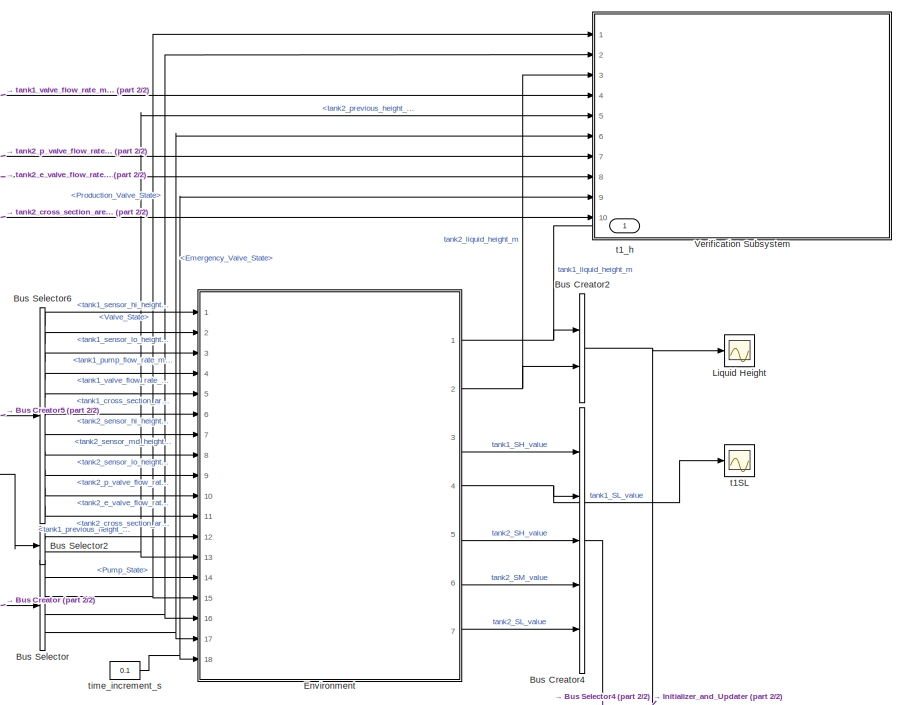
[diagram: root canvas - part 1/2, right side, full height]
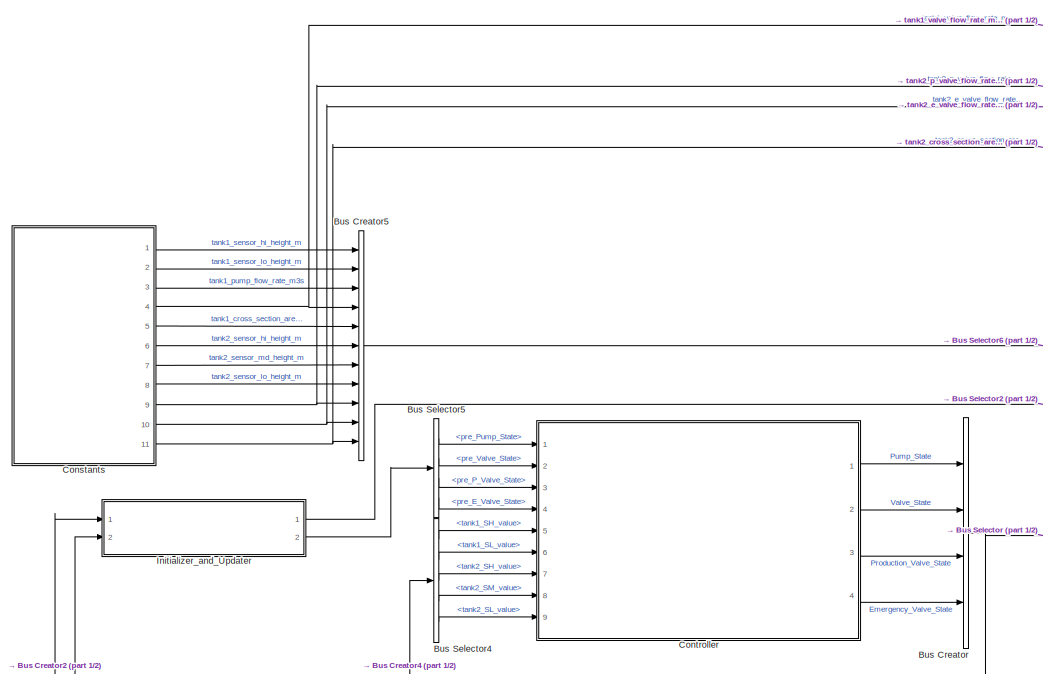
[diagram: root canvas - part 2/2, left side, full height]
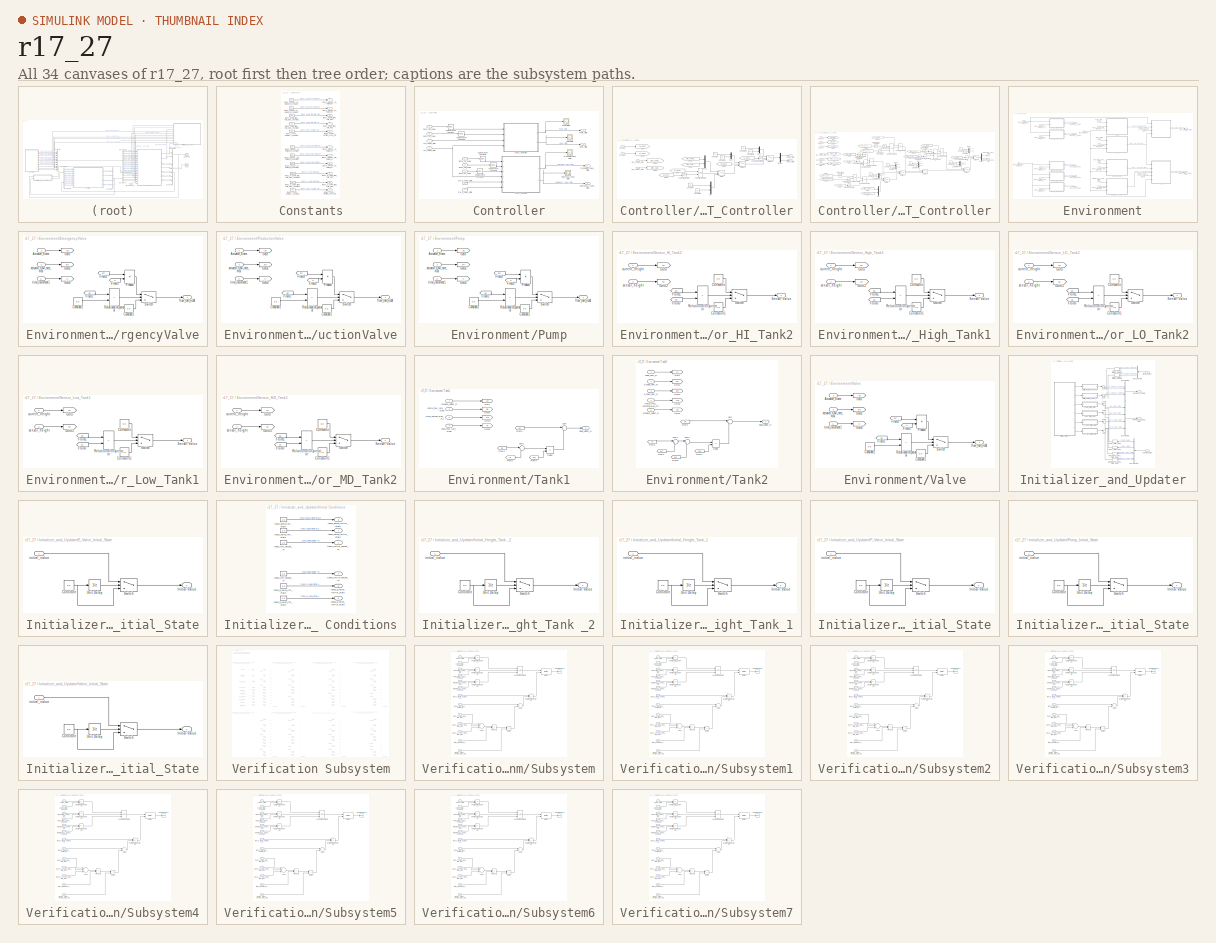
[diagram: thumbnail index - all 34 canvases of the model, root first then tree order]
MODEL r17_27
KIND model
BLOCK [BusCreator] Bus Creator
  DisplayOption = bar
  InheritFromInputs = on
  Inputs = 4
  Ports = [4, 1]
  SID = 233
BLOCK [BusCreator] Bus Creator2
  DisplayOption = bar
  InheritFromInputs = on
  Inputs = 'tank1_liquid_height_m','tank2_liquid_height_m'
  Ports = [2, 1]
  SID = 238
BLOCK [BusCreator] Bus Creator4
  DisplayOption = bar
  InheritFromInputs = on
  Inputs = 'tank1_SH_value','tank1_SL_value','tank2_SH_value','tank2_SM_value','tank2_SL_value'
  Ports = [5, 1]
  SID = 242
BLOCK [BusCreator] Bus Creator5
  DisplayOption = bar
  InheritFromInputs = on
  Inputs = 'tank1_sensor_hi_height_m','tank1_sensor_lo_height_m','tank1_pump_flow_rate_m3s','tank1_valve_flow_rate_m3s','tank1_cross_section_area_m2','tank2_sensor_hi_height_m','tank2_sensor_md_height_m','tank2_sensor_lo_height_m','tank2_p_valve_flow_rate_m3s','tank2_e_valve_flow_rate_m3s','tank2_cross_section_area_m2'
  Ports = [11, 1]
  SID = 245
BLOCK [BusSelector] Bus Selector
  OutputSignals = Pump_State,Valve_State,Production_Valve_State,Emergency_Valve_State
  Ports = [1, 4]
  SID = 234
BLOCK [BusSelector] Bus Selector2
  OutputSignals = tank1_previous_height_m,tank2_previous_height_m
  Ports = [1, 2]
  SID = 240
BLOCK [BusSelector] Bus Selector4
  OutputSignals = tank1_SH_value,tank1_SL_value,tank2_SH_value,tank2_SM_value,tank2_SL_value
  Ports = [1, 5]
  SID = 243
BLOCK [BusSelector] Bus Selector5
  OutputSignals = pre_Pump_State,pre_Valve_State,pre_P_Valve_State,pre_E_Valve_State
  Ports = [1, 4]
  SID = 244
BLOCK [BusSelector] Bus Selector6
  OutputSignals = tank1_sensor_hi_height_m,tank1_sensor_lo_height_m,tank1_pump_flow_rate_m3s,tank1_valve_flow_rate_m3s,tank1_cross_section_area_m2,tank2_sensor_hi_height_m,tank2_sensor_md_height_m,tank2_sensor_lo_height_m,tank2_p_valve_flow_rate_m3s,tank2_e_valve_flow_rate_m3s,tank2_cross_section_area_m2
  Ports = [1, 11]
  SID = 246
BLOCK [SubSystem] Constants
  Ports = [0, 11]
  RequestExecContextInheritance = off
  SID = 178
  Variant = off
BLOCK [Outport] Constants/tank1_cross_section_area_m2
  IconDisplay = Port number
  Port = 5
  SID = 182
BLOCK [Constant] Constants/tank1_cross_section_area_m2_constant
  SID = 10
  Value = 1.0
BLOCK [Outport] Constants/tank1_pump_flow_rate_m3s
  IconDisplay = Port number
  Port = 3
  SID = 181
BLOCK [Constant] Constants/tank1_pump_flow_rate_m3s_constant
  SID = 11
  Value = 0.2
BLOCK [Outport] Constants/tank1_sensor_hi_height_m
  IconDisplay = Port number
  SID = 179
BLOCK [Constant] Constants/tank1_sensor_hi_height_m_constant
  SID = 3
  Value = 5.0
BLOCK [Outport] Constants/tank1_sensor_lo_height_m
  IconDisplay = Port number
  Port = 2
  SID = 180
BLOCK [Constant] Constants/tank1_sensor_lo_height_m_constant
  SID = 41
  Value = 2.0
BLOCK [Outport] Constants/tank1_valve_flow_rate_m3s
  IconDisplay = Port number
  Port = 4
  SID = 183
BLOCK [Constant] Constants/tank1_valve_flow_rate_m3s_constant
  SID = 48
  Value = 0.1
BLOCK [Outport] Constants/tank2_cross_section_area_m2
  IconDisplay = Port number
  Port = 11
  SID = 185
BLOCK [Constant] Constants/tank2_cross_section_area_m2_constant
  SID = 108
  Value = 2.0
BLOCK [Outport] Constants/tank2_e_valve_flow_rate_m3s
  IconDisplay = Port number
  Port = 10
  SID = 186
BLOCK [Constant] Constants/tank2_e_valve_flow_rate_m3s_constant
  SID = 76
  Value = 0.2
BLOCK [Outport] Constants/tank2_p_valve_flow_rate_m3s
  IconDisplay = Port number
  Port = 9
  SID = 184
BLOCK [Constant] Constants/tank2_p_valve_flow_rate_m3s_constant
  SID = 109
  Value = 0.05
BLOCK [Outport] Constants/tank2_sensor_hi_height_m
  IconDisplay = Port number
  Port = 6
  SID = 188
BLOCK [Constant] Constants/tank2_sensor_hi_height_m_constant
  SID = 62
  Value = 3.0
BLOCK [Outport] Constants/tank2_sensor_lo_height_m
  IconDisplay = Port number
  Port = 8
  SID = 189
BLOCK [Constant] Constants/tank2_sensor_lo_height_m_constant
  SID = 70
  Value = 1.0
BLOCK [Outport] Constants/tank2_sensor_md_height_m
  IconDisplay = Port number
  Port = 7
  SID = 187
BLOCK [Constant] Constants/tank2_sensor_md_height_m_constant
  SID = 67
  Value = 2.0
BLOCK [SubSystem] Controller
  Ports = [9, 4]
  RequestExecContextInheritance = off
  SID = 417
  Variant = off
BLOCK [Reference] Controller/Compare\nTo Constant  REF=simulink/Logic and Bit\nOperations/Compare\nTo Constant
  OutDataTypeStr = boolean
  Ports = [1, 1]
  SID = 299
  SourceBlock = simulink/Logic and Bit\nOperations/Compare\nTo Constant
  SourceType = Compare To Constant
  ZeroCross = on
  const = 1
  relop = ==
BLOCK [Reference] Controller/Compare\nTo Constant1  REF=simulink/Logic and Bit\nOperations/Compare\nTo Constant
  OutDataTypeStr = boolean
  Ports = [1, 1]
  SID = 300
  SourceBlock = simulink/Logic and Bit\nOperations/Compare\nTo Constant
  SourceType = Compare To Constant
  ZeroCross = on
  const = 1
  relop = ==
BLOCK [Reference] Controller/Compare\nTo Constant4  REF=simulink/Logic and Bit\nOperations/Compare\nTo Constant
  OutDataTypeStr = boolean
  Ports = [1, 1]
  SID = 301
  SourceBlock = simulink/Logic and Bit\nOperations/Compare\nTo Constant
  SourceType = Compare To Constant
  ZeroCross = on
  const = 1
  relop = ==
BLOCK [Reference] Controller/Compare\nTo Constant5  REF=simulink/Logic and Bit\nOperations/Compare\nTo Constant
  OutDataTypeStr = boolean
  Ports = [1, 1]
  SID = 302
  SourceBlock = simulink/Logic and Bit\nOperations/Compare\nTo Constant
  SourceType = Compare To Constant
  ZeroCross = on
  const = 1
  relop = ==
BLOCK [Reference] Controller/Compare\nTo Constant6  REF=simulink/Logic and Bit\nOperations/Compare\nTo Constant
  OutDataTypeStr = boolean
  Ports = [1, 1]
  SID = 303
  SourceBlock = simulink/Logic and Bit\nOperations/Compare\nTo Constant
  SourceType = Compare To Constant
  ZeroCross = on
  const = 1
  relop = ==
BLOCK [Scope] Controller/Emergency Valve State
  Ports = [1]
  SID = 304
  ScopeSpecificationString = C++SS(StrPVP('Location','[188, 390, 512, 629]'),StrPVP('Open','off'),MxPVP('AxesTitles',24,'struct(''axes1'',''%<SignalLabel>'')'),MxPVP('ScopeGraphics',28,'struct(''FigureColor'',''[0.5 0.5 0.5]'',''AxesColor'',''[0 0 0]'',''AxesTickColor'',''[1 1 1]'',''LineColors'',''[1 1 0;1 0 1;0 1 1;1 0 0;0 1 0;0 0 1]'',''LineStyles'',''-|-|-|-|-|-'',''LineWidths'',''[0.5 0.5 0.5 0.5 0.5 0.5]'',''MarkerStyle...<+271ch>
BLOCK [Outport] Controller/Emergency_Valve_State
  IconDisplay = Port number
  Port = 4
  SID = 430
BLOCK [Scope] Controller/Production Valve State
  Ports = [1]
  SID = 305
  ScopeSpecificationString = C++SS(StrPVP('Location','[1346, 610, 1670, 849]'),StrPVP('Open','off'),MxPVP('AxesTitles',24,'struct(''axes1'',''%<SignalLabel>'')'),MxPVP('ScopeGraphics',28,'struct(''FigureColor'',''[0.5 0.5 0.5]'',''AxesColor'',''[0 0 0]'',''AxesTickColor'',''[1 1 1]'',''LineColors'',''[1 1 0;1 0 1;0 1 1;1 0 0;0 1 0;0 0 1]'',''LineStyles'',''-|-|-|-|-|-'',''LineWidths'',''[0.5 0.5 0.5 0.5 0.5 0.5]'',''MarkerSty...<+273ch>
BLOCK [Outport] Controller/Production_Valve_State
  IconDisplay = Port number
  Port = 3
  SID = 429
BLOCK [Scope] Controller/Pump State\n
  Ports = [1]
  SID = 306
  ScopeSpecificationString = Simulink.scopes.TimeScopeBlockCfg('CurrentConfiguration', extmgr.ConfigurationSet(extmgr.Configuration('Core','General UI',true),extmgr.Configuration('Core','Source UI',true),extmgr.Configuration('Sources','WiredSimulink',true,'DataLoggingVariableName','ScopeData4','DataLoggingSaveFormat','StructureWithTime','DataLoggingLimitDataPoints',true,'DataLoggingDecimation','1','DataLoggingDecimateData',tr...<+1643ch>
BLOCK [Outport] Controller/Pump_State
  IconDisplay = Port number
  SID = 427
BLOCK [SubSystem] Controller/Tank1_Controller
  Ports = [4, 2]
  RequestExecContextInheritance = off
  SID = 307
  Variant = off
BLOCK [Constant] Controller/Tank1_Controller/Constant
  SID = 312
  Value = 0.0
BLOCK [Constant] Controller/Tank1_Controller/Constant1
  SID = 313
  Value = 1.0
BLOCK [Constant] Controller/Tank1_Controller/Constant2
  SID = 314
  Value = 1.0
BLOCK [Constant] Controller/Tank1_Controller/Constant3
  SID = 315
  Value = 0.0
BLOCK [Constant] Controller/Tank1_Controller/Constant4
  SID = 316
  Value = -1.0
BLOCK [Constant] Controller/Tank1_Controller/Constant5
  SID = 317
  Value = -1.0
BLOCK [Demux] Controller/Tank1_Controller/Demux
  DisplayOption = bar
  Outputs = 2
  Ports = [1, 2]
  SID = 318
BLOCK [From] Controller/Tank1_Controller/From1
  GotoTag = prev_Valve_State
  SID = 319
BLOCK [From] Controller/Tank1_Controller/From2
  GotoTag = prev_Pump_State
  SID = 320
BLOCK [From] Controller/Tank1_Controller/From3
  GotoTag = SH_Input
  SID = 321
BLOCK [From] Controller/Tank1_Controller/From4
  GotoTag = SL_Input
  SID = 322
BLOCK [From] Controller/Tank1_Controller/From6
  GotoTag = SH_Input
  SID = 323
BLOCK [From] Controller/Tank1_Controller/From7
  GotoTag = SL_Input
  SID = 324
BLOCK [Goto] Controller/Tank1_Controller/Goto
  GotoTag = SH_Input
  SID = 325
BLOCK [Goto] Controller/Tank1_Controller/Goto2
  GotoTag = SL_Input
  SID = 326
BLOCK [Goto] Controller/Tank1_Controller/Goto3
  GotoTag = prev_Pump_State
  SID = 327
BLOCK [Goto] Controller/Tank1_Controller/Goto5
  GotoTag = prev_Valve_State
  SID = 328
BLOCK [Logic] Controller/Tank1_Controller/Logical\nOperator
  AllPortsSameDT = off
  Operator = NOT
  OutDataTypeStr = boolean
  Ports = [1, 1]
  SID = 329
BLOCK [Logic] Controller/Tank1_Controller/Logical\nOperator1
  AllPortsSameDT = off
  OutDataTypeStr = boolean
  Ports = [2, 1]
  SID = 330
BLOCK [Logic] Controller/Tank1_Controller/Logical\nOperator2
  AllPortsSameDT = off
  Operator = NOT
  OutDataTypeStr = boolean
  Ports = [1, 1]
  SID = 331
BLOCK [Mux] Controller/Tank1_Controller/Mux
  DisplayOption = bar
  Inputs = 2
  Ports = [2, 1]
  SID = 332
BLOCK [Mux] Controller/Tank1_Controller/Mux1
  DisplayOption = bar
  Inputs = 2
  Ports = [2, 1]
  SID = 333
BLOCK [Mux] Controller/Tank1_Controller/Mux2
  DisplayOption = bar
  Inputs = 2
  Ports = [2, 1]
  SID = 334
BLOCK [Mux] Controller/Tank1_Controller/Mux3
  DisplayOption = bar
  Inputs = 2
  Ports = [2, 1]
  SID = 335
BLOCK [Outport] Controller/Tank1_Controller/Pump_State
  IconDisplay = Port number
  SID = 339
BLOCK [Inport] Controller/Tank1_Controller/SH_Input
  IconDisplay = Port number
  SID = 308
BLOCK [Inport] Controller/Tank1_Controller/SL_Input
  IconDisplay = Port number
  Port = 2
  SID = 309
BLOCK [Switch] Controller/Tank1_Controller/Switch
  Criteria = u2 ~= 0
  InputSameDT = off
  SID = 336
  SaturateOnIntegerOverflow = off
BLOCK [Switch] Controller/Tank1_Controller/Switch2
  Criteria = u2 ~= 0
  InputSameDT = off
  SID = 337
  SaturateOnIntegerOverflow = off
BLOCK [Switch] Controller/Tank1_Controller/Switch3
  Criteria = u2 ~= 0
  InputSameDT = off
  SID = 338
  SaturateOnIntegerOverflow = off
BLOCK [Outport] Controller/Tank1_Controller/Valve_State
  IconDisplay = Port number
  Port = 2
  SID = 340
BLOCK [Inport] Controller/Tank1_Controller/prev_Pump_State
  IconDisplay = Port number
  Port = 3
  SID = 310
BLOCK [Inport] Controller/Tank1_Controller/prev_Valve_State
  IconDisplay = Port number
  Port = 4
  SID = 311
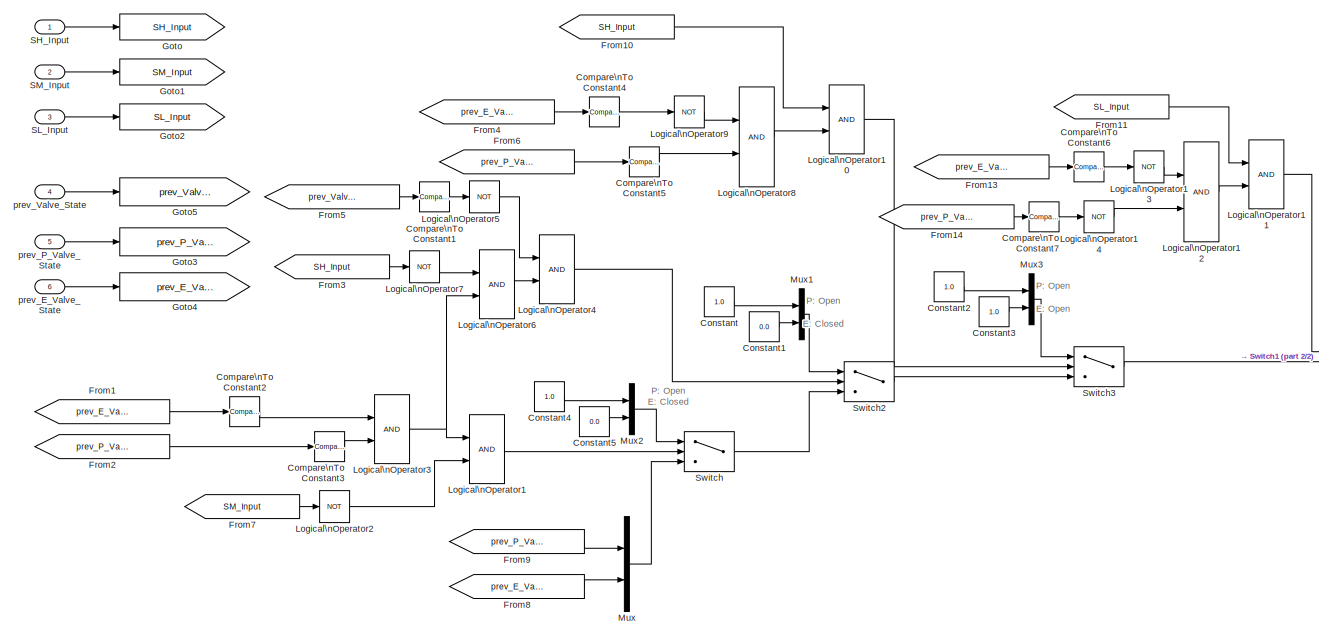
[diagram: Controller/Tank2_Controller - part 1/2, most of the canvas]
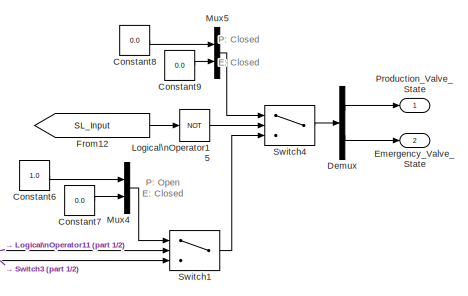
[diagram: Controller/Tank2_Controller - part 2/2, middle right region]
BLOCK [SubSystem] Controller/Tank2_Controller
  Ports = [6, 2]
  RequestExecContextInheritance = off
  SID = 341
  Variant = off
BLOCK [Reference] Controller/Tank2_Controller/Compare\nTo Constant1  REF=simulink/Logic and Bit\nOperations/Compare\nTo Constant
  OutDataTypeStr = boolean
  Ports = [1, 1]
  SID = 611
  SourceBlock = simulink/Logic and Bit\nOperations/Compare\nTo Constant
  SourceType = Compare To Constant
  ZeroCross = on
  const = 1
  relop = ==
BLOCK [Reference] Controller/Tank2_Controller/Compare\nTo Constant2  REF=simulink/Logic and Bit\nOperations/Compare\nTo Constant
  OutDataTypeStr = boolean
  Ports = [1, 1]
  SID = 612
  SourceBlock = simulink/Logic and Bit\nOperations/Compare\nTo Constant
  SourceType = Compare To Constant
  ZeroCross = on
  const = 1
  relop = ==
BLOCK [Reference] Controller/Tank2_Controller/Compare\nTo Constant3  REF=simulink/Logic and Bit\nOperations/Compare\nTo Constant
  OutDataTypeStr = boolean
  Ports = [1, 1]
  SID = 613
  SourceBlock = simulink/Logic and Bit\nOperations/Compare\nTo Constant
  SourceType = Compare To Constant
  ZeroCross = on
  const = 1
  relop = ==
BLOCK [Reference] Controller/Tank2_Controller/Compare\nTo Constant4  REF=simulink/Logic and Bit\nOperations/Compare\nTo Constant
  OutDataTypeStr = boolean
  Ports = [1, 1]
  SID = 614
  SourceBlock = simulink/Logic and Bit\nOperations/Compare\nTo Constant
  SourceType = Compare To Constant
  ZeroCross = on
  const = 1
  relop = ==
BLOCK [Reference] Controller/Tank2_Controller/Compare\nTo Constant5  REF=simulink/Logic and Bit\nOperations/Compare\nTo Constant
  OutDataTypeStr = boolean
  Ports = [1, 1]
  SID = 615
  SourceBlock = simulink/Logic and Bit\nOperations/Compare\nTo Constant
  SourceType = Compare To Constant
  ZeroCross = on
  const = 1
  relop = ==
BLOCK [Reference] Controller/Tank2_Controller/Compare\nTo Constant6  REF=simulink/Logic and Bit\nOperations/Compare\nTo Constant
  OutDataTypeStr = boolean
  Ports = [1, 1]
  SID = 616
  SourceBlock = simulink/Logic and Bit\nOperations/Compare\nTo Constant
  SourceType = Compare To Constant
  ZeroCross = on
  const = 1
  relop = ==
BLOCK [Reference] Controller/Tank2_Controller/Compare\nTo Constant7  REF=simulink/Logic and Bit\nOperations/Compare\nTo Constant
  OutDataTypeStr = boolean
  Ports = [1, 1]
  SID = 617
  SourceBlock = simulink/Logic and Bit\nOperations/Compare\nTo Constant
  SourceType = Compare To Constant
  ZeroCross = on
  const = 1
  relop = ==
BLOCK [Constant] Controller/Tank2_Controller/Constant
  SID = 348
  Value = 1.0
BLOCK [Constant] Controller/Tank2_Controller/Constant1
  SID = 349
  Value = 0.0
BLOCK [Constant] Controller/Tank2_Controller/Constant2
  SID = 350
  Value = 1.0
BLOCK [Constant] Controller/Tank2_Controller/Constant3
  SID = 351
  Value = 1.0
BLOCK [Constant] Controller/Tank2_Controller/Constant4
  SID = 352
  Value = 1.0
BLOCK [Constant] Controller/Tank2_Controller/Constant5
  SID = 353
  Value = 0.0
BLOCK [Constant] Controller/Tank2_Controller/Constant6
  SID = 354
  Value = 1.0
BLOCK [Constant] Controller/Tank2_Controller/Constant7
  SID = 355
  Value = 0.0
BLOCK [Constant] Controller/Tank2_Controller/Constant8
  SID = 356
  Value = 0.0
BLOCK [Constant] Controller/Tank2_Controller/Constant9
  SID = 357
  Value = 0.0
BLOCK [Demux] Controller/Tank2_Controller/Demux
  DisplayOption = bar
  Outputs = 2
  Ports = [1, 2]
  SID = 358
BLOCK [Outport] Controller/Tank2_Controller/Emergency_Valve_State
  IconDisplay = Port number
  Port = 2
  SID = 406
BLOCK [From] Controller/Tank2_Controller/From1
  GotoTag = prev_E_Valve_State
  SID = 359
BLOCK [From] Controller/Tank2_Controller/From10
  GotoTag = SH_Input
  SID = 360
BLOCK [From] Controller/Tank2_Controller/From11
  GotoTag = SL_Input
  SID = 361
BLOCK [From] Controller/Tank2_Controller/From12
  GotoTag = SL_Input
  SID = 362
BLOCK [From] Controller/Tank2_Controller/From13
  GotoTag = prev_E_Valve_State
  SID = 363
BLOCK [From] Controller/Tank2_Controller/From14
  GotoTag = prev_P_Valve_State
  SID = 364
BLOCK [From] Controller/Tank2_Controller/From2
  GotoTag = prev_P_Valve_State
  SID = 365
BLOCK [From] Controller/Tank2_Controller/From3
  GotoTag = SH_Input
  SID = 366
BLOCK [From] Controller/Tank2_Controller/From4
  GotoTag = prev_E_Valve_State
  SID = 367
BLOCK [From] Controller/Tank2_Controller/From5
  GotoTag = prev_Valve_State
  SID = 368
BLOCK [From] Controller/Tank2_Controller/From6
  GotoTag = prev_P_Valve_State
  SID = 369
BLOCK [From] Controller/Tank2_Controller/From7
  GotoTag = SM_Input
  SID = 370
BLOCK [From] Controller/Tank2_Controller/From8
  GotoTag = prev_E_Valve_State
  SID = 371
BLOCK [From] Controller/Tank2_Controller/From9
  GotoTag = prev_P_Valve_State
  SID = 372
BLOCK [Goto] Controller/Tank2_Controller/Goto
  GotoTag = SH_Input
  SID = 373
BLOCK [Goto] Controller/Tank2_Controller/Goto1
  GotoTag = SM_Input
  SID = 374
BLOCK [Goto] Controller/Tank2_Controller/Goto2
  GotoTag = SL_Input
  SID = 375
BLOCK [Goto] Controller/Tank2_Controller/Goto3
  GotoTag = prev_P_Valve_State
  SID = 376
BLOCK [Goto] Controller/Tank2_Controller/Goto4
  GotoTag = prev_E_Valve_State
  SID = 377
BLOCK [Goto] Controller/Tank2_Controller/Goto5
  GotoTag = prev_Valve_State
  SID = 378
BLOCK [Logic] Controller/Tank2_Controller/Logical\nOperator1
  AllPortsSameDT = off
  OutDataTypeStr = boolean
  Ports = [2, 1]
  SID = 379
BLOCK [Logic] Controller/Tank2_Controller/Logical\nOperator10
  AllPortsSameDT = off
  OutDataTypeStr = boolean
  Ports = [2, 1]
  SID = 380
BLOCK [Logic] Controller/Tank2_Controller/Logical\nOperator11
  AllPortsSameDT = off
  OutDataTypeStr = boolean
  Ports = [2, 1]
  SID = 381
BLOCK [Logic] Controller/Tank2_Controller/Logical\nOperator12
  AllPortsSameDT = off
  OutDataTypeStr = boolean
  Ports = [2, 1]
  SID = 382
BLOCK [Logic] Controller/Tank2_Controller/Logical\nOperator13
  AllPortsSameDT = off
  Operator = NOT
  OutDataTypeStr = boolean
  Ports = [1, 1]
  SID = 383
BLOCK [Logic] Controller/Tank2_Controller/Logical\nOperator14
  AllPortsSameDT = off
  Operator = NOT
  OutDataTypeStr = boolean
  Ports = [1, 1]
  SID = 384
BLOCK [Logic] Controller/Tank2_Controller/Logical\nOperator15
  AllPortsSameDT = off
  Operator = NOT
  OutDataTypeStr = boolean
  Ports = [1, 1]
  SID = 385
BLOCK [Logic] Controller/Tank2_Controller/Logical\nOperator2
  AllPortsSameDT = off
  Operator = NOT
  OutDataTypeStr = boolean
  Ports = [1, 1]
  SID = 386
BLOCK [Logic] Controller/Tank2_Controller/Logical\nOperator3
  AllPortsSameDT = off
  OutDataTypeStr = boolean
  Ports = [2, 1]
  SID = 387
BLOCK [Logic] Controller/Tank2_Controller/Logical\nOperator4
  AllPortsSameDT = off
  OutDataTypeStr = boolean
  Ports = [2, 1]
  SID = 388
BLOCK [Logic] Controller/Tank2_Controller/Logical\nOperator5
  AllPortsSameDT = off
  Operator = NOT
  OutDataTypeStr = boolean
  Ports = [1, 1]
  SID = 389
BLOCK [Logic] Controller/Tank2_Controller/Logical\nOperator6
  AllPortsSameDT = off
  OutDataTypeStr = boolean
  Ports = [2, 1]
  SID = 390
BLOCK [Logic] Controller/Tank2_Controller/Logical\nOperator7
  AllPortsSameDT = off
  Operator = NOT
  OutDataTypeStr = boolean
  Ports = [1, 1]
  SID = 391
BLOCK [Logic] Controller/Tank2_Controller/Logical\nOperator8
  AllPortsSameDT = off
  OutDataTypeStr = boolean
  Ports = [2, 1]
  SID = 392
BLOCK [Logic] Controller/Tank2_Controller/Logical\nOperator9
  AllPortsSameDT = off
  Operator = NOT
  OutDataTypeStr = boolean
  Ports = [1, 1]
  SID = 393
BLOCK [Mux] Controller/Tank2_Controller/Mux
  DisplayOption = bar
  Inputs = 2
  Ports = [2, 1]
  SID = 394
BLOCK [Mux] Controller/Tank2_Controller/Mux1
  DisplayOption = bar
  Inputs = 2
  Ports = [2, 1]
  SID = 395
BLOCK [Mux] Controller/Tank2_Controller/Mux2
  DisplayOption = bar
  Inputs = 2
  Ports = [2, 1]
  SID = 396
BLOCK [Mux] Controller/Tank2_Controller/Mux3
  DisplayOption = bar
  Inputs = 2
  Ports = [2, 1]
  SID = 397
BLOCK [Mux] Controller/Tank2_Controller/Mux4
  DisplayOption = bar
  Inputs = 2
  Ports = [2, 1]
  SID = 398
BLOCK [Mux] Controller/Tank2_Controller/Mux5
  DisplayOption = bar
  Inputs = 2
  Ports = [2, 1]
  SID = 399
BLOCK [Outport] Controller/Tank2_Controller/Production_Valve_State
  IconDisplay = Port number
  SID = 405
BLOCK [Inport] Controller/Tank2_Controller/SH_Input
  IconDisplay = Port number
  SID = 342
BLOCK [Inport] Controller/Tank2_Controller/SL_Input
  IconDisplay = Port number
  Port = 3
  SID = 344
BLOCK [Inport] Controller/Tank2_Controller/SM_Input
  IconDisplay = Port number
  Port = 2
  SID = 343
BLOCK [Switch] Controller/Tank2_Controller/Switch
  Criteria = u2 ~= 0
  InputSameDT = off
  SID = 400
  SaturateOnIntegerOverflow = off
BLOCK [Switch] Controller/Tank2_Controller/Switch1
  Criteria = u2 ~= 0
  InputSameDT = off
  SID = 401
  SaturateOnIntegerOverflow = off
BLOCK [Switch] Controller/Tank2_Controller/Switch2
  Criteria = u2 ~= 0
  InputSameDT = off
  SID = 402
  SaturateOnIntegerOverflow = off
BLOCK [Switch] Controller/Tank2_Controller/Switch3
  Criteria = u2 ~= 0
  InputSameDT = off
  SID = 403
  SaturateOnIntegerOverflow = off
BLOCK [Switch] Controller/Tank2_Controller/Switch4
  Criteria = u2 ~= 0
  InputSameDT = off
  SID = 404
  SaturateOnIntegerOverflow = off
BLOCK [Inport] Controller/Tank2_Controller/prev_E_Valve_State
  IconDisplay = Port number
  Port = 6
  SID = 347
BLOCK [Inport] Controller/Tank2_Controller/prev_P_Valve_State
  IconDisplay = Port number
  Port = 5
  SID = 346
BLOCK [Inport] Controller/Tank2_Controller/prev_Valve_State
  IconDisplay = Port number
  Port = 4
  SID = 345
BLOCK [Scope] Controller/Valve State
  Ports = [1]
  SID = 412
  ScopeSpecificationString = Simulink.scopes.TimeScopeBlockCfg('CurrentConfiguration', extmgr.ConfigurationSet(extmgr.Configuration('Core','General UI',true),extmgr.Configuration('Core','Source UI',true),extmgr.Configuration('Sources','WiredSimulink',true,'DataLoggingVariableName','ScopeData1','DataLoggingSaveFormat','StructureWithTime','DataLoggingLimitDataPoints',true,'DataLoggingDecimation','1','DataLoggingDecimateData',tr...<+1642ch>
BLOCK [Outport] Controller/Valve_State
  IconDisplay = Port number
  Port = 2
  SID = 428
BLOCK [Inport] Controller/pre_E_Valve_State
  IconDisplay = Port number
  Port = 4
  SID = 421
BLOCK [Inport] Controller/pre_P_Valve_State
  IconDisplay = Port number
  Port = 3
  SID = 420
BLOCK [Inport] Controller/pre_Pump_State
  IconDisplay = Port number
  SID = 418
BLOCK [Inport] Controller/pre_Valve_State
  IconDisplay = Port number
  Port = 2
  SID = 419
BLOCK [Inport] Controller/tank1_SH_value
  IconDisplay = Port number
  Port = 5
  SID = 422
BLOCK [Inport] Controller/tank1_SL_value
  IconDisplay = Port number
  Port = 6
  SID = 423
BLOCK [Inport] Controller/tank2_SH_value
  IconDisplay = Port number
  Port = 7
  SID = 424
BLOCK [Inport] Controller/tank2_SL_value
  IconDisplay = Port number
  Port = 9
  SID = 426
BLOCK [Inport] Controller/tank2_SM_value
  IconDisplay = Port number
  Port = 8
  SID = 425
BLOCK [SubSystem] Environment
  Ports = [18, 7]
  RequestExecContextInheritance = off
  SID = 144
  Variant = off
BLOCK [SubSystem] Environment/EmergencyValve
  Ports = [3, 1]
  RequestExecContextInheritance = off
  SID = 546
  Variant = off
BLOCK [Inport] Environment/EmergencyValve/Actuator_State
  IconDisplay = Port number
  SID = 547
BLOCK [Constant] Environment/EmergencyValve/Constant1
  SID = 550
  Value = 0.0
BLOCK [Constant] Environment/EmergencyValve/Constant2
  SID = 551
  Value = 0.5
BLOCK [From] Environment/EmergencyValve/From1
  GotoTag = as
  SID = 552
BLOCK [From] Environment/EmergencyValve/From2
  GotoTag = afr
  SID = 553
BLOCK [From] Environment/EmergencyValve/From3
  GotoTag = ti
  SID = 554
BLOCK [Goto] Environment/EmergencyValve/Goto
  GotoTag = as
  SID = 555
BLOCK [Goto] Environment/EmergencyValve/Goto1
  GotoTag = afr
  SID = 556
BLOCK [Goto] Environment/EmergencyValve/Goto3
  GotoTag = ti
  SID = 557
BLOCK [Product] Environment/EmergencyValve/Product
  InputSameDT = off
  OutDataTypeStr = Inherit: Inherit via internal rule
  Ports = [2, 1]
  RndMeth = Floor
  SID = 558
  SaturateOnIntegerOverflow = off
BLOCK [RelationalOperator] Environment/EmergencyValve/Relational\nOperator
  InputSameDT = off
  Operator = >
  OutDataTypeStr = boolean
  Ports = [2, 1]
  SID = 559
BLOCK [Switch] Environment/EmergencyValve/Switch
  Criteria = u2 ~= 0
  InputSameDT = off
  SID = 560
  SaturateOnIntegerOverflow = off
BLOCK [Inport] Environment/EmergencyValve/actuator_flow_rate_m3s
  IconDisplay = Port number
  Port = 2
  SID = 548
BLOCK [Outport] Environment/EmergencyValve/flow_rate_m3dt
  IconDisplay = Port number
  SID = 561
BLOCK [Inport] Environment/EmergencyValve/time_increment1
  IconDisplay = Port number
  Port = 3
  SID = 549
BLOCK [Inport] Environment/Emergency_Valve_State
  IconDisplay = Port number
  Port = 17
  SID = 159
BLOCK [SubSystem] Environment/ProductionValve
  Ports = [3, 1]
  RequestExecContextInheritance = off
  SID = 530
  Variant = off
BLOCK [Inport] Environment/ProductionValve/Actuator_State
  IconDisplay = Port number
  SID = 531
BLOCK [Constant] Environment/ProductionValve/Constant1
  SID = 534
  Value = 0.0
BLOCK [Constant] Environment/ProductionValve/Constant2
  SID = 535
  Value = 0.5
BLOCK [From] Environment/ProductionValve/From1
  GotoTag = as
  SID = 536
BLOCK [From] Environment/ProductionValve/From2
  GotoTag = afr
  SID = 537
BLOCK [From] Environment/ProductionValve/From3
  GotoTag = ti
  SID = 538
BLOCK [Goto] Environment/ProductionValve/Goto
  GotoTag = as
  SID = 539
BLOCK [Goto] Environment/ProductionValve/Goto1
  GotoTag = afr
  SID = 540
BLOCK [Goto] Environment/ProductionValve/Goto3
  GotoTag = ti
  SID = 541
BLOCK [Product] Environment/ProductionValve/Product
  InputSameDT = off
  OutDataTypeStr = Inherit: Inherit via internal rule
  Ports = [2, 1]
  RndMeth = Floor
  SID = 542
  SaturateOnIntegerOverflow = off
BLOCK [RelationalOperator] Environment/ProductionValve/Relational\nOperator
  InputSameDT = off
  Operator = >
  OutDataTypeStr = boolean
  Ports = [2, 1]
  SID = 543
BLOCK [Switch] Environment/ProductionValve/Switch
  Criteria = u2 ~= 0
  InputSameDT = off
  SID = 544
  SaturateOnIntegerOverflow = off
BLOCK [Inport] Environment/ProductionValve/actuator_flow_rate_m3s
  IconDisplay = Port number
  Port = 2
  SID = 532
BLOCK [Outport] Environment/ProductionValve/flow_rate_m3dt
  IconDisplay = Port number
  SID = 545
BLOCK [Inport] Environment/ProductionValve/time_increment1
  IconDisplay = Port number
  Port = 3
  SID = 533
BLOCK [Inport] Environment/Production_Valve_State
  IconDisplay = Port number
  Port = 16
  SID = 174
BLOCK [SubSystem] Environment/Pump
  Ports = [3, 1]
  RequestExecContextInheritance = off
  SID = 509
  Variant = off
BLOCK [Inport] Environment/Pump/Actuator_State
  IconDisplay = Port number
  SID = 510
BLOCK [Constant] Environment/Pump/Constant1
  SID = 497
  Value = 0.0
BLOCK [Constant] Environment/Pump/Constant2
  SID = 498
  Value = 0.5
BLOCK [From] Environment/Pump/From1
  GotoTag = as
  SID = 499
BLOCK [From] Environment/Pump/From2
  GotoTag = afr
  SID = 500
BLOCK [From] Environment/Pump/From3
  GotoTag = ti
  SID = 501
BLOCK [Goto] Environment/Pump/Goto
  GotoTag = as
  SID = 502
BLOCK [Goto] Environment/Pump/Goto1
  GotoTag = afr
  SID = 503
BLOCK [Goto] Environment/Pump/Goto3
  GotoTag = ti
  SID = 504
BLOCK [Product] Environment/Pump/Product
  InputSameDT = off
  OutDataTypeStr = Inherit: Inherit via internal rule
  Ports = [2, 1]
  RndMeth = Floor
  SID = 505
  SaturateOnIntegerOverflow = off
BLOCK [RelationalOperator] Environment/Pump/Relational\nOperator
  InputSameDT = off
  Operator = >
  OutDataTypeStr = boolean
  Ports = [2, 1]
  SID = 506
BLOCK [Switch] Environment/Pump/Switch
  Criteria = u2 ~= 0
  InputSameDT = off
  SID = 507
  SaturateOnIntegerOverflow = off
BLOCK [Inport] Environment/Pump/actuator_flow_rate_m3s
  IconDisplay = Port number
  Port = 2
  SID = 511
BLOCK [Outport] Environment/Pump/flow_rate_m3dt
  IconDisplay = Port number
  SID = 513
BLOCK [Inport] Environment/Pump/time_increment1
  IconDisplay = Port number
  Port = 3
  SID = 512
BLOCK [Inport] Environment/Pump_State
  IconDisplay = Port number
  Port = 14
  SID = 145
BLOCK [SubSystem] Environment/Sensor_HI_Tank2
  Ports = [2, 1]
  RequestExecContextInheritance = off
  SID = 458
  Variant = off
BLOCK [Constant] Environment/Sensor_HI_Tank2/Constant
  SID = 461
  Value = 0.0
BLOCK [Constant] Environment/Sensor_HI_Tank2/Constant1
  SID = 462
  Value = 1.0
BLOCK [From] Environment/Sensor_HI_Tank2/From1
  GotoTag = sh
  SID = 463
BLOCK [From] Environment/Sensor_HI_Tank2/From7
  GotoTag = ch
  SID = 464
BLOCK [Goto] Environment/Sensor_HI_Tank2/Goto
  GotoTag = ch
  SID = 465
BLOCK [Goto] Environment/Sensor_HI_Tank2/Goto2
  GotoTag = sh
  SID = 466
BLOCK [RelationalOperator] Environment/Sensor_HI_Tank2/Relational\nOperator
  InputSameDT = off
  Operator = >
  OutDataTypeStr = boolean
  Ports = [2, 1]
  SID = 467
BLOCK [Outport] Environment/Sensor_HI_Tank2/Sensor Value
  IconDisplay = Port number
  SID = 469
BLOCK [Switch] Environment/Sensor_HI_Tank2/Switch
  Criteria = u2 ~= 0
  InputSameDT = off
  SID = 468
  SaturateOnIntegerOverflow = off
BLOCK [Inport] Environment/Sensor_HI_Tank2/current_height
  IconDisplay = Port number
  SID = 459
BLOCK [Inport] Environment/Sensor_HI_Tank2/sensor_height
  IconDisplay = Port number
  Port = 2
  SID = 460
BLOCK [SubSystem] Environment/Sensor_High_Tank1
  Ports = [2, 1]
  RequestExecContextInheritance = off
  SID = 442
  Variant = off
BLOCK [Constant] Environment/Sensor_High_Tank1/Constant
  SID = 433
  Value = 0.0
BLOCK [Constant] Environment/Sensor_High_Tank1/Constant1
  SID = 434
  Value = 1.0
BLOCK [From] Environment/Sensor_High_Tank1/From1
  GotoTag = sh
  SID = 435
BLOCK [From] Environment/Sensor_High_Tank1/From7
  GotoTag = ch
  SID = 436
BLOCK [Goto] Environment/Sensor_High_Tank1/Goto
  GotoTag = ch
  SID = 437
BLOCK [Goto] Environment/Sensor_High_Tank1/Goto2
  GotoTag = sh
  SID = 438
BLOCK [RelationalOperator] Environment/Sensor_High_Tank1/Relational\nOperator
  InputSameDT = off
  Operator = >
  OutDataTypeStr = boolean
  Ports = [2, 1]
  SID = 439
BLOCK [Outport] Environment/Sensor_High_Tank1/Sensor Value
  IconDisplay = Port number
  SID = 445
BLOCK [Switch] Environment/Sensor_High_Tank1/Switch
  Criteria = u2 ~= 0
  InputSameDT = off
  SID = 440
  SaturateOnIntegerOverflow = off
BLOCK [Inport] Environment/Sensor_High_Tank1/current_height
  IconDisplay = Port number
  SID = 443
BLOCK [Inport] Environment/Sensor_High_Tank1/sensor_height
  IconDisplay = Port number
  Port = 2
  SID = 444
BLOCK [SubSystem] Environment/Sensor_LO_Tank2
  Ports = [2, 1]
  RequestExecContextInheritance = off
  SID = 482
  Variant = off
BLOCK [Constant] Environment/Sensor_LO_Tank2/Constant
  SID = 485
  Value = 0.0
BLOCK [Constant] Environment/Sensor_LO_Tank2/Constant1
  SID = 486
  Value = 1.0
BLOCK [From] Environment/Sensor_LO_Tank2/From1
  GotoTag = sh
  SID = 487
BLOCK [From] Environment/Sensor_LO_Tank2/From7
  GotoTag = ch
  SID = 488
BLOCK [Goto] Environment/Sensor_LO_Tank2/Goto
  GotoTag = ch
  SID = 489
BLOCK [Goto] Environment/Sensor_LO_Tank2/Goto2
  GotoTag = sh
  SID = 490
BLOCK [RelationalOperator] Environment/Sensor_LO_Tank2/Relational\nOperator
  InputSameDT = off
  Operator = >
  OutDataTypeStr = boolean
  Ports = [2, 1]
  SID = 491
BLOCK [Outport] Environment/Sensor_LO_Tank2/Sensor Value
  IconDisplay = Port number
  SID = 493
BLOCK [Switch] Environment/Sensor_LO_Tank2/Switch
  Criteria = u2 ~= 0
  InputSameDT = off
  SID = 492
  SaturateOnIntegerOverflow = off
BLOCK [Inport] Environment/Sensor_LO_Tank2/current_height
  IconDisplay = Port number
  SID = 483
BLOCK [Inport] Environment/Sensor_LO_Tank2/sensor_height
  IconDisplay = Port number
  Port = 2
  SID = 484
BLOCK [SubSystem] Environment/Sensor_Low_Tank1
  Ports = [2, 1]
  RequestExecContextInheritance = off
  SID = 446
  Variant = off
BLOCK [Constant] Environment/Sensor_Low_Tank1/Constant
  SID = 449
  Value = 0.0
BLOCK [Constant] Environment/Sensor_Low_Tank1/Constant1
  SID = 450
  Value = 1.0
BLOCK [From] Environment/Sensor_Low_Tank1/From1
  GotoTag = sh
  SID = 451
BLOCK [From] Environment/Sensor_Low_Tank1/From7
  GotoTag = ch
  SID = 452
BLOCK [Goto] Environment/Sensor_Low_Tank1/Goto
  GotoTag = ch
  SID = 453
BLOCK [Goto] Environment/Sensor_Low_Tank1/Goto2
  GotoTag = sh
  SID = 454
BLOCK [RelationalOperator] Environment/Sensor_Low_Tank1/Relational\nOperator
  InputSameDT = off
  Operator = >
  OutDataTypeStr = boolean
  Ports = [2, 1]
  SID = 455
BLOCK [Outport] Environment/Sensor_Low_Tank1/Sensor Value
  IconDisplay = Port number
  SID = 457
BLOCK [Switch] Environment/Sensor_Low_Tank1/Switch
  Criteria = u2 ~= 0
  InputSameDT = off
  SID = 456
  SaturateOnIntegerOverflow = off
BLOCK [Inport] Environment/Sensor_Low_Tank1/current_height
  IconDisplay = Port number
  SID = 447
BLOCK [Inport] Environment/Sensor_Low_Tank1/sensor_height
  IconDisplay = Port number
  Port = 2
  SID = 448
BLOCK [SubSystem] Environment/Sensor_MD_Tank2
  Ports = [2, 1]
  RequestExecContextInheritance = off
  SID = 470
  Variant = off
BLOCK [Constant] Environment/Sensor_MD_Tank2/Constant
  SID = 473
  Value = 0.0
BLOCK [Constant] Environment/Sensor_MD_Tank2/Constant1
  SID = 474
  Value = 1.0
BLOCK [From] Environment/Sensor_MD_Tank2/From1
  GotoTag = sh
  SID = 475
BLOCK [From] Environment/Sensor_MD_Tank2/From7
  GotoTag = ch
  SID = 476
BLOCK [Goto] Environment/Sensor_MD_Tank2/Goto
  GotoTag = ch
  SID = 477
BLOCK [Goto] Environment/Sensor_MD_Tank2/Goto2
  GotoTag = sh
  SID = 478
BLOCK [RelationalOperator] Environment/Sensor_MD_Tank2/Relational\nOperator
  InputSameDT = off
  Operator = >
  OutDataTypeStr = boolean
  Ports = [2, 1]
  SID = 479
BLOCK [Outport] Environment/Sensor_MD_Tank2/Sensor Value
  IconDisplay = Port number
  SID = 481
BLOCK [Switch] Environment/Sensor_MD_Tank2/Switch
  Criteria = u2 ~= 0
  InputSameDT = off
  SID = 480
  SaturateOnIntegerOverflow = off
BLOCK [Inport] Environment/Sensor_MD_Tank2/current_height
  IconDisplay = Port number
  SID = 471
BLOCK [Inport] Environment/Sensor_MD_Tank2/sensor_height
  IconDisplay = Port number
  Port = 2
  SID = 472
BLOCK [SubSystem] Environment/Tank1
  Ports = [4, 1]
  RequestExecContextInheritance = off
  SID = 578
  Variant = off
BLOCK [Product] Environment/Tank1/Divide
  InputSameDT = off
  Inputs = */
  OutDataTypeStr = Inherit: Inherit via internal rule
  Ports = [2, 1]
  RndMeth = Floor
  SID = 566
  SaturateOnIntegerOverflow = off
BLOCK [From] Environment/Tank1/From1
  GotoTag = vfr
  SID = 567
BLOCK [From] Environment/Tank1/From2
  GotoTag = ph
  SID = 568
BLOCK [From] Environment/Tank1/From3
  GotoTag = pfr
  SID = 569
BLOCK [From] Environment/Tank1/From4
  GotoTag = csa
  SID = 570
BLOCK [Goto] Environment/Tank1/Goto
  GotoTag = ph
  SID = 571
BLOCK [Goto] Environment/Tank1/Goto2
  GotoTag = pfr
  SID = 572
BLOCK [Goto] Environment/Tank1/Goto4
  GotoTag = csa
  SID = 573
BLOCK [Goto] Environment/Tank1/Goto5
  GotoTag = vfr
  SID = 574
BLOCK [Sum] Environment/Tank1/Sum
  IconShape = round
  InputSameDT = off
  Inputs = |++
  OutDataTypeStr = Inherit: Inherit via internal rule
  Ports = [2, 1]
  SID = 575
  SaturateOnIntegerOverflow = off
BLOCK [Sum] Environment/Tank1/Sum1
  IconShape = round
  InputSameDT = off
  Inputs = |+-
  OutDataTypeStr = Inherit: Inherit via internal rule
  Ports = [2, 1]
  SID = 576
  SaturateOnIntegerOverflow = off
BLOCK [Inport] Environment/Tank1/cross_section_area_m2
  IconDisplay = Port number
  Port = 3
  SID = 581
BLOCK [Outport] Environment/Tank1/liquid_height_m
  IconDisplay = Port number
  SID = 583
BLOCK [Inport] Environment/Tank1/previous_height_m
  IconDisplay = Port number
  SID = 579
BLOCK [Inport] Environment/Tank1/pump_flow_rate_m3dt
  IconDisplay = Port number
  Port = 2
  SID = 580
BLOCK [Inport] Environment/Tank1/valve_flow_rate_m3dt
  IconDisplay = Port number
  Port = 4
  SID = 582
BLOCK [SubSystem] Environment/Tank2
  Ports = [5, 1]
  RequestExecContextInheritance = off
  SID = 604
  Variant = off
BLOCK [Product] Environment/Tank2/Divide
  InputSameDT = off
  Inputs = */
  OutDataTypeStr = Inherit: Inherit via internal rule
  Ports = [2, 1]
  RndMeth = Floor
  SID = 589
  SaturateOnIntegerOverflow = off
BLOCK [From] Environment/Tank2/From1
  GotoTag = pvf
  SID = 590
BLOCK [From] Environment/Tank2/From2
  GotoTag = ph
  SID = 591
BLOCK [From] Environment/Tank2/From3
  GotoTag = vf
  SID = 592
BLOCK [From] Environment/Tank2/From4
  GotoTag = csa
  SID = 593
BLOCK [From] Environment/Tank2/From5
  GotoTag = evf
  SID = 594
BLOCK [Goto] Environment/Tank2/Goto
  GotoTag = vf
  SID = 595
BLOCK [Goto] Environment/Tank2/Goto1
  GotoTag = ph
  SID = 596
BLOCK [Goto] Environment/Tank2/Goto2
  GotoTag = pvf
  SID = 597
BLOCK [Goto] Environment/Tank2/Goto4
  GotoTag = evf
  SID = 598
BLOCK [Goto] Environment/Tank2/Goto5
  GotoTag = csa
  SID = 599
BLOCK [Sum] Environment/Tank2/Sum
  IconShape = round
  InputSameDT = off
  Inputs = |++
  OutDataTypeStr = Inherit: Inherit via internal rule
  Ports = [2, 1]
  SID = 600
  SaturateOnIntegerOverflow = off
BLOCK [Sum] Environment/Tank2/Sum1
  IconShape = round
  InputSameDT = off
  Inputs = |+-
  OutDataTypeStr = Inherit: Inherit via internal rule
  Ports = [2, 1]
  SID = 601
  SaturateOnIntegerOverflow = off
BLOCK [Sum] Environment/Tank2/Sum2
  IconShape = round
  InputSameDT = off
  Inputs = |+-
  OutDataTypeStr = Inherit: Inherit via internal rule
  Ports = [2, 1]
  SID = 602
  SaturateOnIntegerOverflow = off
BLOCK [Inport] Environment/Tank2/e_valve_flow_m
  IconDisplay = Port number
  Port = 3
  SID = 607
BLOCK [Outport] Environment/Tank2/liquid_height_m
  IconDisplay = Port number
  SID = 610
BLOCK [Inport] Environment/Tank2/p_valve_flow_m
  IconDisplay = Port number
  Port = 2
  SID = 606
BLOCK [Inport] Environment/Tank2/previous_height_m
  IconDisplay = Port number
  Port = 5
  SID = 609
BLOCK [Inport] Environment/Tank2/tank2_cross_sectional_area_m2
  IconDisplay = Port number
  Port = 4
  SID = 608
BLOCK [Inport] Environment/Tank2/valve_flow_m
  IconDisplay = Port number
  SID = 605
BLOCK [SubSystem] Environment/Valve
  Ports = [3, 1]
  RequestExecContextInheritance = off
  SID = 514
  Variant = off
BLOCK [Inport] Environment/Valve/Actuator_State
  IconDisplay = Port number
  SID = 515
BLOCK [Constant] Environment/Valve/Constant1
  SID = 518
  Value = 0.0
BLOCK [Constant] Environment/Valve/Constant2
  SID = 519
  Value = 0.5
BLOCK [From] Environment/Valve/From1
  GotoTag = as
  SID = 520
BLOCK [From] Environment/Valve/From2
  GotoTag = afr
  SID = 521
BLOCK [From] Environment/Valve/From3
  GotoTag = ti
  SID = 522
BLOCK [Goto] Environment/Valve/Goto
  GotoTag = as
  SID = 523
BLOCK [Goto] Environment/Valve/Goto1
  GotoTag = afr
  SID = 524
BLOCK [Goto] Environment/Valve/Goto3
  GotoTag = ti
  SID = 525
BLOCK [Product] Environment/Valve/Product
  InputSameDT = off
  OutDataTypeStr = Inherit: Inherit via internal rule
  Ports = [2, 1]
  RndMeth = Floor
  SID = 526
  SaturateOnIntegerOverflow = off
BLOCK [RelationalOperator] Environment/Valve/Relational\nOperator
  InputSameDT = off
  Operator = >
  OutDataTypeStr = boolean
  Ports = [2, 1]
  SID = 527
BLOCK [Switch] Environment/Valve/Switch
  Criteria = u2 ~= 0
  InputSameDT = off
  SID = 528
  SaturateOnIntegerOverflow = off
BLOCK [Inport] Environment/Valve/actuator_flow_rate_m3s
  IconDisplay = Port number
  Port = 2
  SID = 516
BLOCK [Outport] Environment/Valve/flow_rate_m3dt
  IconDisplay = Port number
  SID = 529
BLOCK [Inport] Environment/Valve/time_increment1
  IconDisplay = Port number
  Port = 3
  SID = 517
BLOCK [Inport] Environment/Valve_State
  IconDisplay = Port number
  Port = 15
  SID = 147
BLOCK [Outport] Environment/tank1_SH_value
  IconDisplay = Port number
  Port = 3
  SID = 164
BLOCK [Outport] Environment/tank1_SL_value
  IconDisplay = Port number
  Port = 4
  SID = 165
BLOCK [Inport] Environment/tank1_cross_section_area_m2
  IconDisplay = Port number
  Port = 5
  SID = 150
BLOCK [Outport] Environment/tank1_liquid_height_m
  IconDisplay = Port number
  SID = 166
BLOCK [Inport] Environment/tank1_previous_height_m
  IconDisplay = Port number
  Port = 12
  SID = 172
BLOCK [Inport] Environment/tank1_pump_flow_rate_m3s
  IconDisplay = Port number
  Port = 3
  SID = 148
BLOCK [Inport] Environment/tank1_sensor_hi_height_m
  IconDisplay = Port number
  SID = 173
BLOCK [Inport] Environment/tank1_sensor_lo_height_m
  IconDisplay = Port number
  Port = 2
  SID = 171
BLOCK [Inport] Environment/tank1_valve_flow_rate_m3s
  IconDisplay = Port number
  Port = 4
  SID = 151
BLOCK [Outport] Environment/tank2_SH_value
  IconDisplay = Port number
  Port = 5
  SID = 167
BLOCK [Outport] Environment/tank2_SL_value
  IconDisplay = Port number
  Port = 7
  SID = 170
BLOCK [Outport] Environment/tank2_SM_value
  IconDisplay = Port number
  Port = 6
  SID = 168
BLOCK [Inport] Environment/tank2_cross_section_area_m2
  IconDisplay = Port number
  Port = 11
  SID = 160
BLOCK [Inport] Environment/tank2_e_valve_flow_rate_m3s
  IconDisplay = Port number
  Port = 10
  SID = 161
BLOCK [Outport] Environment/tank2_liquid_height_m
  IconDisplay = Port number
  Port = 2
  SID = 177
BLOCK [Inport] Environment/tank2_p_valve_flow_rate_m3s
  IconDisplay = Port number
  Port = 9
  SID = 155
BLOCK [Inport] Environment/tank2_previous_height_m
  IconDisplay = Port number
  Port = 13
  SID = 156
BLOCK [Inport] Environment/tank2_sensor_hi_height_m
  IconDisplay = Port number
  Port = 6
  SID = 158
BLOCK [Inport] Environment/tank2_sensor_lo_height_m
  IconDisplay = Port number
  Port = 8
  SID = 163
BLOCK [Inport] Environment/tank2_sensor_md_height_m
  IconDisplay = Port number
  Port = 7
  SID = 162
BLOCK [Inport] Environment/time_increment
  IconDisplay = Port number
  Port = 18
  SID = 152
BLOCK [SubSystem] Initializer_and_Updater
  Ports = [2, 2]
  RequestExecContextInheritance = off
  SID = 247
  Variant = off
BLOCK [BusCreator] Initializer_and_Updater/Bus Creator1
  DisplayOption = bar
  InheritFromInputs = on
  Inputs = 'pre_Pump_State','pre_Valve_State','pre_P_Valve_State','pre_E_Valve_State'
  Ports = [4, 1]
  SID = 237
BLOCK [BusCreator] Initializer_and_Updater/Bus Creator3
  DisplayOption = bar
  InheritFromInputs = on
  Inputs = 'tank1_previous_height_m','tank2_previous_height_m'
  Ports = [2, 1]
  SID = 239
BLOCK [BusSelector] Initializer_and_Updater/Bus Selector1
  OutputSignals = Pump_State,Valve_State,Production_Valve_State,Emergency_Valve_State
  Ports = [1, 4]
  SID = 235
BLOCK [BusSelector] Initializer_and_Updater/Bus Selector3
  OutputSignals = tank1_liquid_height_m,tank2_liquid_height_m
  Ports = [1, 2]
  SID = 241
BLOCK [SubSystem] Initializer_and_Updater/E_Valve_Initial_State
  Ports = [1, 1]
  RequestExecContextInheritance = off
  SID = 118
  Variant = off
BLOCK [Constant] Initializer_and_Updater/E_Valve_Initial_State/Constant
  SID = 286
  Value = 0.0
BLOCK [Outport] Initializer_and_Updater/E_Valve_Initial_State/Initial Value
  IconDisplay = Port number
  SID = 289
BLOCK [Switch] Initializer_and_Updater/E_Valve_Initial_State/Switch
  Criteria = u2 > Threshold
  InputSameDT = off
  SID = 287
  SaturateOnIntegerOverflow = off
BLOCK [UnitDelay] Initializer_and_Updater/E_Valve_Initial_State/Unit Delay
  InitialCondition = 1
  InputProcessing = Elements as channels (sample based)
  SID = 288
  SampleTime = -1
BLOCK [Inport] Initializer_and_Updater/E_Valve_Initial_State/initial_value
  IconDisplay = Port number
  SID = 285
BLOCK [Delay] Initializer_and_Updater/Emergency_Valve_State_Delay
  DelayLength = 1
  InitialCondition = 0
  InputPortMap = u0
  Ports = [1, 1]
  SID = 210
BLOCK [SubSystem] Initializer_and_Updater/Initial Conditions
  Ports = [0, 6]
  RequestExecContextInheritance = off
  SID = 190
  Variant = off
BLOCK [Constant] Initializer_and_Updater/Initial Conditions/tank1_init_height_m
  SID = 111
  Value = 0.0
BLOCK [Outport] Initializer_and_Updater/Initial Conditions/tank1_initial_height_m
  IconDisplay = Port number
  SID = 193
BLOCK [Constant] Initializer_and_Updater/Initial Conditions/tank1_pump_init_state
  SID = 136
  Value = 0.0
BLOCK [Outport] Initializer_and_Updater/Initial Conditions/tank1_pump_initial_state
  IconDisplay = Port number
  Port = 3
  SID = 192
BLOCK [Constant] Initializer_and_Updater/Initial Conditions/tank1_valve_init_state
  SID = 143
  Value = 0.0
BLOCK [Outport] Initializer_and_Updater/Initial Conditions/tank1_valve_initial_state
  IconDisplay = Port number
  Port = 4
  SID = 191
BLOCK [Constant] Initializer_and_Updater/Initial Conditions/tank2_e_valve_init_state
  SID = 123
  Value = 0.0
BLOCK [Outport] Initializer_and_Updater/Initial Conditions/tank2_e_valve_initial_state
  IconDisplay = Port number
  Port = 6
  SID = 196
BLOCK [Constant] Initializer_and_Updater/Initial Conditions/tank2_init_height_m
  SID = 117
  Value = 0.0
BLOCK [Outport] Initializer_and_Updater/Initial Conditions/tank2_initial_height_m
  IconDisplay = Port number
  Port = 2
  SID = 194
BLOCK [Constant] Initializer_and_Updater/Initial Conditions/tank2_p_valve_init_state
  SID = 129
  Value = 0.0
BLOCK [Outport] Initializer_and_Updater/Initial Conditions/tank2_p_valve_initial_state
  IconDisplay = Port number
  Port = 5
  SID = 195
BLOCK [SubSystem] Initializer_and_Updater/Initial_Height_Tank _2
  Ports = [1, 1]
  RequestExecContextInheritance = off
  SID = 112
  Variant = off
BLOCK [Constant] Initializer_and_Updater/Initial_Height_Tank _2/Constant
  SID = 266
  Value = 0.0
BLOCK [Outport] Initializer_and_Updater/Initial_Height_Tank _2/Initial Value
  IconDisplay = Port number
  SID = 269
BLOCK [Switch] Initializer_and_Updater/Initial_Height_Tank _2/Switch
  Criteria = u2 > Threshold
  InputSameDT = off
  SID = 267
  SaturateOnIntegerOverflow = off
BLOCK [UnitDelay] Initializer_and_Updater/Initial_Height_Tank _2/Unit Delay
  InitialCondition = 1
  InputProcessing = Elements as channels (sample based)
  SID = 268
  SampleTime = -1
BLOCK [Inport] Initializer_and_Updater/Initial_Height_Tank _2/initial_value
  IconDisplay = Port number
  SID = 265
BLOCK [SubSystem] Initializer_and_Updater/Initial_Height_Tank_1
  Ports = [1, 1]
  RequestExecContextInheritance = off
  SID = 90
  Variant = off
BLOCK [Constant] Initializer_and_Updater/Initial_Height_Tank_1/Constant
  SID = 261
  Value = 0.0
BLOCK [Outport] Initializer_and_Updater/Initial_Height_Tank_1/Initial Value
  IconDisplay = Port number
  SID = 91
BLOCK [Switch] Initializer_and_Updater/Initial_Height_Tank_1/Switch
  Criteria = u2 > Threshold
  InputSameDT = off
  SID = 262
  SaturateOnIntegerOverflow = off
BLOCK [UnitDelay] Initializer_and_Updater/Initial_Height_Tank_1/Unit Delay
  InitialCondition = 1
  InputProcessing = Elements as channels (sample based)
  SID = 263
  SampleTime = -1
BLOCK [Inport] Initializer_and_Updater/Initial_Height_Tank_1/initial_value
  IconDisplay = Port number
  SID = 110
BLOCK [Delay] Initializer_and_Updater/Liquid_Height_Delay_Tank1
  DelayLength = 1
  InitialCondition = 0
  InputPortMap = u0
  Ports = [1, 1]
  SID = 207
BLOCK [Delay] Initializer_and_Updater/Liquid_Height_Delay_Tank2
  DelayLength = 1
  InitialCondition = 0
  InputPortMap = u0
  Ports = [1, 1]
  SID = 208
BLOCK [SubSystem] Initializer_and_Updater/P_Valve_Initial_State
  Ports = [1, 1]
  RequestExecContextInheritance = off
  SID = 124
  Variant = off
BLOCK [Constant] Initializer_and_Updater/P_Valve_Initial_State/Constant
  SID = 281
  Value = 0.0
BLOCK [Outport] Initializer_and_Updater/P_Valve_Initial_State/Initial Value
  IconDisplay = Port number
  SID = 284
BLOCK [Switch] Initializer_and_Updater/P_Valve_Initial_State/Switch
  Criteria = u2 > Threshold
  InputSameDT = off
  SID = 282
  SaturateOnIntegerOverflow = off
BLOCK [UnitDelay] Initializer_and_Updater/P_Valve_Initial_State/Unit Delay
  InitialCondition = 1
  InputProcessing = Elements as channels (sample based)
  SID = 283
  SampleTime = -1
BLOCK [Inport] Initializer_and_Updater/P_Valve_Initial_State/initial_value
  IconDisplay = Port number
  SID = 280
BLOCK [Delay] Initializer_and_Updater/Production_Valve_State_Delay
  DelayLength = 1
  InitialCondition = 0
  InputPortMap = u0
  Ports = [1, 1]
  SID = 209
BLOCK [SubSystem] Initializer_and_Updater/Pump_Initial_State
  Ports = [1, 1]
  RequestExecContextInheritance = off
  SID = 130
  Variant = off
BLOCK [Constant] Initializer_and_Updater/Pump_Initial_State/Constant
  SID = 271
  Value = 0.0
BLOCK [Outport] Initializer_and_Updater/Pump_Initial_State/Initial Value
  IconDisplay = Port number
  SID = 274
BLOCK [Switch] Initializer_and_Updater/Pump_Initial_State/Switch
  Criteria = u2 > Threshold
  InputSameDT = off
  SID = 272
  SaturateOnIntegerOverflow = off
BLOCK [UnitDelay] Initializer_and_Updater/Pump_Initial_State/Unit Delay
  InitialCondition = 1
  InputProcessing = Elements as channels (sample based)
  SID = 273
  SampleTime = -1
BLOCK [Inport] Initializer_and_Updater/Pump_Initial_State/initial_value
  IconDisplay = Port number
  SID = 270
BLOCK [Delay] Initializer_and_Updater/Pump_State_Delay
  DelayLength = 1
  InitialCondition = 0
  InputPortMap = u0
  Ports = [1, 1]
  SID = 43
BLOCK [Sum] Initializer_and_Updater/Sum
  IconShape = round
  InputSameDT = off
  Inputs = |++
  OutDataTypeStr = Inherit: Inherit via internal rule
  Ports = [2, 1]
  SID = 13
  SaturateOnIntegerOverflow = off
BLOCK [Sum] Initializer_and_Updater/Sum1
  IconShape = round
  InputSameDT = off
  Inputs = |++
  OutDataTypeStr = Inherit: Inherit via internal rule
  Ports = [2, 1]
  SID = 58
  SaturateOnIntegerOverflow = off
BLOCK [Sum] Initializer_and_Updater/Sum6
  IconShape = round
  InputSameDT = off
  Inputs = |++
  OutDataTypeStr = Inherit: Inherit via internal rule
  Ports = [2, 1]
  SID = 197
  SaturateOnIntegerOverflow = off
BLOCK [Sum] Initializer_and_Updater/Sum7
  IconShape = round
  InputSameDT = off
  Inputs = |++
  OutDataTypeStr = Inherit: Inherit via internal rule
  Ports = [2, 1]
  SID = 198
  SaturateOnIntegerOverflow = off
BLOCK [Sum] Initializer_and_Updater/Sum8
  IconShape = round
  InputSameDT = off
  Inputs = |++
  OutDataTypeStr = Inherit: Inherit via internal rule
  Ports = [2, 1]
  SID = 199
  SaturateOnIntegerOverflow = off
BLOCK [Sum] Initializer_and_Updater/Sum9
  IconShape = round
  InputSameDT = off
  Inputs = |++
  OutDataTypeStr = Inherit: Inherit via internal rule
  Ports = [2, 1]
  SID = 200
  SaturateOnIntegerOverflow = off
BLOCK [SubSystem] Initializer_and_Updater/Valve_Initial_State
  Ports = [1, 1]
  RequestExecContextInheritance = off
  SID = 137
  Variant = off
BLOCK [Constant] Initializer_and_Updater/Valve_Initial_State/Constant
  SID = 276
  Value = 0.0
BLOCK [Outport] Initializer_and_Updater/Valve_Initial_State/Initial Value
  IconDisplay = Port number
  SID = 279
BLOCK [Switch] Initializer_and_Updater/Valve_Initial_State/Switch
  Criteria = u2 > Threshold
  InputSameDT = off
  SID = 277
  SaturateOnIntegerOverflow = off
BLOCK [UnitDelay] Initializer_and_Updater/Valve_Initial_State/Unit Delay
  InitialCondition = 1
  InputProcessing = Elements as channels (sample based)
  SID = 278
  SampleTime = -1
BLOCK [Inport] Initializer_and_Updater/Valve_Initial_State/initial_value
  IconDisplay = Port number
  SID = 275
BLOCK [Delay] Initializer_and_Updater/Valve_State_Delay
  DelayLength = 1
  InitialCondition = 0
  InputPortMap = u0
  Ports = [1, 1]
  SID = 206
BLOCK [Inport] Initializer_and_Updater/actuator_states
  IconDisplay = Port number
  Port = 2
  SID = 254
BLOCK [Inport] Initializer_and_Updater/liquid_height
  IconDisplay = Port number
  SID = 252
BLOCK [Outport] Initializer_and_Updater/previous_actuator_states
  IconDisplay = Port number
  Port = 2
  SID = 251
BLOCK [Outport] Initializer_and_Updater/previous_heights
  IconDisplay = Port number
  SID = 250
BLOCK [Scope] Liquid Height
  Ports = [1]
  SID = 9
  ScopeSpecificationString = C++SS(StrPVP('Location','[990, 251, 1541, 627]'),StrPVP('Open','off'),StrPVP('ZoomMode','xonly'),MxPVP('AxesTitles',24,'struct(''axes1'',''%<SignalLabel>'')'),MxPVP('ScopeGraphics',28,'struct(''FigureColor'',''[0.5 0.5 0.5]'',''AxesColor'',''[0 0 0]'',''AxesTickColor'',''[1 1 1]'',''LineColors'',''[1 1 0;1 0 1;0 1 1;1 0 0;0 1 0;0 0 1]'',''LineStyles'',''-|-|-|-|-|-'',''LineWidths'',''[0.5 0.5 0.5 ...<+267ch>
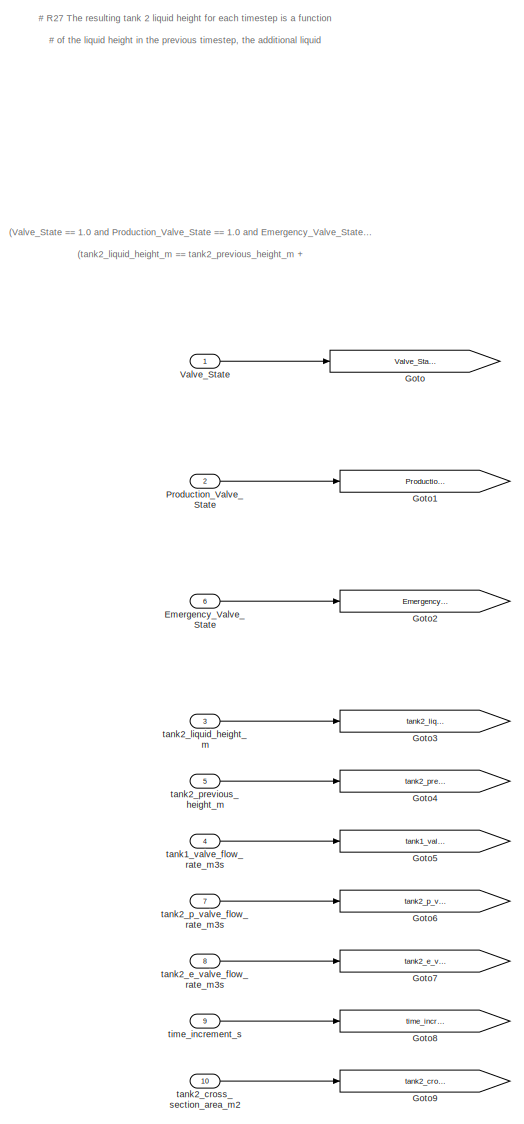
[diagram: Verification Subsystem - part 1/8, top left region]
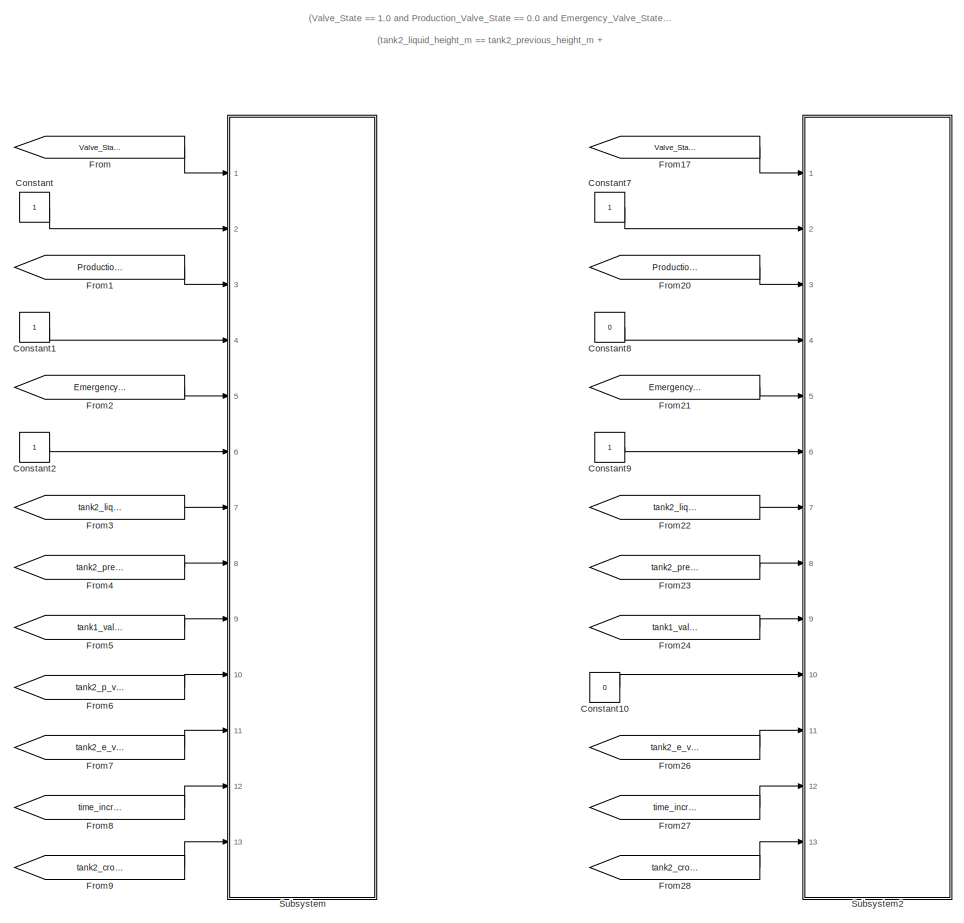
[diagram: Verification Subsystem - part 2/8, top left region]
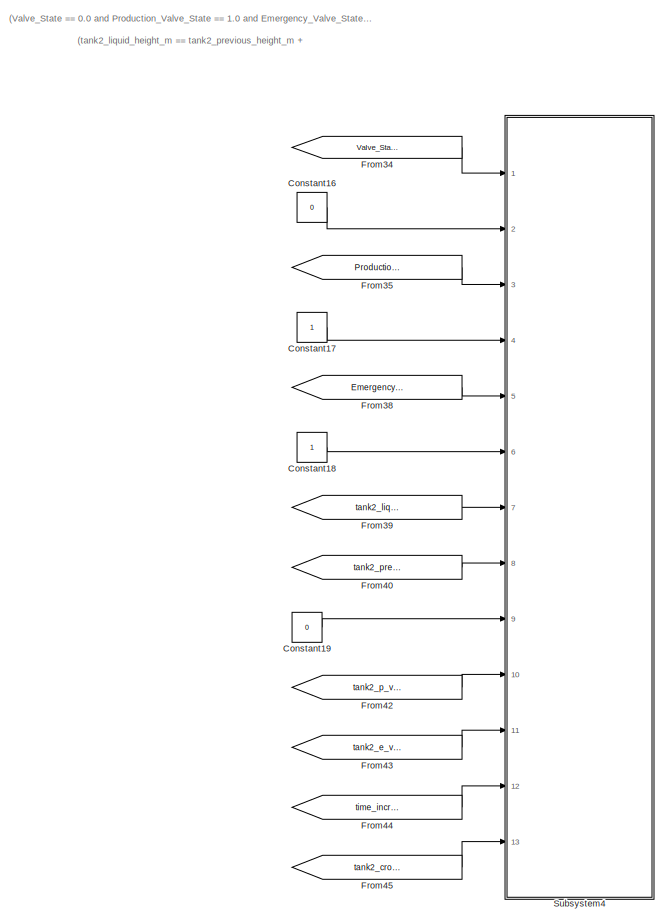
[diagram: Verification Subsystem - part 3/8, top center region]
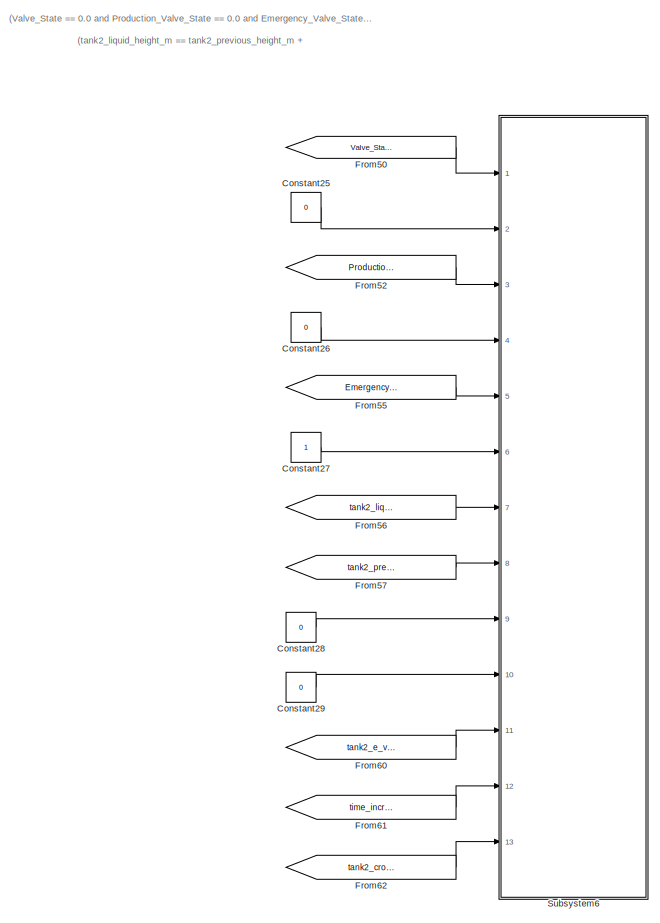
[diagram: Verification Subsystem - part 4/8, top right region]
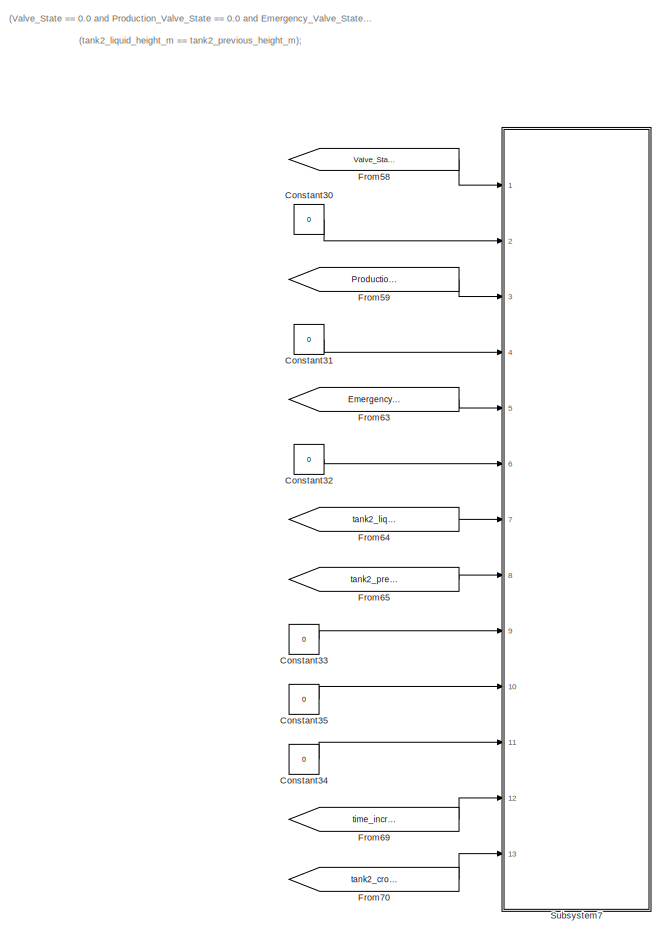
[diagram: Verification Subsystem - part 5/8, bottom right region]
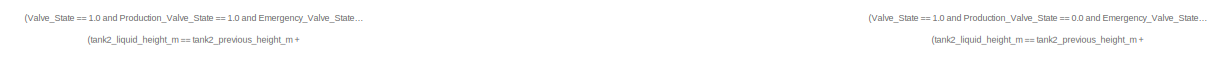
[diagram: Verification Subsystem - part 6/8, middle left region]
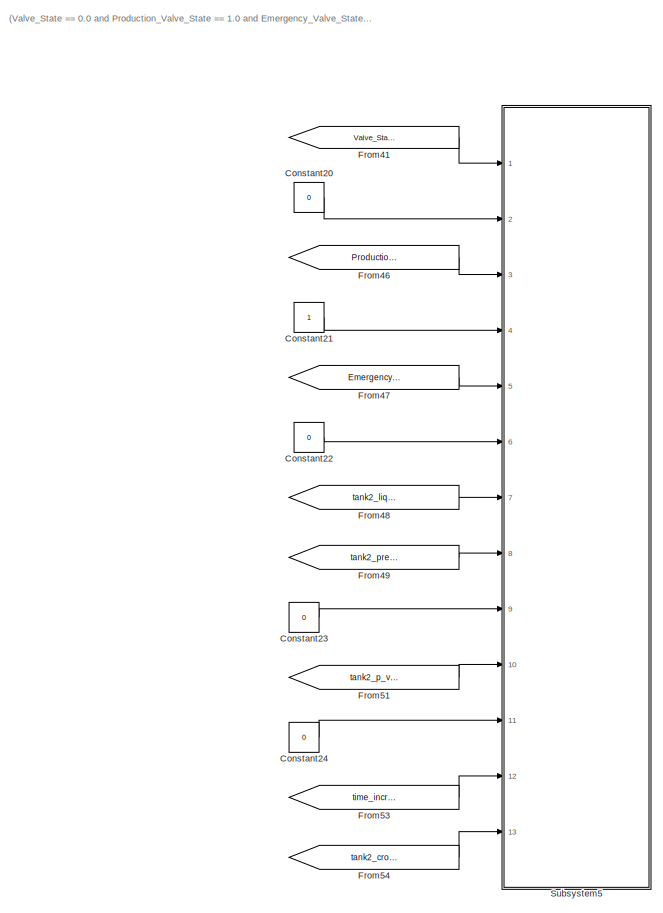
[diagram: Verification Subsystem - part 7/8, bottom center region]
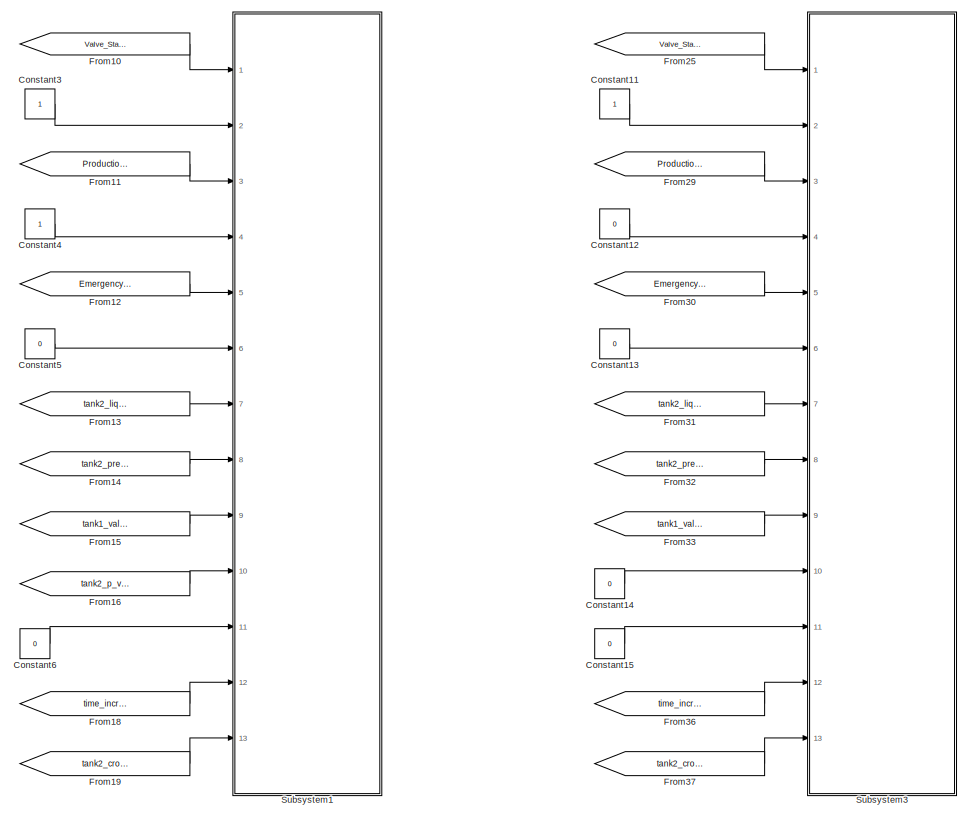
[diagram: Verification Subsystem - part 8/8, bottom left region]
BLOCK [SubSystem] Verification Subsystem
  CopyFcn = sldvsubsys('copy');
  DisableCoverage = on
  LoadFcn = sldvsubsys('check')
  OpenFcn = open_system(gcb,'force');
  Ports = [10]
  PreSaveFcn = set_param(gcb,'SimViewingDevice','on');\nsldvsubsys('check');
  RequestExecContextInheritance = off
  SID = 650
  SimViewingDevice = on
  Tag = VerificationSubsystem
  TreatAsAtomicUnit = on
  Variant = off
BLOCK [Constant] Verification Subsystem/Constant
  SID = 650:237
BLOCK [Constant] Verification Subsystem/Constant1
  SID = 650:238
BLOCK [Constant] Verification Subsystem/Constant10
  SID = 650:419
  Value = 0
BLOCK [Constant] Verification Subsystem/Constant11
  SID = 650:421
BLOCK [Constant] Verification Subsystem/Constant12
  SID = 650:422
  Value = 0
BLOCK [Constant] Verification Subsystem/Constant13
  SID = 650:423
  Value = 0
BLOCK [Constant] Verification Subsystem/Constant14
  SID = 650:459
  Value = 0
BLOCK [Constant] Verification Subsystem/Constant15
  SID = 650:460
  Value = 0
BLOCK [Constant] Verification Subsystem/Constant16
  SID = 650:462
  Value = 0
BLOCK [Constant] Verification Subsystem/Constant17
  SID = 650:463
BLOCK [Constant] Verification Subsystem/Constant18
  SID = 650:464
BLOCK [Constant] Verification Subsystem/Constant19
  SID = 650:500
  Value = 0
BLOCK [Constant] Verification Subsystem/Constant2
  SID = 650:239
BLOCK [Constant] Verification Subsystem/Constant20
  SID = 650:502
  Value = 0
BLOCK [Constant] Verification Subsystem/Constant21
  SID = 650:503
BLOCK [Constant] Verification Subsystem/Constant22
  SID = 650:504
  Value = 0
BLOCK [Constant] Verification Subsystem/Constant23
  SID = 650:540
  Value = 0
BLOCK [Constant] Verification Subsystem/Constant24
  SID = 650:541
  Value = 0
BLOCK [Constant] Verification Subsystem/Constant25
  SID = 650:543
  Value = 0
BLOCK [Constant] Verification Subsystem/Constant26
  SID = 650:544
  Value = 0
BLOCK [Constant] Verification Subsystem/Constant27
  SID = 650:545
BLOCK [Constant] Verification Subsystem/Constant28
  SID = 650:581
  Value = 0
BLOCK [Constant] Verification Subsystem/Constant29
  SID = 650:582
  Value = 0
BLOCK [Constant] Verification Subsystem/Constant3
  SID = 650:342
BLOCK [Constant] Verification Subsystem/Constant30
  SID = 650:584
  Value = 0
BLOCK [Constant] Verification Subsystem/Constant31
  SID = 650:585
  Value = 0
BLOCK [Constant] Verification Subsystem/Constant32
  SID = 650:586
  Value = 0
BLOCK [Constant] Verification Subsystem/Constant33
  SID = 650:622
  Value = 0
BLOCK [Constant] Verification Subsystem/Constant34
  SID = 650:623
  Value = 0
BLOCK [Constant] Verification Subsystem/Constant35
  SID = 650:624
  Value = 0
BLOCK [Constant] Verification Subsystem/Constant4
  SID = 650:343
BLOCK [Constant] Verification Subsystem/Constant5
  SID = 650:344
  Value = 0
BLOCK [Constant] Verification Subsystem/Constant6
  SID = 650:380
  Value = 0
BLOCK [Constant] Verification Subsystem/Constant7
  SID = 650:381
BLOCK [Constant] Verification Subsystem/Constant8
  SID = 650:382
  Value = 0
BLOCK [Constant] Verification Subsystem/Constant9
  SID = 650:383
BLOCK [Inport] Verification Subsystem/Emergency_Valve_State
  IconDisplay = Port number
  Port = 6
  SID = 650:70
BLOCK [From] Verification Subsystem/From
  GotoTag = Valve_State
  SID = 650:324
BLOCK [From] Verification Subsystem/From1
  GotoTag = Production_Valve_State
  SID = 650:325
BLOCK [From] Verification Subsystem/From10
  GotoTag = Valve_State
  SID = 650:345
BLOCK [From] Verification Subsystem/From11
  GotoTag = Production_Valve_State
  SID = 650:346
BLOCK [From] Verification Subsystem/From12
  GotoTag = Emergency_Valve_State
  SID = 650:347
BLOCK [From] Verification Subsystem/From13
  GotoTag = tank2_liquid_height_m
  SID = 650:348
BLOCK [From] Verification Subsystem/From14
  GotoTag = tank2_previous_height_m
  SID = 650:349
BLOCK [From] Verification Subsystem/From15
  GotoTag = tank1_valve_flow_rate_m3s
  SID = 650:350
BLOCK [From] Verification Subsystem/From16
  GotoTag = tank2_p_valve_flow_rate_m3s
  SID = 650:351
BLOCK [From] Verification Subsystem/From17
  GotoTag = Valve_State
  SID = 650:384
BLOCK [From] Verification Subsystem/From18
  GotoTag = time_increment_s
  SID = 650:353
BLOCK [From] Verification Subsystem/From19
  GotoTag = tank2_cross_section_area_m2
  SID = 650:354
BLOCK [From] Verification Subsystem/From2
  GotoTag = Emergency_Valve_State
  SID = 650:326
BLOCK [From] Verification Subsystem/From20
  GotoTag = Production_Valve_State
  SID = 650:385
BLOCK [From] Verification Subsystem/From21
  GotoTag = Emergency_Valve_State
  SID = 650:386
BLOCK [From] Verification Subsystem/From22
  GotoTag = tank2_liquid_height_m
  SID = 650:387
BLOCK [From] Verification Subsystem/From23
  GotoTag = tank2_previous_height_m
  SID = 650:388
BLOCK [From] Verification Subsystem/From24
  GotoTag = tank1_valve_flow_rate_m3s
  SID = 650:389
BLOCK [From] Verification Subsystem/From25
  GotoTag = Valve_State
  SID = 650:424
BLOCK [From] Verification Subsystem/From26
  GotoTag = tank2_e_valve_flow_rate_m3s
  SID = 650:391
BLOCK [From] Verification Subsystem/From27
  GotoTag = time_increment_s
  SID = 650:392
BLOCK [From] Verification Subsystem/From28
  GotoTag = tank2_cross_section_area_m2
  SID = 650:393
BLOCK [From] Verification Subsystem/From29
  GotoTag = Production_Valve_State
  SID = 650:425
BLOCK [From] Verification Subsystem/From3
  GotoTag = tank2_liquid_height_m
  SID = 650:334
BLOCK [From] Verification Subsystem/From30
  GotoTag = Emergency_Valve_State
  SID = 650:426
BLOCK [From] Verification Subsystem/From31
  GotoTag = tank2_liquid_height_m
  SID = 650:427
BLOCK [From] Verification Subsystem/From32
  GotoTag = tank2_previous_height_m
  SID = 650:428
BLOCK [From] Verification Subsystem/From33
  GotoTag = tank1_valve_flow_rate_m3s
  SID = 650:429
BLOCK [From] Verification Subsystem/From34
  GotoTag = Valve_State
  SID = 650:465
BLOCK [From] Verification Subsystem/From35
  GotoTag = Production_Valve_State
  SID = 650:466
BLOCK [From] Verification Subsystem/From36
  GotoTag = time_increment_s
  SID = 650:432
BLOCK [From] Verification Subsystem/From37
  GotoTag = tank2_cross_section_area_m2
  SID = 650:433
BLOCK [From] Verification Subsystem/From38
  GotoTag = Emergency_Valve_State
  SID = 650:467
BLOCK [From] Verification Subsystem/From39
  GotoTag = tank2_liquid_height_m
  SID = 650:468
BLOCK [From] Verification Subsystem/From4
  GotoTag = tank2_previous_height_m
  SID = 650:335
BLOCK [From] Verification Subsystem/From40
  GotoTag = tank2_previous_height_m
  SID = 650:469
BLOCK [From] Verification Subsystem/From41
  GotoTag = Valve_State
  SID = 650:505
BLOCK [From] Verification Subsystem/From42
  GotoTag = tank2_p_valve_flow_rate_m3s
  SID = 650:471
BLOCK [From] Verification Subsystem/From43
  GotoTag = tank2_e_valve_flow_rate_m3s
  SID = 650:472
BLOCK [From] Verification Subsystem/From44
  GotoTag = time_increment_s
  SID = 650:473
BLOCK [From] Verification Subsystem/From45
  GotoTag = tank2_cross_section_area_m2
  SID = 650:474
BLOCK [From] Verification Subsystem/From46
  GotoTag = Production_Valve_State
  SID = 650:506
BLOCK [From] Verification Subsystem/From47
  GotoTag = Emergency_Valve_State
  SID = 650:507
BLOCK [From] Verification Subsystem/From48
  GotoTag = tank2_liquid_height_m
  SID = 650:508
BLOCK [From] Verification Subsystem/From49
  GotoTag = tank2_previous_height_m
  SID = 650:509
BLOCK [From] Verification Subsystem/From5
  GotoTag = tank1_valve_flow_rate_m3s
  SID = 650:336
BLOCK [From] Verification Subsystem/From50
  GotoTag = Valve_State
  SID = 650:546
BLOCK [From] Verification Subsystem/From51
  GotoTag = tank2_p_valve_flow_rate_m3s
  SID = 650:511
BLOCK [From] Verification Subsystem/From52
  GotoTag = Production_Valve_State
  SID = 650:547
BLOCK [From] Verification Subsystem/From53
  GotoTag = time_increment_s
  SID = 650:513
BLOCK [From] Verification Subsystem/From54
  GotoTag = tank2_cross_section_area_m2
  SID = 650:514
BLOCK [From] Verification Subsystem/From55
  GotoTag = Emergency_Valve_State
  SID = 650:548
BLOCK [From] Verification Subsystem/From56
  GotoTag = tank2_liquid_height_m
  SID = 650:549
BLOCK [From] Verification Subsystem/From57
  GotoTag = tank2_previous_height_m
  SID = 650:550
BLOCK [From] Verification Subsystem/From58
  GotoTag = Valve_State
  SID = 650:587
BLOCK [From] Verification Subsystem/From59
  GotoTag = Production_Valve_State
  SID = 650:588
BLOCK [From] Verification Subsystem/From6
  GotoTag = tank2_p_valve_flow_rate_m3s
  SID = 650:337
BLOCK [From] Verification Subsystem/From60
  GotoTag = tank2_e_valve_flow_rate_m3s
  SID = 650:553
BLOCK [From] Verification Subsystem/From61
  GotoTag = time_increment_s
  SID = 650:554
BLOCK [From] Verification Subsystem/From62
  GotoTag = tank2_cross_section_area_m2
  SID = 650:555
BLOCK [From] Verification Subsystem/From63
  GotoTag = Emergency_Valve_State
  SID = 650:589
BLOCK [From] Verification Subsystem/From64
  GotoTag = tank2_liquid_height_m
  SID = 650:590
BLOCK [From] Verification Subsystem/From65
  GotoTag = tank2_previous_height_m
  SID = 650:591
BLOCK [From] Verification Subsystem/From69
  GotoTag = time_increment_s
  SID = 650:595
BLOCK [From] Verification Subsystem/From7
  GotoTag = tank2_e_valve_flow_rate_m3s
  SID = 650:338
BLOCK [From] Verification Subsystem/From70
  GotoTag = tank2_cross_section_area_m2
  SID = 650:596
BLOCK [From] Verification Subsystem/From8
  GotoTag = time_increment_s
  SID = 650:339
BLOCK [From] Verification Subsystem/From9
  GotoTag = tank2_cross_section_area_m2
  SID = 650:340
BLOCK [Goto] Verification Subsystem/Goto
  GotoTag = Valve_State
  SID = 650:321
BLOCK [Goto] Verification Subsystem/Goto1
  GotoTag = Production_Valve_State
  SID = 650:322
BLOCK [Goto] Verification Subsystem/Goto2
  GotoTag = Emergency_Valve_State
  SID = 650:323
BLOCK [Goto] Verification Subsystem/Goto3
  GotoTag = tank2_liquid_height_m
  SID = 650:327
BLOCK [Goto] Verification Subsystem/Goto4
  GotoTag = tank2_previous_height_m
  SID = 650:328
BLOCK [Goto] Verification Subsystem/Goto5
  GotoTag = tank1_valve_flow_rate_m3s
  SID = 650:329
BLOCK [Goto] Verification Subsystem/Goto6
  GotoTag = tank2_p_valve_flow_rate_m3s
  SID = 650:330
BLOCK [Goto] Verification Subsystem/Goto7
  GotoTag = tank2_e_valve_flow_rate_m3s
  SID = 650:331
BLOCK [Goto] Verification Subsystem/Goto8
  GotoTag = time_increment_s
  SID = 650:332
BLOCK [Goto] Verification Subsystem/Goto9
  GotoTag = tank2_cross_section_area_m2
  SID = 650:333
BLOCK [Inport] Verification Subsystem/Production_Valve_State
  IconDisplay = Port number
  Port = 2
  SID = 650:71
BLOCK [SubSystem] Verification Subsystem/Subsystem
  Ports = [13]
  RequestExecContextInheritance = off
  SID = 650:220
  Variant = off
BLOCK [Sum] Verification Subsystem/Subsystem/Add2
  InputSameDT = off
  Inputs = +--
  OutDataTypeStr = Inherit: Inherit via internal rule
  Ports = [3, 1]
  SID = 650:204
  SaturateOnIntegerOverflow = off
BLOCK [Sum] Verification Subsystem/Subsystem/Add3
  InputSameDT = off
  OutDataTypeStr = Inherit: Inherit via internal rule
  Ports = [2, 1]
  SID = 650:205
  SaturateOnIntegerOverflow = off
BLOCK [Product] Verification Subsystem/Subsystem/Divide
  InputSameDT = off
  Inputs = */
  OutDataTypeStr = Inherit: Inherit via internal rule
  Ports = [2, 1]
  RndMeth = Floor
  SID = 650:207
  SaturateOnIntegerOverflow = off
BLOCK [Inport] Verification Subsystem/Subsystem/Emergency_Valve_Compare
  IconDisplay = Port number
  Port = 6
  SID = 650:234
BLOCK [Inport] Verification Subsystem/Subsystem/Emergency_Valve_State
  IconDisplay = Port number
  Port = 5
  SID = 650:223
BLOCK [Reference] Verification Subsystem/Subsystem/Implies  REF=sldvlib/Verification Utilities/Implies
  Ports = [2, 1]
  SID = 650:202
  SourceBlock = sldvlib/Verification Utilities/Implies
  SourceType = Design Verifier Implies
BLOCK [Logic] Verification Subsystem/Subsystem/Logical\nOperator2
  AllPortsSameDT = off
  Inputs = 3
  OutDataTypeStr = boolean
  Ports = [3, 1]
  SID = 650:198
BLOCK [Product] Verification Subsystem/Subsystem/Product1
  InputSameDT = off
  OutDataTypeStr = Inherit: Inherit via internal rule
  Ports = [2, 1]
  RndMeth = Floor
  SID = 650:206
  SaturateOnIntegerOverflow = off
BLOCK [Inport] Verification Subsystem/Subsystem/Production_Valve_Compare
  IconDisplay = Port number
  Port = 4
  SID = 650:233
BLOCK [Inport] Verification Subsystem/Subsystem/Production_Valve_State
  IconDisplay = Port number
  Port = 3
  SID = 650:222
BLOCK [Reference] Verification Subsystem/Subsystem/Proof Objective1  REF=sldvlib/Objectives and Constraints/Proof Objective
  AttributesFormatString = %<intervals>
  Ports = [1]
  SID = 650:182
  SourceBlock = sldvlib/Objectives and Constraints/Proof Objective
  SourceType = Design Verifier Proof Objective
  customAVTBlockType = Proof Objective
  dispValues = on
  enableStopSim = off
  enabled = on
  intervals = true
  outEnabled = off
BLOCK [RelationalOperator] Verification Subsystem/Subsystem/Relational\nOperator
  InputSameDT = off
  Operator = ==
  OutDataTypeStr = boolean
  Ports = [2, 1]
  SID = 650:231
BLOCK [RelationalOperator] Verification Subsystem/Subsystem/Relational\nOperator1
  InputSameDT = off
  Operator = ==
  OutDataTypeStr = boolean
  Ports = [2, 1]
  SID = 650:203
BLOCK [RelationalOperator] Verification Subsystem/Subsystem/Relational\nOperator2
  InputSameDT = off
  Operator = ==
  OutDataTypeStr = boolean
  Ports = [2, 1]
  SID = 650:235
BLOCK [RelationalOperator] Verification Subsystem/Subsystem/Relational\nOperator3
  InputSameDT = off
  Operator = ==
  OutDataTypeStr = boolean
  Ports = [2, 1]
  SID = 650:236
BLOCK [Inport] Verification Subsystem/Subsystem/Valve_State
  IconDisplay = Port number
  SID = 650:221
BLOCK [Inport] Verification Subsystem/Subsystem/Valve_State_Compare
  IconDisplay = Port number
  Port = 2
  SID = 650:232
BLOCK [Inport] Verification Subsystem/Subsystem/tank1_valve_flow_rate_m3s
  IconDisplay = Port number
  Port = 9
  SID = 650:226
BLOCK [Inport] Verification Subsystem/Subsystem/tank2_cross_section_area_m2
  IconDisplay = Port number
  Port = 13
  SID = 650:230
BLOCK [Inport] Verification Subsystem/Subsystem/tank2_e_valve_flow_rate_m3s
  IconDisplay = Port number
  Port = 11
  SID = 650:228
BLOCK [Inport] Verification Subsystem/Subsystem/tank2_liquid_height_m
  IconDisplay = Port number
  Port = 7
  SID = 650:224
BLOCK [Inport] Verification Subsystem/Subsystem/tank2_p_valve_flow_rate_m3s
  IconDisplay = Port number
  Port = 10
  SID = 650:227
BLOCK [Inport] Verification Subsystem/Subsystem/tank2_previous_height_m
  IconDisplay = Port number
  Port = 8
  SID = 650:225
BLOCK [Inport] Verification Subsystem/Subsystem/time_increment_s
  IconDisplay = Port number
  Port = 12
  SID = 650:229
BLOCK [SubSystem] Verification Subsystem/Subsystem1
  Ports = [13]
  RequestExecContextInheritance = off
  SID = 650:355
  Variant = off
BLOCK [Sum] Verification Subsystem/Subsystem1/Add2
  InputSameDT = off
  Inputs = +--
  OutDataTypeStr = Inherit: Inherit via internal rule
  Ports = [3, 1]
  SID = 650:369
  SaturateOnIntegerOverflow = off
BLOCK [Sum] Verification Subsystem/Subsystem1/Add3
  InputSameDT = off
  OutDataTypeStr = Inherit: Inherit via internal rule
  Ports = [2, 1]
  SID = 650:370
  SaturateOnIntegerOverflow = off
BLOCK [Product] Verification Subsystem/Subsystem1/Divide
  InputSameDT = off
  Inputs = */
  OutDataTypeStr = Inherit: Inherit via internal rule
  Ports = [2, 1]
  RndMeth = Floor
  SID = 650:371
  SaturateOnIntegerOverflow = off
BLOCK [Inport] Verification Subsystem/Subsystem1/Emergency_Valve_Compare
  IconDisplay = Port number
  Port = 6
  SID = 650:361
BLOCK [Inport] Verification Subsystem/Subsystem1/Emergency_Valve_State
  IconDisplay = Port number
  Port = 5
  SID = 650:360
BLOCK [Reference] Verification Subsystem/Subsystem1/Implies  REF=sldvlib/Verification Utilities/Implies
  Ports = [2, 1]
  SID = 650:372
  SourceBlock = sldvlib/Verification Utilities/Implies
  SourceType = Design Verifier Implies
BLOCK [Logic] Verification Subsystem/Subsystem1/Logical\nOperator2
  AllPortsSameDT = off
  Inputs = 3
  OutDataTypeStr = boolean
  Ports = [3, 1]
  SID = 650:373
BLOCK [Product] Verification Subsystem/Subsystem1/Product1
  InputSameDT = off
  OutDataTypeStr = Inherit: Inherit via internal rule
  Ports = [2, 1]
  RndMeth = Floor
  SID = 650:374
  SaturateOnIntegerOverflow = off
BLOCK [Inport] Verification Subsystem/Subsystem1/Production_Valve_Compare
  IconDisplay = Port number
  Port = 4
  SID = 650:359
BLOCK [Inport] Verification Subsystem/Subsystem1/Production_Valve_State
  IconDisplay = Port number
  Port = 3
  SID = 650:358
BLOCK [Reference] Verification Subsystem/Subsystem1/Proof Objective1  REF=sldvlib/Objectives and Constraints/Proof Objective
  AttributesFormatString = %<intervals>
  Ports = [1]
  SID = 650:375
  SourceBlock = sldvlib/Objectives and Constraints/Proof Objective
  SourceType = Design Verifier Proof Objective
  customAVTBlockType = Proof Objective
  dispValues = on
  enableStopSim = off
  enabled = on
  intervals = true
  outEnabled = off
BLOCK [RelationalOperator] Verification Subsystem/Subsystem1/Relational\nOperator
  InputSameDT = off
  Operator = ==
  OutDataTypeStr = boolean
  Ports = [2, 1]
  SID = 650:376
BLOCK [RelationalOperator] Verification Subsystem/Subsystem1/Relational\nOperator1
  InputSameDT = off
  Operator = ==
  OutDataTypeStr = boolean
  Ports = [2, 1]
  SID = 650:377
BLOCK [RelationalOperator] Verification Subsystem/Subsystem1/Relational\nOperator2
  InputSameDT = off
  Operator = ==
  OutDataTypeStr = boolean
  Ports = [2, 1]
  SID = 650:378
BLOCK [RelationalOperator] Verification Subsystem/Subsystem1/Relational\nOperator3
  InputSameDT = off
  Operator = ==
  OutDataTypeStr = boolean
  Ports = [2, 1]
  SID = 650:379
BLOCK [Inport] Verification Subsystem/Subsystem1/Valve_State
  IconDisplay = Port number
  SID = 650:356
BLOCK [Inport] Verification Subsystem/Subsystem1/Valve_State_Compare
  IconDisplay = Port number
  Port = 2
  SID = 650:357
BLOCK [Inport] Verification Subsystem/Subsystem1/tank1_valve_flow_rate_m3s
  IconDisplay = Port number
  Port = 9
  SID = 650:364
BLOCK [Inport] Verification Subsystem/Subsystem1/tank2_cross_section_area_m2
  IconDisplay = Port number
  Port = 13
  SID = 650:368
BLOCK [Inport] Verification Subsystem/Subsystem1/tank2_e_valve_flow_rate_m3s
  IconDisplay = Port number
  Port = 11
  SID = 650:366
BLOCK [Inport] Verification Subsystem/Subsystem1/tank2_liquid_height_m
  IconDisplay = Port number
  Port = 7
  SID = 650:362
BLOCK [Inport] Verification Subsystem/Subsystem1/tank2_p_valve_flow_rate_m3s
  IconDisplay = Port number
  Port = 10
  SID = 650:365
BLOCK [Inport] Verification Subsystem/Subsystem1/tank2_previous_height_m
  IconDisplay = Port number
  Port = 8
  SID = 650:363
BLOCK [Inport] Verification Subsystem/Subsystem1/time_increment_s
  IconDisplay = Port number
  Port = 12
  SID = 650:367
BLOCK [SubSystem] Verification Subsystem/Subsystem2
  Ports = [13]
  RequestExecContextInheritance = off
  SID = 650:394
  Variant = off
BLOCK [Sum] Verification Subsystem/Subsystem2/Add2
  InputSameDT = off
  Inputs = +--
  OutDataTypeStr = Inherit: Inherit via internal rule
  Ports = [3, 1]
  SID = 650:408
  SaturateOnIntegerOverflow = off
BLOCK [Sum] Verification Subsystem/Subsystem2/Add3
  InputSameDT = off
  OutDataTypeStr = Inherit: Inherit via internal rule
  Ports = [2, 1]
  SID = 650:409
  SaturateOnIntegerOverflow = off
BLOCK [Product] Verification Subsystem/Subsystem2/Divide
  InputSameDT = off
  Inputs = */
  OutDataTypeStr = Inherit: Inherit via internal rule
  Ports = [2, 1]
  RndMeth = Floor
  SID = 650:410
  SaturateOnIntegerOverflow = off
BLOCK [Inport] Verification Subsystem/Subsystem2/Emergency_Valve_Compare
  IconDisplay = Port number
  Port = 6
  SID = 650:400
BLOCK [Inport] Verification Subsystem/Subsystem2/Emergency_Valve_State
  IconDisplay = Port number
  Port = 5
  SID = 650:399
BLOCK [Reference] Verification Subsystem/Subsystem2/Implies  REF=sldvlib/Verification Utilities/Implies
  Ports = [2, 1]
  SID = 650:411
  SourceBlock = sldvlib/Verification Utilities/Implies
  SourceType = Design Verifier Implies
BLOCK [Logic] Verification Subsystem/Subsystem2/Logical\nOperator2
  AllPortsSameDT = off
  Inputs = 3
  OutDataTypeStr = boolean
  Ports = [3, 1]
  SID = 650:412
BLOCK [Product] Verification Subsystem/Subsystem2/Product1
  InputSameDT = off
  OutDataTypeStr = Inherit: Inherit via internal rule
  Ports = [2, 1]
  RndMeth = Floor
  SID = 650:413
  SaturateOnIntegerOverflow = off
BLOCK [Inport] Verification Subsystem/Subsystem2/Production_Valve_Compare
  IconDisplay = Port number
  Port = 4
  SID = 650:398
BLOCK [Inport] Verification Subsystem/Subsystem2/Production_Valve_State
  IconDisplay = Port number
  Port = 3
  SID = 650:397
BLOCK [Reference] Verification Subsystem/Subsystem2/Proof Objective1  REF=sldvlib/Objectives and Constraints/Proof Objective
  AttributesFormatString = %<intervals>
  Ports = [1]
  SID = 650:414
  SourceBlock = sldvlib/Objectives and Constraints/Proof Objective
  SourceType = Design Verifier Proof Objective
  customAVTBlockType = Proof Objective
  dispValues = on
  enableStopSim = off
  enabled = on
  intervals = true
  outEnabled = off
BLOCK [RelationalOperator] Verification Subsystem/Subsystem2/Relational\nOperator
  InputSameDT = off
  Operator = ==
  OutDataTypeStr = boolean
  Ports = [2, 1]
  SID = 650:415
BLOCK [RelationalOperator] Verification Subsystem/Subsystem2/Relational\nOperator1
  InputSameDT = off
  Operator = ==
  OutDataTypeStr = boolean
  Ports = [2, 1]
  SID = 650:416
BLOCK [RelationalOperator] Verification Subsystem/Subsystem2/Relational\nOperator2
  InputSameDT = off
  Operator = ==
  OutDataTypeStr = boolean
  Ports = [2, 1]
  SID = 650:417
BLOCK [RelationalOperator] Verification Subsystem/Subsystem2/Relational\nOperator3
  InputSameDT = off
  Operator = ==
  OutDataTypeStr = boolean
  Ports = [2, 1]
  SID = 650:418
BLOCK [Inport] Verification Subsystem/Subsystem2/Valve_State
  IconDisplay = Port number
  SID = 650:395
BLOCK [Inport] Verification Subsystem/Subsystem2/Valve_State_Compare
  IconDisplay = Port number
  Port = 2
  SID = 650:396
BLOCK [Inport] Verification Subsystem/Subsystem2/tank1_valve_flow_rate_m3s
  IconDisplay = Port number
  Port = 9
  SID = 650:403
BLOCK [Inport] Verification Subsystem/Subsystem2/tank2_cross_section_area_m2
  IconDisplay = Port number
  Port = 13
  SID = 650:407
BLOCK [Inport] Verification Subsystem/Subsystem2/tank2_e_valve_flow_rate_m3s
  IconDisplay = Port number
  Port = 11
  SID = 650:405
BLOCK [Inport] Verification Subsystem/Subsystem2/tank2_liquid_height_m
  IconDisplay = Port number
  Port = 7
  SID = 650:401
BLOCK [Inport] Verification Subsystem/Subsystem2/tank2_p_valve_flow_rate_m3s
  IconDisplay = Port number
  Port = 10
  SID = 650:404
BLOCK [Inport] Verification Subsystem/Subsystem2/tank2_previous_height_m
  IconDisplay = Port number
  Port = 8
  SID = 650:402
BLOCK [Inport] Verification Subsystem/Subsystem2/time_increment_s
  IconDisplay = Port number
  Port = 12
  SID = 650:406
BLOCK [SubSystem] Verification Subsystem/Subsystem3
  Ports = [13]
  RequestExecContextInheritance = off
  SID = 650:434
  Variant = off
BLOCK [Sum] Verification Subsystem/Subsystem3/Add2
  InputSameDT = off
  Inputs = +--
  OutDataTypeStr = Inherit: Inherit via internal rule
  Ports = [3, 1]
  SID = 650:448
  SaturateOnIntegerOverflow = off
BLOCK [Sum] Verification Subsystem/Subsystem3/Add3
  InputSameDT = off
  OutDataTypeStr = Inherit: Inherit via internal rule
  Ports = [2, 1]
  SID = 650:449
  SaturateOnIntegerOverflow = off
BLOCK [Product] Verification Subsystem/Subsystem3/Divide
  InputSameDT = off
  Inputs = */
  OutDataTypeStr = Inherit: Inherit via internal rule
  Ports = [2, 1]
  RndMeth = Floor
  SID = 650:450
  SaturateOnIntegerOverflow = off
BLOCK [Inport] Verification Subsystem/Subsystem3/Emergency_Valve_Compare
  IconDisplay = Port number
  Port = 6
  SID = 650:440
BLOCK [Inport] Verification Subsystem/Subsystem3/Emergency_Valve_State
  IconDisplay = Port number
  Port = 5
  SID = 650:439
BLOCK [Reference] Verification Subsystem/Subsystem3/Implies  REF=sldvlib/Verification Utilities/Implies
  Ports = [2, 1]
  SID = 650:451
  SourceBlock = sldvlib/Verification Utilities/Implies
  SourceType = Design Verifier Implies
BLOCK [Logic] Verification Subsystem/Subsystem3/Logical\nOperator2
  AllPortsSameDT = off
  Inputs = 3
  OutDataTypeStr = boolean
  Ports = [3, 1]
  SID = 650:452
BLOCK [Product] Verification Subsystem/Subsystem3/Product1
  InputSameDT = off
  OutDataTypeStr = Inherit: Inherit via internal rule
  Ports = [2, 1]
  RndMeth = Floor
  SID = 650:453
  SaturateOnIntegerOverflow = off
BLOCK [Inport] Verification Subsystem/Subsystem3/Production_Valve_Compare
  IconDisplay = Port number
  Port = 4
  SID = 650:438
BLOCK [Inport] Verification Subsystem/Subsystem3/Production_Valve_State
  IconDisplay = Port number
  Port = 3
  SID = 650:437
BLOCK [Reference] Verification Subsystem/Subsystem3/Proof Objective1  REF=sldvlib/Objectives and Constraints/Proof Objective
  AttributesFormatString = %<intervals>
  Ports = [1]
  SID = 650:454
  SourceBlock = sldvlib/Objectives and Constraints/Proof Objective
  SourceType = Design Verifier Proof Objective
  customAVTBlockType = Proof Objective
  dispValues = on
  enableStopSim = off
  enabled = on
  intervals = true
  outEnabled = off
BLOCK [RelationalOperator] Verification Subsystem/Subsystem3/Relational\nOperator
  InputSameDT = off
  Operator = ==
  OutDataTypeStr = boolean
  Ports = [2, 1]
  SID = 650:455
BLOCK [RelationalOperator] Verification Subsystem/Subsystem3/Relational\nOperator1
  InputSameDT = off
  Operator = ==
  OutDataTypeStr = boolean
  Ports = [2, 1]
  SID = 650:456
BLOCK [RelationalOperator] Verification Subsystem/Subsystem3/Relational\nOperator2
  InputSameDT = off
  Operator = ==
  OutDataTypeStr = boolean
  Ports = [2, 1]
  SID = 650:457
BLOCK [RelationalOperator] Verification Subsystem/Subsystem3/Relational\nOperator3
  InputSameDT = off
  Operator = ==
  OutDataTypeStr = boolean
  Ports = [2, 1]
  SID = 650:458
BLOCK [Inport] Verification Subsystem/Subsystem3/Valve_State
  IconDisplay = Port number
  SID = 650:435
BLOCK [Inport] Verification Subsystem/Subsystem3/Valve_State_Compare
  IconDisplay = Port number
  Port = 2
  SID = 650:436
BLOCK [Inport] Verification Subsystem/Subsystem3/tank1_valve_flow_rate_m3s
  IconDisplay = Port number
  Port = 9
  SID = 650:443
BLOCK [Inport] Verification Subsystem/Subsystem3/tank2_cross_section_area_m2
  IconDisplay = Port number
  Port = 13
  SID = 650:447
BLOCK [Inport] Verification Subsystem/Subsystem3/tank2_e_valve_flow_rate_m3s
  IconDisplay = Port number
  Port = 11
  SID = 650:445
BLOCK [Inport] Verification Subsystem/Subsystem3/tank2_liquid_height_m
  IconDisplay = Port number
  Port = 7
  SID = 650:441
BLOCK [Inport] Verification Subsystem/Subsystem3/tank2_p_valve_flow_rate_m3s
  IconDisplay = Port number
  Port = 10
  SID = 650:444
BLOCK [Inport] Verification Subsystem/Subsystem3/tank2_previous_height_m
  IconDisplay = Port number
  Port = 8
  SID = 650:442
BLOCK [Inport] Verification Subsystem/Subsystem3/time_increment_s
  IconDisplay = Port number
  Port = 12
  SID = 650:446
BLOCK [SubSystem] Verification Subsystem/Subsystem4
  Ports = [13]
  RequestExecContextInheritance = off
  SID = 650:475
  Variant = off
BLOCK [Sum] Verification Subsystem/Subsystem4/Add2
  InputSameDT = off
  Inputs = +--
  OutDataTypeStr = Inherit: Inherit via internal rule
  Ports = [3, 1]
  SID = 650:489
  SaturateOnIntegerOverflow = off
BLOCK [Sum] Verification Subsystem/Subsystem4/Add3
  InputSameDT = off
  OutDataTypeStr = Inherit: Inherit via internal rule
  Ports = [2, 1]
  SID = 650:490
  SaturateOnIntegerOverflow = off
BLOCK [Product] Verification Subsystem/Subsystem4/Divide
  InputSameDT = off
  Inputs = */
  OutDataTypeStr = Inherit: Inherit via internal rule
  Ports = [2, 1]
  RndMeth = Floor
  SID = 650:491
  SaturateOnIntegerOverflow = off
BLOCK [Inport] Verification Subsystem/Subsystem4/Emergency_Valve_Compare
  IconDisplay = Port number
  Port = 6
  SID = 650:481
BLOCK [Inport] Verification Subsystem/Subsystem4/Emergency_Valve_State
  IconDisplay = Port number
  Port = 5
  SID = 650:480
BLOCK [Reference] Verification Subsystem/Subsystem4/Implies  REF=sldvlib/Verification Utilities/Implies
  Ports = [2, 1]
  SID = 650:492
  SourceBlock = sldvlib/Verification Utilities/Implies
  SourceType = Design Verifier Implies
BLOCK [Logic] Verification Subsystem/Subsystem4/Logical\nOperator2
  AllPortsSameDT = off
  Inputs = 3
  OutDataTypeStr = boolean
  Ports = [3, 1]
  SID = 650:493
BLOCK [Product] Verification Subsystem/Subsystem4/Product1
  InputSameDT = off
  OutDataTypeStr = Inherit: Inherit via internal rule
  Ports = [2, 1]
  RndMeth = Floor
  SID = 650:494
  SaturateOnIntegerOverflow = off
BLOCK [Inport] Verification Subsystem/Subsystem4/Production_Valve_Compare
  IconDisplay = Port number
  Port = 4
  SID = 650:479
BLOCK [Inport] Verification Subsystem/Subsystem4/Production_Valve_State
  IconDisplay = Port number
  Port = 3
  SID = 650:478
BLOCK [Reference] Verification Subsystem/Subsystem4/Proof Objective1  REF=sldvlib/Objectives and Constraints/Proof Objective
  AttributesFormatString = %<intervals>
  Ports = [1]
  SID = 650:495
  SourceBlock = sldvlib/Objectives and Constraints/Proof Objective
  SourceType = Design Verifier Proof Objective
  customAVTBlockType = Proof Objective
  dispValues = on
  enableStopSim = off
  enabled = on
  intervals = true
  outEnabled = off
BLOCK [RelationalOperator] Verification Subsystem/Subsystem4/Relational\nOperator
  InputSameDT = off
  Operator = ==
  OutDataTypeStr = boolean
  Ports = [2, 1]
  SID = 650:496
BLOCK [RelationalOperator] Verification Subsystem/Subsystem4/Relational\nOperator1
  InputSameDT = off
  Operator = ==
  OutDataTypeStr = boolean
  Ports = [2, 1]
  SID = 650:497
BLOCK [RelationalOperator] Verification Subsystem/Subsystem4/Relational\nOperator2
  InputSameDT = off
  Operator = ==
  OutDataTypeStr = boolean
  Ports = [2, 1]
  SID = 650:498
BLOCK [RelationalOperator] Verification Subsystem/Subsystem4/Relational\nOperator3
  InputSameDT = off
  Operator = ==
  OutDataTypeStr = boolean
  Ports = [2, 1]
  SID = 650:499
BLOCK [Inport] Verification Subsystem/Subsystem4/Valve_State
  IconDisplay = Port number
  SID = 650:476
BLOCK [Inport] Verification Subsystem/Subsystem4/Valve_State_Compare
  IconDisplay = Port number
  Port = 2
  SID = 650:477
BLOCK [Inport] Verification Subsystem/Subsystem4/tank1_valve_flow_rate_m3s
  IconDisplay = Port number
  Port = 9
  SID = 650:484
BLOCK [Inport] Verification Subsystem/Subsystem4/tank2_cross_section_area_m2
  IconDisplay = Port number
  Port = 13
  SID = 650:488
BLOCK [Inport] Verification Subsystem/Subsystem4/tank2_e_valve_flow_rate_m3s
  IconDisplay = Port number
  Port = 11
  SID = 650:486
BLOCK [Inport] Verification Subsystem/Subsystem4/tank2_liquid_height_m
  IconDisplay = Port number
  Port = 7
  SID = 650:482
BLOCK [Inport] Verification Subsystem/Subsystem4/tank2_p_valve_flow_rate_m3s
  IconDisplay = Port number
  Port = 10
  SID = 650:485
BLOCK [Inport] Verification Subsystem/Subsystem4/tank2_previous_height_m
  IconDisplay = Port number
  Port = 8
  SID = 650:483
BLOCK [Inport] Verification Subsystem/Subsystem4/time_increment_s
  IconDisplay = Port number
  Port = 12
  SID = 650:487
BLOCK [SubSystem] Verification Subsystem/Subsystem5
  Ports = [13]
  RequestExecContextInheritance = off
  SID = 650:515
  Variant = off
BLOCK [Sum] Verification Subsystem/Subsystem5/Add2
  InputSameDT = off
  Inputs = +--
  OutDataTypeStr = Inherit: Inherit via internal rule
  Ports = [3, 1]
  SID = 650:529
  SaturateOnIntegerOverflow = off
BLOCK [Sum] Verification Subsystem/Subsystem5/Add3
  InputSameDT = off
  OutDataTypeStr = Inherit: Inherit via internal rule
  Ports = [2, 1]
  SID = 650:530
  SaturateOnIntegerOverflow = off
BLOCK [Product] Verification Subsystem/Subsystem5/Divide
  InputSameDT = off
  Inputs = */
  OutDataTypeStr = Inherit: Inherit via internal rule
  Ports = [2, 1]
  RndMeth = Floor
  SID = 650:531
  SaturateOnIntegerOverflow = off
BLOCK [Inport] Verification Subsystem/Subsystem5/Emergency_Valve_Compare
  IconDisplay = Port number
  Port = 6
  SID = 650:521
BLOCK [Inport] Verification Subsystem/Subsystem5/Emergency_Valve_State
  IconDisplay = Port number
  Port = 5
  SID = 650:520
BLOCK [Reference] Verification Subsystem/Subsystem5/Implies  REF=sldvlib/Verification Utilities/Implies
  Ports = [2, 1]
  SID = 650:532
  SourceBlock = sldvlib/Verification Utilities/Implies
  SourceType = Design Verifier Implies
BLOCK [Logic] Verification Subsystem/Subsystem5/Logical\nOperator2
  AllPortsSameDT = off
  Inputs = 3
  OutDataTypeStr = boolean
  Ports = [3, 1]
  SID = 650:533
BLOCK [Product] Verification Subsystem/Subsystem5/Product1
  InputSameDT = off
  OutDataTypeStr = Inherit: Inherit via internal rule
  Ports = [2, 1]
  RndMeth = Floor
  SID = 650:534
  SaturateOnIntegerOverflow = off
BLOCK [Inport] Verification Subsystem/Subsystem5/Production_Valve_Compare
  IconDisplay = Port number
  Port = 4
  SID = 650:519
BLOCK [Inport] Verification Subsystem/Subsystem5/Production_Valve_State
  IconDisplay = Port number
  Port = 3
  SID = 650:518
BLOCK [Reference] Verification Subsystem/Subsystem5/Proof Objective1  REF=sldvlib/Objectives and Constraints/Proof Objective
  AttributesFormatString = %<intervals>
  Ports = [1]
  SID = 650:535
  SourceBlock = sldvlib/Objectives and Constraints/Proof Objective
  SourceType = Design Verifier Proof Objective
  customAVTBlockType = Proof Objective
  dispValues = on
  enableStopSim = off
  enabled = on
  intervals = true
  outEnabled = off
BLOCK [RelationalOperator] Verification Subsystem/Subsystem5/Relational\nOperator
  InputSameDT = off
  Operator = ==
  OutDataTypeStr = boolean
  Ports = [2, 1]
  SID = 650:536
BLOCK [RelationalOperator] Verification Subsystem/Subsystem5/Relational\nOperator1
  InputSameDT = off
  Operator = ==
  OutDataTypeStr = boolean
  Ports = [2, 1]
  SID = 650:537
BLOCK [RelationalOperator] Verification Subsystem/Subsystem5/Relational\nOperator2
  InputSameDT = off
  Operator = ==
  OutDataTypeStr = boolean
  Ports = [2, 1]
  SID = 650:538
BLOCK [RelationalOperator] Verification Subsystem/Subsystem5/Relational\nOperator3
  InputSameDT = off
  Operator = ==
  OutDataTypeStr = boolean
  Ports = [2, 1]
  SID = 650:539
BLOCK [Inport] Verification Subsystem/Subsystem5/Valve_State
  IconDisplay = Port number
  SID = 650:516
BLOCK [Inport] Verification Subsystem/Subsystem5/Valve_State_Compare
  IconDisplay = Port number
  Port = 2
  SID = 650:517
BLOCK [Inport] Verification Subsystem/Subsystem5/tank1_valve_flow_rate_m3s
  IconDisplay = Port number
  Port = 9
  SID = 650:524
BLOCK [Inport] Verification Subsystem/Subsystem5/tank2_cross_section_area_m2
  IconDisplay = Port number
  Port = 13
  SID = 650:528
BLOCK [Inport] Verification Subsystem/Subsystem5/tank2_e_valve_flow_rate_m3s
  IconDisplay = Port number
  Port = 11
  SID = 650:526
BLOCK [Inport] Verification Subsystem/Subsystem5/tank2_liquid_height_m
  IconDisplay = Port number
  Port = 7
  SID = 650:522
BLOCK [Inport] Verification Subsystem/Subsystem5/tank2_p_valve_flow_rate_m3s
  IconDisplay = Port number
  Port = 10
  SID = 650:525
BLOCK [Inport] Verification Subsystem/Subsystem5/tank2_previous_height_m
  IconDisplay = Port number
  Port = 8
  SID = 650:523
BLOCK [Inport] Verification Subsystem/Subsystem5/time_increment_s
  IconDisplay = Port number
  Port = 12
  SID = 650:527
BLOCK [SubSystem] Verification Subsystem/Subsystem6
  Ports = [13]
  RequestExecContextInheritance = off
  SID = 650:556
  Variant = off
BLOCK [Sum] Verification Subsystem/Subsystem6/Add2
  InputSameDT = off
  Inputs = +--
  OutDataTypeStr = Inherit: Inherit via internal rule
  Ports = [3, 1]
  SID = 650:570
  SaturateOnIntegerOverflow = off
BLOCK [Sum] Verification Subsystem/Subsystem6/Add3
  InputSameDT = off
  OutDataTypeStr = Inherit: Inherit via internal rule
  Ports = [2, 1]
  SID = 650:571
  SaturateOnIntegerOverflow = off
BLOCK [Product] Verification Subsystem/Subsystem6/Divide
  InputSameDT = off
  Inputs = */
  OutDataTypeStr = Inherit: Inherit via internal rule
  Ports = [2, 1]
  RndMeth = Floor
  SID = 650:572
  SaturateOnIntegerOverflow = off
BLOCK [Inport] Verification Subsystem/Subsystem6/Emergency_Valve_Compare
  IconDisplay = Port number
  Port = 6
  SID = 650:562
BLOCK [Inport] Verification Subsystem/Subsystem6/Emergency_Valve_State
  IconDisplay = Port number
  Port = 5
  SID = 650:561
BLOCK [Reference] Verification Subsystem/Subsystem6/Implies  REF=sldvlib/Verification Utilities/Implies
  Ports = [2, 1]
  SID = 650:573
  SourceBlock = sldvlib/Verification Utilities/Implies
  SourceType = Design Verifier Implies
BLOCK [Logic] Verification Subsystem/Subsystem6/Logical\nOperator2
  AllPortsSameDT = off
  Inputs = 3
  OutDataTypeStr = boolean
  Ports = [3, 1]
  SID = 650:574
BLOCK [Product] Verification Subsystem/Subsystem6/Product1
  InputSameDT = off
  OutDataTypeStr = Inherit: Inherit via internal rule
  Ports = [2, 1]
  RndMeth = Floor
  SID = 650:575
  SaturateOnIntegerOverflow = off
BLOCK [Inport] Verification Subsystem/Subsystem6/Production_Valve_Compare
  IconDisplay = Port number
  Port = 4
  SID = 650:560
BLOCK [Inport] Verification Subsystem/Subsystem6/Production_Valve_State
  IconDisplay = Port number
  Port = 3
  SID = 650:559
BLOCK [Reference] Verification Subsystem/Subsystem6/Proof Objective1  REF=sldvlib/Objectives and Constraints/Proof Objective
  AttributesFormatString = %<intervals>
  Ports = [1]
  SID = 650:576
  SourceBlock = sldvlib/Objectives and Constraints/Proof Objective
  SourceType = Design Verifier Proof Objective
  customAVTBlockType = Proof Objective
  dispValues = on
  enableStopSim = off
  enabled = on
  intervals = true
  outEnabled = off
BLOCK [RelationalOperator] Verification Subsystem/Subsystem6/Relational\nOperator
  InputSameDT = off
  Operator = ==
  OutDataTypeStr = boolean
  Ports = [2, 1]
  SID = 650:577
BLOCK [RelationalOperator] Verification Subsystem/Subsystem6/Relational\nOperator1
  InputSameDT = off
  Operator = ==
  OutDataTypeStr = boolean
  Ports = [2, 1]
  SID = 650:578
BLOCK [RelationalOperator] Verification Subsystem/Subsystem6/Relational\nOperator2
  InputSameDT = off
  Operator = ==
  OutDataTypeStr = boolean
  Ports = [2, 1]
  SID = 650:579
BLOCK [RelationalOperator] Verification Subsystem/Subsystem6/Relational\nOperator3
  InputSameDT = off
  Operator = ==
  OutDataTypeStr = boolean
  Ports = [2, 1]
  SID = 650:580
BLOCK [Inport] Verification Subsystem/Subsystem6/Valve_State
  IconDisplay = Port number
  SID = 650:557
BLOCK [Inport] Verification Subsystem/Subsystem6/Valve_State_Compare
  IconDisplay = Port number
  Port = 2
  SID = 650:558
BLOCK [Inport] Verification Subsystem/Subsystem6/tank1_valve_flow_rate_m3s
  IconDisplay = Port number
  Port = 9
  SID = 650:565
BLOCK [Inport] Verification Subsystem/Subsystem6/tank2_cross_section_area_m2
  IconDisplay = Port number
  Port = 13
  SID = 650:569
BLOCK [Inport] Verification Subsystem/Subsystem6/tank2_e_valve_flow_rate_m3s
  IconDisplay = Port number
  Port = 11
  SID = 650:567
BLOCK [Inport] Verification Subsystem/Subsystem6/tank2_liquid_height_m
  IconDisplay = Port number
  Port = 7
  SID = 650:563
BLOCK [Inport] Verification Subsystem/Subsystem6/tank2_p_valve_flow_rate_m3s
  IconDisplay = Port number
  Port = 10
  SID = 650:566
BLOCK [Inport] Verification Subsystem/Subsystem6/tank2_previous_height_m
  IconDisplay = Port number
  Port = 8
  SID = 650:564
BLOCK [Inport] Verification Subsystem/Subsystem6/time_increment_s
  IconDisplay = Port number
  Port = 12
  SID = 650:568
BLOCK [SubSystem] Verification Subsystem/Subsystem7
  Ports = [13]
  RequestExecContextInheritance = off
  SID = 650:597
  Variant = off
BLOCK [Sum] Verification Subsystem/Subsystem7/Add2
  InputSameDT = off
  Inputs = +--
  OutDataTypeStr = Inherit: Inherit via internal rule
  Ports = [3, 1]
  SID = 650:611
  SaturateOnIntegerOverflow = off
BLOCK [Sum] Verification Subsystem/Subsystem7/Add3
  InputSameDT = off
  OutDataTypeStr = Inherit: Inherit via internal rule
  Ports = [2, 1]
  SID = 650:612
  SaturateOnIntegerOverflow = off
BLOCK [Product] Verification Subsystem/Subsystem7/Divide
  InputSameDT = off
  Inputs = */
  OutDataTypeStr = Inherit: Inherit via internal rule
  Ports = [2, 1]
  RndMeth = Floor
  SID = 650:613
  SaturateOnIntegerOverflow = off
BLOCK [Inport] Verification Subsystem/Subsystem7/Emergency_Valve_Compare
  IconDisplay = Port number
  Port = 6
  SID = 650:603
BLOCK [Inport] Verification Subsystem/Subsystem7/Emergency_Valve_State
  IconDisplay = Port number
  Port = 5
  SID = 650:602
BLOCK [Reference] Verification Subsystem/Subsystem7/Implies  REF=sldvlib/Verification Utilities/Implies
  Ports = [2, 1]
  SID = 650:614
  SourceBlock = sldvlib/Verification Utilities/Implies
  SourceType = Design Verifier Implies
BLOCK [Logic] Verification Subsystem/Subsystem7/Logical\nOperator2
  AllPortsSameDT = off
  Inputs = 3
  OutDataTypeStr = boolean
  Ports = [3, 1]
  SID = 650:615
BLOCK [Product] Verification Subsystem/Subsystem7/Product1
  InputSameDT = off
  OutDataTypeStr = Inherit: Inherit via internal rule
  Ports = [2, 1]
  RndMeth = Floor
  SID = 650:616
  SaturateOnIntegerOverflow = off
BLOCK [Inport] Verification Subsystem/Subsystem7/Production_Valve_Compare
  IconDisplay = Port number
  Port = 4
  SID = 650:601
BLOCK [Inport] Verification Subsystem/Subsystem7/Production_Valve_State
  IconDisplay = Port number
  Port = 3
  SID = 650:600
BLOCK [Reference] Verification Subsystem/Subsystem7/Proof Objective1  REF=sldvlib/Objectives and Constraints/Proof Objective
  AttributesFormatString = %<intervals>
  Ports = [1]
  SID = 650:617
  SourceBlock = sldvlib/Objectives and Constraints/Proof Objective
  SourceType = Design Verifier Proof Objective
  customAVTBlockType = Proof Objective
  dispValues = on
  enableStopSim = off
  enabled = on
  intervals = true
  outEnabled = off
BLOCK [RelationalOperator] Verification Subsystem/Subsystem7/Relational\nOperator
  InputSameDT = off
  Operator = ==
  OutDataTypeStr = boolean
  Ports = [2, 1]
  SID = 650:618
BLOCK [RelationalOperator] Verification Subsystem/Subsystem7/Relational\nOperator1
  InputSameDT = off
  Operator = ==
  OutDataTypeStr = boolean
  Ports = [2, 1]
  SID = 650:619
BLOCK [RelationalOperator] Verification Subsystem/Subsystem7/Relational\nOperator2
  InputSameDT = off
  Operator = ==
  OutDataTypeStr = boolean
  Ports = [2, 1]
  SID = 650:620
BLOCK [RelationalOperator] Verification Subsystem/Subsystem7/Relational\nOperator3
  InputSameDT = off
  Operator = ==
  OutDataTypeStr = boolean
  Ports = [2, 1]
  SID = 650:621
BLOCK [Inport] Verification Subsystem/Subsystem7/Valve_State
  IconDisplay = Port number
  SID = 650:598
BLOCK [Inport] Verification Subsystem/Subsystem7/Valve_State_Compare
  IconDisplay = Port number
  Port = 2
  SID = 650:599
BLOCK [Inport] Verification Subsystem/Subsystem7/tank1_valve_flow_rate_m3s
  IconDisplay = Port number
  Port = 9
  SID = 650:606
BLOCK [Inport] Verification Subsystem/Subsystem7/tank2_cross_section_area_m2
  IconDisplay = Port number
  Port = 13
  SID = 650:610
BLOCK [Inport] Verification Subsystem/Subsystem7/tank2_e_valve_flow_rate_m3s
  IconDisplay = Port number
  Port = 11
  SID = 650:608
BLOCK [Inport] Verification Subsystem/Subsystem7/tank2_liquid_height_m
  IconDisplay = Port number
  Port = 7
  SID = 650:604
BLOCK [Inport] Verification Subsystem/Subsystem7/tank2_p_valve_flow_rate_m3s
  IconDisplay = Port number
  Port = 10
  SID = 650:607
BLOCK [Inport] Verification Subsystem/Subsystem7/tank2_previous_height_m
  IconDisplay = Port number
  Port = 8
  SID = 650:605
BLOCK [Inport] Verification Subsystem/Subsystem7/time_increment_s
  IconDisplay = Port number
  Port = 12
  SID = 650:609
BLOCK [Inport] Verification Subsystem/Valve_State
  IconDisplay = Port number
  SID = 650:42
BLOCK [Inport] Verification Subsystem/tank1_valve_flow_rate_m3s
  IconDisplay = Port number
  Port = 4
  SID = 650:185
BLOCK [Inport] Verification Subsystem/tank2_cross_section_area_m2
  IconDisplay = Port number
  Port = 10
  SID = 650:196
BLOCK [Inport] Verification Subsystem/tank2_e_valve_flow_rate_m3s
  IconDisplay = Port number
  Port = 8
  SID = 650:194
BLOCK [Inport] Verification Subsystem/tank2_liquid_height_m
  IconDisplay = Port number
  Port = 3
  SID = 650:184
BLOCK [Inport] Verification Subsystem/tank2_p_valve_flow_rate_m3s
  IconDisplay = Port number
  Port = 7
  SID = 650:193
BLOCK [Inport] Verification Subsystem/tank2_previous_height_m
  IconDisplay = Port number
  Port = 5
  SID = 650:186
BLOCK [Inport] Verification Subsystem/time_increment_s
  IconDisplay = Port number
  Port = 9
  SID = 650:195
BLOCK [Scope] t1SL
  Ports = [1]
  SID = 645
  ScopeSpecificationString = Simulink.scopes.TimeScopeBlockCfg('CurrentConfiguration', extmgr.ConfigurationSet(extmgr.Configuration('Core','General UI',true),extmgr.Configuration('Core','Source UI',true),extmgr.Configuration('Sources','WiredSimulink',true,'DataLoggingVariableName','ScopeData5','DataLoggingSaveFormat','StructureWithTime','DataLoggingLimitDataPoints',true,'DataLoggingDecimation','1','DataLoggingDecimateData',tr...<+1646ch>
BLOCK [Outport] t1_h
  IconDisplay = Port number
  SID = 618
BLOCK [Constant] time_increment_s
  SID = 28
  Value = 0.1
ANNOTATION Controller/Tank2_Controller: P: Closed\nE: Closed
ANNOTATION Controller/Tank2_Controller: P: Open\nE: Closed
ANNOTATION Controller/Tank2_Controller: P: Open\nE: Open
ANNOTATION Verification Subsystem: \n \n (Valve_State == 0.0 and Production_Valve_State == 0.0 and Emergency_Valve_State == 1.0) impl \n (tank2_liquid_height_m == tank2_previous_height_m + \n (-tank2_e_valve_flow_rate_m3s) * \n time_increment_s / tank2_cross_section_area_m2);
ANNOTATION Verification Subsystem: \n \n # R27 The resulting tank 2 liquid height for each timestep is a function \n # of the liquid height in the previous timestep, the additional liquid \n # height as defined by the net flow rate from the state of the inflow \n # valve from tank 1 and tank 2 outflow valves (production and \n # emergency), and the cross-sectional area. \n # \n # NOTE: pump and vlave states *should* be Boolean, BUT...<+130ch>
ANNOTATION Verification Subsystem: \n \n (Valve_State == 1.0 and Production_Valve_State == 0.0 and Emergency_Valve_State == 0.0) impl \n (tank2_liquid_height_m == tank2_previous_height_m + \n (tank1_valve_flow_rate_m3s) * \n time_increment_s / tank2_cross_section_area_m2);
ANNOTATION Verification Subsystem: \n \n (Valve_State == 1.0 and Production_Valve_State == 0.0 and Emergency_Valve_State == 1.0) impl \n (tank2_liquid_height_m == tank2_previous_height_m + \n (tank1_valve_flow_rate_m3s - tank2_e_valve_flow_rate_m3s) * \n time_increment_s / tank2_cross_section_area_m2);
ANNOTATION Verification Subsystem: \n \n (Valve_State == 1.0 and Production_Valve_State == 1.0 and Emergency_Valve_State == 0.0) impl \n (tank2_liquid_height_m == tank2_previous_height_m + \n (tank1_valve_flow_rate_m3s - tank2_p_valve_flow_rate_m3s) * \n time_increment_s / tank2_cross_section_area_m2);
ANNOTATION Verification Subsystem: \n \n (Valve_State == 0.0 and Production_Valve_State == 0.0 and Emergency_Valve_State == 0.0) impl \n (tank2_liquid_height_m == tank2_previous_height_m);
ANNOTATION Verification Subsystem: \n \n (Valve_State == 0.0 and Production_Valve_State == 1.0 and Emergency_Valve_State == 1.0) impl \n (tank2_liquid_height_m == tank2_previous_height_m + \n (-tank2_p_valve_flow_rate_m3s - tank2_e_valve_flow_rate_m3s) * \n time_increment_s / tank2_cross_section_area_m2);
ANNOTATION Verification Subsystem: \n \n (Valve_State == 1.0 and Production_Valve_State == 1.0 and Emergency_Valve_State == 1.0) impl \n (tank2_liquid_height_m == tank2_previous_height_m + \n (tank1_valve_flow_rate_m3s - tank2_p_valve_flow_rate_m3s - tank2_e_valve_flow_rate_m3s) * \n time_increment_s / tank2_cross_section_area_m2);
ANNOTATION Verification Subsystem: \n \n \n (Valve_State == 0.0 and Production_Valve_State == 1.0 and Emergency_Valve_State == 0.0) impl \n (tank2_liquid_height_m == tank2_previous_height_m + \n (-tank2_p_valve_flow_rate_m3s) * \n time_increment_s / tank2_cross_section_area_m2); \n
NET Bus Creator2:1 -> Initializer_and_Updater:1, Liquid Height:1
LINE Bus Creator4:1 -> Bus Selector4:1
LINE Bus Creator5:1 -> Bus Selector6:1
NET Bus Creator:1 -> Bus Selector:1, Initializer_and_Updater:2
LINE Bus Selector2:1 -> Environment:12
NET Bus Selector2:2 -> Environment:13, Verification Subsystem:5
LINE Bus Selector4:1 -> Controller:5
LINE Bus Selector4:2 -> Controller:6
LINE Bus Selector4:3 -> Controller:7
LINE Bus Selector4:4 -> Controller:8
LINE Bus Selector4:5 -> Controller:9
LINE Bus Selector5:1 -> Controller:1
LINE Bus Selector5:2 -> Controller:2
LINE Bus Selector5:3 -> Controller:3
LINE Bus Selector5:4 -> Controller:4
LINE Bus Selector6:1 -> Environment:1
LINE Bus Selector6:10 -> Environment:10
LINE Bus Selector6:11 -> Environment:11
LINE Bus Selector6:2 -> Environment:2
LINE Bus Selector6:3 -> Environment:3
LINE Bus Selector6:4 -> Environment:4
LINE Bus Selector6:5 -> Environment:5
LINE Bus Selector6:6 -> Environment:6
LINE Bus Selector6:7 -> Environment:7
LINE Bus Selector6:8 -> Environment:8
LINE Bus Selector6:9 -> Environment:9
LINE Bus Selector:1 -> Environment:14
NET Bus Selector:2 -> Environment:15, Verification Subsystem:1
NET Bus Selector:3 -> Environment:16, Verification Subsystem:2
NET Bus Selector:4 -> Environment:17, Verification Subsystem:6
LINE Constants/tank1_cross_section_area_m2_constant:1 -> Constants/tank1_cross_section_area_m2:1
LINE Constants/tank1_pump_flow_rate_m3s_constant:1 -> Constants/tank1_pump_flow_rate_m3s:1
LINE Constants/tank1_sensor_hi_height_m_constant:1 -> Constants/tank1_sensor_hi_height_m:1
LINE Constants/tank1_sensor_lo_height_m_constant:1 -> Constants/tank1_sensor_lo_height_m:1
LINE Constants/tank1_valve_flow_rate_m3s_constant:1 -> Constants/tank1_valve_flow_rate_m3s:1
LINE Constants/tank2_cross_section_area_m2_constant:1 -> Constants/tank2_cross_section_area_m2:1
LINE Constants/tank2_e_valve_flow_rate_m3s_constant:1 -> Constants/tank2_e_valve_flow_rate_m3s:1
LINE Constants/tank2_p_valve_flow_rate_m3s_constant:1 -> Constants/tank2_p_valve_flow_rate_m3s:1
LINE Constants/tank2_sensor_hi_height_m_constant:1 -> Constants/tank2_sensor_hi_height_m:1
LINE Constants/tank2_sensor_lo_height_m_constant:1 -> Constants/tank2_sensor_lo_height_m:1
LINE Constants/tank2_sensor_md_height_m_constant:1 -> Constants/tank2_sensor_md_height_m:1
LINE Constants:1 -> Bus Creator5:1
NET Constants:10 -> Bus Creator5:10, Verification Subsystem:8
NET Constants:11 -> Bus Creator5:11, Verification Subsystem:10
LINE Constants:2 -> Bus Creator5:2
LINE Constants:3 -> Bus Creator5:3
NET Constants:4 -> Bus Creator5:4, Verification Subsystem:4
LINE Constants:5 -> Bus Creator5:5
LINE Constants:6 -> Bus Creator5:6
LINE Constants:7 -> Bus Creator5:7
LINE Constants:8 -> Bus Creator5:8
NET Constants:9 -> Bus Creator5:9, Verification Subsystem:7
LINE Controller/Compare\nTo Constant1:1 -> Controller/Tank1_Controller:2
LINE Controller/Compare\nTo Constant4:1 -> Controller/Tank2_Controller:1
LINE Controller/Compare\nTo Constant5:1 -> Controller/Tank2_Controller:2
LINE Controller/Compare\nTo Constant6:1 -> Controller/Tank2_Controller:3
LINE Controller/Compare\nTo Constant:1 -> Controller/Tank1_Controller:1
LINE Controller/Tank1_Controller/Constant1:1 -> Controller/Tank1_Controller/Mux1:2
LINE Controller/Tank1_Controller/Constant2:1 -> Controller/Tank1_Controller/Mux3:1
LINE Controller/Tank1_Controller/Constant3:1 -> Controller/Tank1_Controller/Mux3:2
LINE Controller/Tank1_Controller/Constant4:1 -> Controller/Tank1_Controller/Mux:1
LINE Controller/Tank1_Controller/Constant5:1 -> Controller/Tank1_Controller/Mux:2
LINE Controller/Tank1_Controller/Constant:1 -> Controller/Tank1_Controller/Mux1:1
LINE Controller/Tank1_Controller/Demux:1 -> Controller/Tank1_Controller/Pump_State:1
LINE Controller/Tank1_Controller/Demux:2 -> Controller/Tank1_Controller/Valve_State:1
LINE Controller/Tank1_Controller/From1:1 -> Controller/Tank1_Controller/Mux2:2
LINE Controller/Tank1_Controller/From2:1 -> Controller/Tank1_Controller/Mux2:1
LINE Controller/Tank1_Controller/From3:1 -> Controller/Tank1_Controller/Switch2:2
LINE Controller/Tank1_Controller/From4:1 -> Controller/Tank1_Controller/Logical\nOperator2:1
LINE Controller/Tank1_Controller/From6:1 -> Controller/Tank1_Controller/Logical\nOperator:1
LINE Controller/Tank1_Controller/From7:1 -> Controller/Tank1_Controller/Logical\nOperator1:1
LINE Controller/Tank1_Controller/Logical\nOperator1:1 -> Controller/Tank1_Controller/Switch:2
LINE Controller/Tank1_Controller/Logical\nOperator2:1 -> Controller/Tank1_Controller/Switch3:2
LINE Controller/Tank1_Controller/Logical\nOperator:1 -> Controller/Tank1_Controller/Logical\nOperator1:2
LINE Controller/Tank1_Controller/Mux1:1 -> Controller/Tank1_Controller/Switch2:1
LINE Controller/Tank1_Controller/Mux2:1 -> Controller/Tank1_Controller/Switch:1
LINE Controller/Tank1_Controller/Mux3:1 -> Controller/Tank1_Controller/Switch3:1
LINE Controller/Tank1_Controller/Mux:1 -> Controller/Tank1_Controller/Switch:3
LINE Controller/Tank1_Controller/SH_Input:1 -> Controller/Tank1_Controller/Goto:1
LINE Controller/Tank1_Controller/SL_Input:1 -> Controller/Tank1_Controller/Goto2:1
LINE Controller/Tank1_Controller/Switch2:1 -> Controller/Tank1_Controller/Switch3:3
LINE Controller/Tank1_Controller/Switch3:1 -> Controller/Tank1_Controller/Demux:1
LINE Controller/Tank1_Controller/Switch:1 -> Controller/Tank1_Controller/Switch2:3
LINE Controller/Tank1_Controller/prev_Pump_State:1 -> Controller/Tank1_Controller/Goto3:1
LINE Controller/Tank1_Controller/prev_Valve_State:1 -> Controller/Tank1_Controller/Goto5:1
NET Controller/Tank1_Controller:1 -> Controller/Pump State\n:1, Controller/Pump_State:1
NET Controller/Tank1_Controller:2 -> Controller/Valve State:1, Controller/Valve_State:1
LINE Controller/Tank2_Controller/Compare\nTo Constant1:1 -> Controller/Tank2_Controller/Logical\nOperator5:1
LINE Controller/Tank2_Controller/Compare\nTo Constant2:1 -> Controller/Tank2_Controller/Logical\nOperator3:1
LINE Controller/Tank2_Controller/Compare\nTo Constant3:1 -> Controller/Tank2_Controller/Logical\nOperator3:2
LINE Controller/Tank2_Controller/Compare\nTo Constant4:1 -> Controller/Tank2_Controller/Logical\nOperator9:1
LINE Controller/Tank2_Controller/Compare\nTo Constant5:1 -> Controller/Tank2_Controller/Logical\nOperator8:2
LINE Controller/Tank2_Controller/Compare\nTo Constant6:1 -> Controller/Tank2_Controller/Logical\nOperator13:1
LINE Controller/Tank2_Controller/Compare\nTo Constant7:1 -> Controller/Tank2_Controller/Logical\nOperator14:1
LINE Controller/Tank2_Controller/Constant1:1 -> Controller/Tank2_Controller/Mux1:2
LINE Controller/Tank2_Controller/Constant2:1 -> Controller/Tank2_Controller/Mux3:1
LINE Controller/Tank2_Controller/Constant3:1 -> Controller/Tank2_Controller/Mux3:2
LINE Controller/Tank2_Controller/Constant4:1 -> Controller/Tank2_Controller/Mux2:1
LINE Controller/Tank2_Controller/Constant5:1 -> Controller/Tank2_Controller/Mux2:2
LINE Controller/Tank2_Controller/Constant6:1 -> Controller/Tank2_Controller/Mux4:1
LINE Controller/Tank2_Controller/Constant7:1 -> Controller/Tank2_Controller/Mux4:2
LINE Controller/Tank2_Controller/Constant8:1 -> Controller/Tank2_Controller/Mux5:1
LINE Controller/Tank2_Controller/Constant9:1 -> Controller/Tank2_Controller/Mux5:2
LINE Controller/Tank2_Controller/Constant:1 -> Controller/Tank2_Controller/Mux1:1
LINE Controller/Tank2_Controller/Demux:1 -> Controller/Tank2_Controller/Production_Valve_State:1
LINE Controller/Tank2_Controller/Demux:2 -> Controller/Tank2_Controller/Emergency_Valve_State:1
LINE Controller/Tank2_Controller/From10:1 -> Controller/Tank2_Controller/Logical\nOperator10:1
LINE Controller/Tank2_Controller/From11:1 -> Controller/Tank2_Controller/Logical\nOperator11:1
LINE Controller/Tank2_Controller/From12:1 -> Controller/Tank2_Controller/Logical\nOperator15:1
LINE Controller/Tank2_Controller/From13:1 -> Controller/Tank2_Controller/Compare\nTo Constant6:1
LINE Controller/Tank2_Controller/From14:1 -> Controller/Tank2_Controller/Compare\nTo Constant7:1
LINE Controller/Tank2_Controller/From1:1 -> Controller/Tank2_Controller/Compare\nTo Constant2:1
LINE Controller/Tank2_Controller/From2:1 -> Controller/Tank2_Controller/Compare\nTo Constant3:1
LINE Controller/Tank2_Controller/From3:1 -> Controller/Tank2_Controller/Logical\nOperator7:1
LINE Controller/Tank2_Controller/From4:1 -> Controller/Tank2_Controller/Compare\nTo Constant4:1
LINE Controller/Tank2_Controller/From5:1 -> Controller/Tank2_Controller/Compare\nTo Constant1:1
LINE Controller/Tank2_Controller/From6:1 -> Controller/Tank2_Controller/Compare\nTo Constant5:1
LINE Controller/Tank2_Controller/From7:1 -> Controller/Tank2_Controller/Logical\nOperator2:1
LINE Controller/Tank2_Controller/From8:1 -> Controller/Tank2_Controller/Mux:2
LINE Controller/Tank2_Controller/From9:1 -> Controller/Tank2_Controller/Mux:1
LINE Controller/Tank2_Controller/Logical\nOperator10:1 -> Controller/Tank2_Controller/Switch3:2
LINE Controller/Tank2_Controller/Logical\nOperator11:1 -> Controller/Tank2_Controller/Switch1:2
LINE Controller/Tank2_Controller/Logical\nOperator12:1 -> Controller/Tank2_Controller/Logical\nOperator11:2
LINE Controller/Tank2_Controller/Logical\nOperator13:1 -> Controller/Tank2_Controller/Logical\nOperator12:1
LINE Controller/Tank2_Controller/Logical\nOperator14:1 -> Controller/Tank2_Controller/Logical\nOperator12:2
LINE Controller/Tank2_Controller/Logical\nOperator15:1 -> Controller/Tank2_Controller/Switch4:2
LINE Controller/Tank2_Controller/Logical\nOperator1:1 -> Controller/Tank2_Controller/Switch:2
LINE Controller/Tank2_Controller/Logical\nOperator2:1 -> Controller/Tank2_Controller/Logical\nOperator1:2
NET Controller/Tank2_Controller/Logical\nOperator3:1 -> Controller/Tank2_Controller/Logical\nOperator1:1, Controller/Tank2_Controller/Logical\nOperator6:2
LINE Controller/Tank2_Controller/Logical\nOperator4:1 -> Controller/Tank2_Controller/Switch2:2
LINE Controller/Tank2_Controller/Logical\nOperator5:1 -> Controller/Tank2_Controller/Logical\nOperator4:1
LINE Controller/Tank2_Controller/Logical\nOperator6:1 -> Controller/Tank2_Controller/Logical\nOperator4:2
LINE Controller/Tank2_Controller/Logical\nOperator7:1 -> Controller/Tank2_Controller/Logical\nOperator6:1
LINE Controller/Tank2_Controller/Logical\nOperator8:1 -> Controller/Tank2_Controller/Logical\nOperator10:2
LINE Controller/Tank2_Controller/Logical\nOperator9:1 -> Controller/Tank2_Controller/Logical\nOperator8:1
LINE Controller/Tank2_Controller/Mux1:1 -> Controller/Tank2_Controller/Switch2:1
LINE Controller/Tank2_Controller/Mux2:1 -> Controller/Tank2_Controller/Switch:1
LINE Controller/Tank2_Controller/Mux3:1 -> Controller/Tank2_Controller/Switch3:1
LINE Controller/Tank2_Controller/Mux4:1 -> Controller/Tank2_Controller/Switch1:1
LINE Controller/Tank2_Controller/Mux5:1 -> Controller/Tank2_Controller/Switch4:1
LINE Controller/Tank2_Controller/Mux:1 -> Controller/Tank2_Controller/Switch:3
LINE Controller/Tank2_Controller/SH_Input:1 -> Controller/Tank2_Controller/Goto:1
LINE Controller/Tank2_Controller/SL_Input:1 -> Controller/Tank2_Controller/Goto2:1
LINE Controller/Tank2_Controller/SM_Input:1 -> Controller/Tank2_Controller/Goto1:1
LINE Controller/Tank2_Controller/Switch1:1 -> Controller/Tank2_Controller/Switch4:3
LINE Controller/Tank2_Controller/Switch2:1 -> Controller/Tank2_Controller/Switch3:3
LINE Controller/Tank2_Controller/Switch3:1 -> Controller/Tank2_Controller/Switch1:3
LINE Controller/Tank2_Controller/Switch4:1 -> Controller/Tank2_Controller/Demux:1
LINE Controller/Tank2_Controller/Switch:1 -> Controller/Tank2_Controller/Switch2:3
LINE Controller/Tank2_Controller/prev_E_Valve_State:1 -> Controller/Tank2_Controller/Goto4:1
LINE Controller/Tank2_Controller/prev_P_Valve_State:1 -> Controller/Tank2_Controller/Goto3:1
LINE Controller/Tank2_Controller/prev_Valve_State:1 -> Controller/Tank2_Controller/Goto5:1
NET Controller/Tank2_Controller:1 -> Controller/Production Valve State:1, Controller/Production_Valve_State:1
NET Controller/Tank2_Controller:2 -> Controller/Emergency Valve State:1, Controller/Emergency_Valve_State:1
LINE Controller/pre_E_Valve_State:1 -> Controller/Tank2_Controller:6
LINE Controller/pre_P_Valve_State:1 -> Controller/Tank2_Controller:5
LINE Controller/pre_Pump_State:1 -> Controller/Tank1_Controller:3
NET Controller/pre_Valve_State:1 -> Controller/Tank1_Controller:4, Controller/Tank2_Controller:4
LINE Controller/tank1_SH_value:1 -> Controller/Compare\nTo Constant:1
LINE Controller/tank1_SL_value:1 -> Controller/Compare\nTo Constant1:1
LINE Controller/tank2_SH_value:1 -> Controller/Compare\nTo Constant4:1
LINE Controller/tank2_SL_value:1 -> Controller/Compare\nTo Constant6:1
LINE Controller/tank2_SM_value:1 -> Controller/Compare\nTo Constant5:1
LINE Controller:1 -> Bus Creator:1
LINE Controller:2 -> Bus Creator:2
LINE Controller:3 -> Bus Creator:3
LINE Controller:4 -> Bus Creator:4
LINE Environment/EmergencyValve/Actuator_State:1 -> Environment/EmergencyValve/Goto:1
LINE Environment/EmergencyValve/Constant1:1 -> Environment/EmergencyValve/Switch:3
LINE Environment/EmergencyValve/Constant2:1 -> Environment/EmergencyValve/Relational\nOperator:2
LINE Environment/EmergencyValve/From1:1 -> Environment/EmergencyValve/Relational\nOperator:1
LINE Environment/EmergencyValve/From2:1 -> Environment/EmergencyValve/Product:1
LINE Environment/EmergencyValve/From3:1 -> Environment/EmergencyValve/Product:2
LINE Environment/EmergencyValve/Product:1 -> Environment/EmergencyValve/Switch:1
LINE Environment/EmergencyValve/Relational\nOperator:1 -> Environment/EmergencyValve/Switch:2
LINE Environment/EmergencyValve/Switch:1 -> Environment/EmergencyValve/flow_rate_m3dt:1
LINE Environment/EmergencyValve/actuator_flow_rate_m3s:1 -> Environment/EmergencyValve/Goto1:1
LINE Environment/EmergencyValve/time_increment1:1 -> Environment/EmergencyValve/Goto3:1
LINE Environment/EmergencyValve:1 -> Environment/Tank2:3
LINE Environment/Emergency_Valve_State:1 -> Environment/EmergencyValve:1
LINE Environment/ProductionValve/Actuator_State:1 -> Environment/ProductionValve/Goto:1
LINE Environment/ProductionValve/Constant1:1 -> Environment/ProductionValve/Switch:3
LINE Environment/ProductionValve/Constant2:1 -> Environment/ProductionValve/Relational\nOperator:2
LINE Environment/ProductionValve/From1:1 -> Environment/ProductionValve/Relational\nOperator:1
LINE Environment/ProductionValve/From2:1 -> Environment/ProductionValve/Product:1
LINE Environment/ProductionValve/From3:1 -> Environment/ProductionValve/Product:2
LINE Environment/ProductionValve/Product:1 -> Environment/ProductionValve/Switch:1
LINE Environment/ProductionValve/Relational\nOperator:1 -> Environment/ProductionValve/Switch:2
LINE Environment/ProductionValve/Switch:1 -> Environment/ProductionValve/flow_rate_m3dt:1
LINE Environment/ProductionValve/actuator_flow_rate_m3s:1 -> Environment/ProductionValve/Goto1:1
LINE Environment/ProductionValve/time_increment1:1 -> Environment/ProductionValve/Goto3:1
LINE Environment/ProductionValve:1 -> Environment/Tank2:2
LINE Environment/Production_Valve_State:1 -> Environment/ProductionValve:1
LINE Environment/Pump/Actuator_State:1 -> Environment/Pump/Goto:1
LINE Environment/Pump/Constant1:1 -> Environment/Pump/Switch:3
LINE Environment/Pump/Constant2:1 -> Environment/Pump/Relational\nOperator:2
LINE Environment/Pump/From1:1 -> Environment/Pump/Relational\nOperator:1
LINE Environment/Pump/From2:1 -> Environment/Pump/Product:1
LINE Environment/Pump/From3:1 -> Environment/Pump/Product:2
LINE Environment/Pump/Product:1 -> Environment/Pump/Switch:1
LINE Environment/Pump/Relational\nOperator:1 -> Environment/Pump/Switch:2
LINE Environment/Pump/Switch:1 -> Environment/Pump/flow_rate_m3dt:1
LINE Environment/Pump/actuator_flow_rate_m3s:1 -> Environment/Pump/Goto1:1
LINE Environment/Pump/time_increment1:1 -> Environment/Pump/Goto3:1
LINE Environment/Pump:1 -> Environment/Tank1:2
LINE Environment/Pump_State:1 -> Environment/Pump:1
LINE Environment/Sensor_HI_Tank2/Constant1:1 -> Environment/Sensor_HI_Tank2/Switch:3
LINE Environment/Sensor_HI_Tank2/Constant:1 -> Environment/Sensor_HI_Tank2/Switch:1
LINE Environment/Sensor_HI_Tank2/From1:1 -> Environment/Sensor_HI_Tank2/Relational\nOperator:1
LINE Environment/Sensor_HI_Tank2/From7:1 -> Environment/Sensor_HI_Tank2/Relational\nOperator:2
LINE Environment/Sensor_HI_Tank2/Relational\nOperator:1 -> Environment/Sensor_HI_Tank2/Switch:2
LINE Environment/Sensor_HI_Tank2/Switch:1 -> Environment/Sensor_HI_Tank2/Sensor Value:1
LINE Environment/Sensor_HI_Tank2/current_height:1 -> Environment/Sensor_HI_Tank2/Goto:1
LINE Environment/Sensor_HI_Tank2/sensor_height:1 -> Environment/Sensor_HI_Tank2/Goto2:1
LINE Environment/Sensor_HI_Tank2:1 -> Environment/tank2_SH_value:1
LINE Environment/Sensor_High_Tank1/Constant1:1 -> Environment/Sensor_High_Tank1/Switch:3
LINE Environment/Sensor_High_Tank1/Constant:1 -> Environment/Sensor_High_Tank1/Switch:1
LINE Environment/Sensor_High_Tank1/From1:1 -> Environment/Sensor_High_Tank1/Relational\nOperator:1
LINE Environment/Sensor_High_Tank1/From7:1 -> Environment/Sensor_High_Tank1/Relational\nOperator:2
LINE Environment/Sensor_High_Tank1/Relational\nOperator:1 -> Environment/Sensor_High_Tank1/Switch:2
LINE Environment/Sensor_High_Tank1/Switch:1 -> Environment/Sensor_High_Tank1/Sensor Value:1
LINE Environment/Sensor_High_Tank1/current_height:1 -> Environment/Sensor_High_Tank1/Goto:1
LINE Environment/Sensor_High_Tank1/sensor_height:1 -> Environment/Sensor_High_Tank1/Goto2:1
LINE Environment/Sensor_High_Tank1:1 -> Environment/tank1_SH_value:1
LINE Environment/Sensor_LO_Tank2/Constant1:1 -> Environment/Sensor_LO_Tank2/Switch:3
LINE Environment/Sensor_LO_Tank2/Constant:1 -> Environment/Sensor_LO_Tank2/Switch:1
LINE Environment/Sensor_LO_Tank2/From1:1 -> Environment/Sensor_LO_Tank2/Relational\nOperator:1
LINE Environment/Sensor_LO_Tank2/From7:1 -> Environment/Sensor_LO_Tank2/Relational\nOperator:2
LINE Environment/Sensor_LO_Tank2/Relational\nOperator:1 -> Environment/Sensor_LO_Tank2/Switch:2
LINE Environment/Sensor_LO_Tank2/Switch:1 -> Environment/Sensor_LO_Tank2/Sensor Value:1
LINE Environment/Sensor_LO_Tank2/current_height:1 -> Environment/Sensor_LO_Tank2/Goto:1
LINE Environment/Sensor_LO_Tank2/sensor_height:1 -> Environment/Sensor_LO_Tank2/Goto2:1
LINE Environment/Sensor_LO_Tank2:1 -> Environment/tank2_SL_value:1
LINE Environment/Sensor_Low_Tank1/Constant1:1 -> Environment/Sensor_Low_Tank1/Switch:3
LINE Environment/Sensor_Low_Tank1/Constant:1 -> Environment/Sensor_Low_Tank1/Switch:1
LINE Environment/Sensor_Low_Tank1/From1:1 -> Environment/Sensor_Low_Tank1/Relational\nOperator:1
LINE Environment/Sensor_Low_Tank1/From7:1 -> Environment/Sensor_Low_Tank1/Relational\nOperator:2
LINE Environment/Sensor_Low_Tank1/Relational\nOperator:1 -> Environment/Sensor_Low_Tank1/Switch:2
LINE Environment/Sensor_Low_Tank1/Switch:1 -> Environment/Sensor_Low_Tank1/Sensor Value:1
LINE Environment/Sensor_Low_Tank1/current_height:1 -> Environment/Sensor_Low_Tank1/Goto:1
LINE Environment/Sensor_Low_Tank1/sensor_height:1 -> Environment/Sensor_Low_Tank1/Goto2:1
LINE Environment/Sensor_Low_Tank1:1 -> Environment/tank1_SL_value:1
LINE Environment/Sensor_MD_Tank2/Constant1:1 -> Environment/Sensor_MD_Tank2/Switch:3
LINE Environment/Sensor_MD_Tank2/Constant:1 -> Environment/Sensor_MD_Tank2/Switch:1
LINE Environment/Sensor_MD_Tank2/From1:1 -> Environment/Sensor_MD_Tank2/Relational\nOperator:1
LINE Environment/Sensor_MD_Tank2/From7:1 -> Environment/Sensor_MD_Tank2/Relational\nOperator:2
LINE Environment/Sensor_MD_Tank2/Relational\nOperator:1 -> Environment/Sensor_MD_Tank2/Switch:2
LINE Environment/Sensor_MD_Tank2/Switch:1 -> Environment/Sensor_MD_Tank2/Sensor Value:1
LINE Environment/Sensor_MD_Tank2/current_height:1 -> Environment/Sensor_MD_Tank2/Goto:1
LINE Environment/Sensor_MD_Tank2/sensor_height:1 -> Environment/Sensor_MD_Tank2/Goto2:1
LINE Environment/Sensor_MD_Tank2:1 -> Environment/tank2_SM_value:1
LINE Environment/Tank1/Divide:1 -> Environment/Tank1/Sum:2
LINE Environment/Tank1/From1:1 -> Environment/Tank1/Sum1:2
LINE Environment/Tank1/From2:1 -> Environment/Tank1/Sum:1
LINE Environment/Tank1/From3:1 -> Environment/Tank1/Sum1:1
LINE Environment/Tank1/From4:1 -> Environment/Tank1/Divide:2
LINE Environment/Tank1/Sum1:1 -> Environment/Tank1/Divide:1
LINE Environment/Tank1/Sum:1 -> Environment/Tank1/liquid_height_m:1
LINE Environment/Tank1/cross_section_area_m2:1 -> Environment/Tank1/Goto4:1
LINE Environment/Tank1/previous_height_m:1 -> Environment/Tank1/Goto:1
LINE Environment/Tank1/pump_flow_rate_m3dt:1 -> Environment/Tank1/Goto2:1
LINE Environment/Tank1/valve_flow_rate_m3dt:1 -> Environment/Tank1/Goto5:1
LINE Environment/Tank1:1 -> Environment/tank1_liquid_height_m:1
LINE Environment/Tank2/Divide:1 -> Environment/Tank2/Sum:2
LINE Environment/Tank2/From1:1 -> Environment/Tank2/Sum1:2
LINE Environment/Tank2/From2:1 -> Environment/Tank2/Sum:1
LINE Environment/Tank2/From3:1 -> Environment/Tank2/Sum1:1
LINE Environment/Tank2/From4:1 -> Environment/Tank2/Divide:2
LINE Environment/Tank2/From5:1 -> Environment/Tank2/Sum2:2
LINE Environment/Tank2/Sum1:1 -> Environment/Tank2/Sum2:1
LINE Environment/Tank2/Sum2:1 -> Environment/Tank2/Divide:1
LINE Environment/Tank2/Sum:1 -> Environment/Tank2/liquid_height_m:1
LINE Environment/Tank2/e_valve_flow_m:1 -> Environment/Tank2/Goto4:1
LINE Environment/Tank2/p_valve_flow_m:1 -> Environment/Tank2/Goto2:1
LINE Environment/Tank2/previous_height_m:1 -> Environment/Tank2/Goto1:1
LINE Environment/Tank2/tank2_cross_sectional_area_m2:1 -> Environment/Tank2/Goto5:1
LINE Environment/Tank2/valve_flow_m:1 -> Environment/Tank2/Goto:1
LINE Environment/Tank2:1 -> Environment/tank2_liquid_height_m:1
LINE Environment/Valve/Actuator_State:1 -> Environment/Valve/Goto:1
LINE Environment/Valve/Constant1:1 -> Environment/Valve/Switch:3
LINE Environment/Valve/Constant2:1 -> Environment/Valve/Relational\nOperator:2
LINE Environment/Valve/From1:1 -> Environment/Valve/Relational\nOperator:1
LINE Environment/Valve/From2:1 -> Environment/Valve/Product:1
LINE Environment/Valve/From3:1 -> Environment/Valve/Product:2
LINE Environment/Valve/Product:1 -> Environment/Valve/Switch:1
LINE Environment/Valve/Relational\nOperator:1 -> Environment/Valve/Switch:2
LINE Environment/Valve/Switch:1 -> Environment/Valve/flow_rate_m3dt:1
LINE Environment/Valve/actuator_flow_rate_m3s:1 -> Environment/Valve/Goto1:1
LINE Environment/Valve/time_increment1:1 -> Environment/Valve/Goto3:1
NET Environment/Valve:1 -> Environment/Tank1:4, Environment/Tank2:1
LINE Environment/Valve_State:1 -> Environment/Valve:1
LINE Environment/tank1_cross_section_area_m2:1 -> Environment/Tank1:3
NET Environment/tank1_previous_height_m:1 -> Environment/Sensor_High_Tank1:1, Environment/Sensor_Low_Tank1:1, Environment/Tank1:1
LINE Environment/tank1_pump_flow_rate_m3s:1 -> Environment/Pump:2
LINE Environment/tank1_sensor_hi_height_m:1 -> Environment/Sensor_High_Tank1:2
LINE Environment/tank1_sensor_lo_height_m:1 -> Environment/Sensor_Low_Tank1:2
LINE Environment/tank1_valve_flow_rate_m3s:1 -> Environment/Valve:2
LINE Environment/tank2_cross_section_area_m2:1 -> Environment/Tank2:4
LINE Environment/tank2_e_valve_flow_rate_m3s:1 -> Environment/EmergencyValve:2
LINE Environment/tank2_p_valve_flow_rate_m3s:1 -> Environment/ProductionValve:2
NET Environment/tank2_previous_height_m:1 -> Environment/Sensor_HI_Tank2:1, Environment/Sensor_LO_Tank2:1, Environment/Sensor_MD_Tank2:1, Environment/Tank2:5
LINE Environment/tank2_sensor_hi_height_m:1 -> Environment/Sensor_HI_Tank2:2
LINE Environment/tank2_sensor_lo_height_m:1 -> Environment/Sensor_LO_Tank2:2
LINE Environment/tank2_sensor_md_height_m:1 -> Environment/Sensor_MD_Tank2:2
NET Environment/time_increment:1 -> Environment/EmergencyValve:3, Environment/ProductionValve:3, Environment/Pump:3, Environment/Valve:3
NET Environment:1 -> Bus Creator2:1, t1_h:1
NET Environment:2 -> Bus Creator2:2, Verification Subsystem:3
LINE Environment:3 -> Bus Creator4:1
NET Environment:4 -> Bus Creator4:2, t1SL:1
LINE Environment:5 -> Bus Creator4:3
LINE Environment:6 -> Bus Creator4:4
LINE Environment:7 -> Bus Creator4:5
LINE Initializer_and_Updater/Bus Creator1:1 -> Initializer_and_Updater/previous_actuator_states:1
LINE Initializer_and_Updater/Bus Creator3:1 -> Initializer_and_Updater/previous_heights:1
LINE Initializer_and_Updater/Bus Selector1:1 -> Initializer_and_Updater/Pump_State_Delay:1
LINE Initializer_and_Updater/Bus Selector1:2 -> Initializer_and_Updater/Valve_State_Delay:1
LINE Initializer_and_Updater/Bus Selector1:3 -> Initializer_and_Updater/Production_Valve_State_Delay:1
LINE Initializer_and_Updater/Bus Selector1:4 -> Initializer_and_Updater/Emergency_Valve_State_Delay:1
LINE Initializer_and_Updater/Bus Selector3:1 -> Initializer_and_Updater/Liquid_Height_Delay_Tank1:1
LINE Initializer_and_Updater/Bus Selector3:2 -> Initializer_and_Updater/Liquid_Height_Delay_Tank2:1
NET Initializer_and_Updater/E_Valve_Initial_State/Constant:1 -> Initializer_and_Updater/E_Valve_Initial_State/Switch:3, Initializer_and_Updater/E_Valve_Initial_State/Unit Delay:1
LINE Initializer_and_Updater/E_Valve_Initial_State/Switch:1 -> Initializer_and_Updater/E_Valve_Initial_State/Initial Value:1
LINE Initializer_and_Updater/E_Valve_Initial_State/Unit Delay:1 -> Initializer_and_Updater/E_Valve_Initial_State/Switch:2
LINE Initializer_and_Updater/E_Valve_Initial_State/initial_value:1 -> Initializer_and_Updater/E_Valve_Initial_State/Switch:1
LINE Initializer_and_Updater/E_Valve_Initial_State:1 -> Initializer_and_Updater/Sum7:1
LINE Initializer_and_Updater/Emergency_Valve_State_Delay:1 -> Initializer_and_Updater/Sum7:2
LINE Initializer_and_Updater/Initial Conditions/tank1_init_height_m:1 -> Initializer_and_Updater/Initial Conditions/tank1_initial_height_m:1
LINE Initializer_and_Updater/Initial Conditions/tank1_pump_init_state:1 -> Initializer_and_Updater/Initial Conditions/tank1_pump_initial_state:1
LINE Initializer_and_Updater/Initial Conditions/tank1_valve_init_state:1 -> Initializer_and_Updater/Initial Conditions/tank1_valve_initial_state:1
LINE Initializer_and_Updater/Initial Conditions/tank2_e_valve_init_state:1 -> Initializer_and_Updater/Initial Conditions/tank2_e_valve_initial_state:1
LINE Initializer_and_Updater/Initial Conditions/tank2_init_height_m:1 -> Initializer_and_Updater/Initial Conditions/tank2_initial_height_m:1
LINE Initializer_and_Updater/Initial Conditions/tank2_p_valve_init_state:1 -> Initializer_and_Updater/Initial Conditions/tank2_p_valve_initial_state:1
LINE Initializer_and_Updater/Initial Conditions:1 -> Initializer_and_Updater/Initial_Height_Tank_1:1
LINE Initializer_and_Updater/Initial Conditions:2 -> Initializer_and_Updater/Initial_Height_Tank _2:1
LINE Initializer_and_Updater/Initial Conditions:3 -> Initializer_and_Updater/Pump_Initial_State:1
LINE Initializer_and_Updater/Initial Conditions:4 -> Initializer_and_Updater/Valve_Initial_State:1
LINE Initializer_and_Updater/Initial Conditions:5 -> Initializer_and_Updater/P_Valve_Initial_State:1
LINE Initializer_and_Updater/Initial Conditions:6 -> Initializer_and_Updater/E_Valve_Initial_State:1
NET Initializer_and_Updater/Initial_Height_Tank _2/Constant:1 -> Initializer_and_Updater/Initial_Height_Tank _2/Switch:3, Initializer_and_Updater/Initial_Height_Tank _2/Unit Delay:1
LINE Initializer_and_Updater/Initial_Height_Tank _2/Switch:1 -> Initializer_and_Updater/Initial_Height_Tank _2/Initial Value:1
LINE Initializer_and_Updater/Initial_Height_Tank _2/Unit Delay:1 -> Initializer_and_Updater/Initial_Height_Tank _2/Switch:2
LINE Initializer_and_Updater/Initial_Height_Tank _2/initial_value:1 -> Initializer_and_Updater/Initial_Height_Tank _2/Switch:1
LINE Initializer_and_Updater/Initial_Height_Tank _2:1 -> Initializer_and_Updater/Sum1:1
NET Initializer_and_Updater/Initial_Height_Tank_1/Constant:1 -> Initializer_and_Updater/Initial_Height_Tank_1/Switch:3, Initializer_and_Updater/Initial_Height_Tank_1/Unit Delay:1
LINE Initializer_and_Updater/Initial_Height_Tank_1/Switch:1 -> Initializer_and_Updater/Initial_Height_Tank_1/Initial Value:1
LINE Initializer_and_Updater/Initial_Height_Tank_1/Unit Delay:1 -> Initializer_and_Updater/Initial_Height_Tank_1/Switch:2
LINE Initializer_and_Updater/Initial_Height_Tank_1/initial_value:1 -> Initializer_and_Updater/Initial_Height_Tank_1/Switch:1
LINE Initializer_and_Updater/Initial_Height_Tank_1:1 -> Initializer_and_Updater/Sum:1
LINE Initializer_and_Updater/Liquid_Height_Delay_Tank1:1 -> Initializer_and_Updater/Sum:2
LINE Initializer_and_Updater/Liquid_Height_Delay_Tank2:1 -> Initializer_and_Updater/Sum1:2
NET Initializer_and_Updater/P_Valve_Initial_State/Constant:1 -> Initializer_and_Updater/P_Valve_Initial_State/Switch:3, Initializer_and_Updater/P_Valve_Initial_State/Unit Delay:1
LINE Initializer_and_Updater/P_Valve_Initial_State/Switch:1 -> Initializer_and_Updater/P_Valve_Initial_State/Initial Value:1
LINE Initializer_and_Updater/P_Valve_Initial_State/Unit Delay:1 -> Initializer_and_Updater/P_Valve_Initial_State/Switch:2
LINE Initializer_and_Updater/P_Valve_Initial_State/initial_value:1 -> Initializer_and_Updater/P_Valve_Initial_State/Switch:1
LINE Initializer_and_Updater/P_Valve_Initial_State:1 -> Initializer_and_Updater/Sum6:1
LINE Initializer_and_Updater/Production_Valve_State_Delay:1 -> Initializer_and_Updater/Sum6:2
NET Initializer_and_Updater/Pump_Initial_State/Constant:1 -> Initializer_and_Updater/Pump_Initial_State/Switch:3, Initializer_and_Updater/Pump_Initial_State/Unit Delay:1
LINE Initializer_and_Updater/Pump_Initial_State/Switch:1 -> Initializer_and_Updater/Pump_Initial_State/Initial Value:1
LINE Initializer_and_Updater/Pump_Initial_State/Unit Delay:1 -> Initializer_and_Updater/Pump_Initial_State/Switch:2
LINE Initializer_and_Updater/Pump_Initial_State/initial_value:1 -> Initializer_and_Updater/Pump_Initial_State/Switch:1
LINE Initializer_and_Updater/Pump_Initial_State:1 -> Initializer_and_Updater/Sum8:1
LINE Initializer_and_Updater/Pump_State_Delay:1 -> Initializer_and_Updater/Sum8:2
LINE Initializer_and_Updater/Sum1:1 -> Initializer_and_Updater/Bus Creator3:2
LINE Initializer_and_Updater/Sum6:1 -> Initializer_and_Updater/Bus Creator1:3
LINE Initializer_and_Updater/Sum7:1 -> Initializer_and_Updater/Bus Creator1:4
LINE Initializer_and_Updater/Sum8:1 -> Initializer_and_Updater/Bus Creator1:1
LINE Initializer_and_Updater/Sum9:1 -> Initializer_and_Updater/Bus Creator1:2
LINE Initializer_and_Updater/Sum:1 -> Initializer_and_Updater/Bus Creator3:1
NET Initializer_and_Updater/Valve_Initial_State/Constant:1 -> Initializer_and_Updater/Valve_Initial_State/Switch:3, Initializer_and_Updater/Valve_Initial_State/Unit Delay:1
LINE Initializer_and_Updater/Valve_Initial_State/Switch:1 -> Initializer_and_Updater/Valve_Initial_State/Initial Value:1
LINE Initializer_and_Updater/Valve_Initial_State/Unit Delay:1 -> Initializer_and_Updater/Valve_Initial_State/Switch:2
LINE Initializer_and_Updater/Valve_Initial_State/initial_value:1 -> Initializer_and_Updater/Valve_Initial_State/Switch:1
LINE Initializer_and_Updater/Valve_Initial_State:1 -> Initializer_and_Updater/Sum9:1
LINE Initializer_and_Updater/Valve_State_Delay:1 -> Initializer_and_Updater/Sum9:2
LINE Initializer_and_Updater/actuator_states:1 -> Initializer_and_Updater/Bus Selector1:1
LINE Initializer_and_Updater/liquid_height:1 -> Initializer_and_Updater/Bus Selector3:1
LINE Initializer_and_Updater:1 -> Bus Selector2:1
LINE Initializer_and_Updater:2 -> Bus Selector5:1
LINE Verification Subsystem/Constant10:1 -> Verification Subsystem/Subsystem2:10
LINE Verification Subsystem/Constant11:1 -> Verification Subsystem/Subsystem3:2
LINE Verification Subsystem/Constant12:1 -> Verification Subsystem/Subsystem3:4
LINE Verification Subsystem/Constant13:1 -> Verification Subsystem/Subsystem3:6
LINE Verification Subsystem/Constant14:1 -> Verification Subsystem/Subsystem3:10
LINE Verification Subsystem/Constant15:1 -> Verification Subsystem/Subsystem3:11
LINE Verification Subsystem/Constant16:1 -> Verification Subsystem/Subsystem4:2
LINE Verification Subsystem/Constant17:1 -> Verification Subsystem/Subsystem4:4
LINE Verification Subsystem/Constant18:1 -> Verification Subsystem/Subsystem4:6
LINE Verification Subsystem/Constant19:1 -> Verification Subsystem/Subsystem4:9
LINE Verification Subsystem/Constant1:1 -> Verification Subsystem/Subsystem:4
LINE Verification Subsystem/Constant20:1 -> Verification Subsystem/Subsystem5:2
LINE Verification Subsystem/Constant21:1 -> Verification Subsystem/Subsystem5:4
LINE Verification Subsystem/Constant22:1 -> Verification Subsystem/Subsystem5:6
LINE Verification Subsystem/Constant23:1 -> Verification Subsystem/Subsystem5:9
LINE Verification Subsystem/Constant24:1 -> Verification Subsystem/Subsystem5:11
LINE Verification Subsystem/Constant25:1 -> Verification Subsystem/Subsystem6:2
LINE Verification Subsystem/Constant26:1 -> Verification Subsystem/Subsystem6:4
LINE Verification Subsystem/Constant27:1 -> Verification Subsystem/Subsystem6:6
LINE Verification Subsystem/Constant28:1 -> Verification Subsystem/Subsystem6:9
LINE Verification Subsystem/Constant29:1 -> Verification Subsystem/Subsystem6:10
LINE Verification Subsystem/Constant2:1 -> Verification Subsystem/Subsystem:6
LINE Verification Subsystem/Constant30:1 -> Verification Subsystem/Subsystem7:2
LINE Verification Subsystem/Constant31:1 -> Verification Subsystem/Subsystem7:4
LINE Verification Subsystem/Constant32:1 -> Verification Subsystem/Subsystem7:6
LINE Verification Subsystem/Constant33:1 -> Verification Subsystem/Subsystem7:9
LINE Verification Subsystem/Constant34:1 -> Verification Subsystem/Subsystem7:11
LINE Verification Subsystem/Constant35:1 -> Verification Subsystem/Subsystem7:10
LINE Verification Subsystem/Constant3:1 -> Verification Subsystem/Subsystem1:2
LINE Verification Subsystem/Constant4:1 -> Verification Subsystem/Subsystem1:4
LINE Verification Subsystem/Constant5:1 -> Verification Subsystem/Subsystem1:6
LINE Verification Subsystem/Constant6:1 -> Verification Subsystem/Subsystem1:11
LINE Verification Subsystem/Constant7:1 -> Verification Subsystem/Subsystem2:2
LINE Verification Subsystem/Constant8:1 -> Verification Subsystem/Subsystem2:4
LINE Verification Subsystem/Constant9:1 -> Verification Subsystem/Subsystem2:6
LINE Verification Subsystem/Constant:1 -> Verification Subsystem/Subsystem:2
LINE Verification Subsystem/Emergency_Valve_State:1 -> Verification Subsystem/Goto2:1
LINE Verification Subsystem/From10:1 -> Verification Subsystem/Subsystem1:1
LINE Verification Subsystem/From11:1 -> Verification Subsystem/Subsystem1:3
LINE Verification Subsystem/From12:1 -> Verification Subsystem/Subsystem1:5
LINE Verification Subsystem/From13:1 -> Verification Subsystem/Subsystem1:7
LINE Verification Subsystem/From14:1 -> Verification Subsystem/Subsystem1:8
LINE Verification Subsystem/From15:1 -> Verification Subsystem/Subsystem1:9
LINE Verification Subsystem/From16:1 -> Verification Subsystem/Subsystem1:10
LINE Verification Subsystem/From17:1 -> Verification Subsystem/Subsystem2:1
LINE Verification Subsystem/From18:1 -> Verification Subsystem/Subsystem1:12
LINE Verification Subsystem/From19:1 -> Verification Subsystem/Subsystem1:13
LINE Verification Subsystem/From1:1 -> Verification Subsystem/Subsystem:3
LINE Verification Subsystem/From20:1 -> Verification Subsystem/Subsystem2:3
LINE Verification Subsystem/From21:1 -> Verification Subsystem/Subsystem2:5
LINE Verification Subsystem/From22:1 -> Verification Subsystem/Subsystem2:7
LINE Verification Subsystem/From23:1 -> Verification Subsystem/Subsystem2:8
LINE Verification Subsystem/From24:1 -> Verification Subsystem/Subsystem2:9
LINE Verification Subsystem/From25:1 -> Verification Subsystem/Subsystem3:1
LINE Verification Subsystem/From26:1 -> Verification Subsystem/Subsystem2:11
LINE Verification Subsystem/From27:1 -> Verification Subsystem/Subsystem2:12
LINE Verification Subsystem/From28:1 -> Verification Subsystem/Subsystem2:13
LINE Verification Subsystem/From29:1 -> Verification Subsystem/Subsystem3:3
LINE Verification Subsystem/From2:1 -> Verification Subsystem/Subsystem:5
LINE Verification Subsystem/From30:1 -> Verification Subsystem/Subsystem3:5
LINE Verification Subsystem/From31:1 -> Verification Subsystem/Subsystem3:7
LINE Verification Subsystem/From32:1 -> Verification Subsystem/Subsystem3:8
LINE Verification Subsystem/From33:1 -> Verification Subsystem/Subsystem3:9
LINE Verification Subsystem/From34:1 -> Verification Subsystem/Subsystem4:1
LINE Verification Subsystem/From35:1 -> Verification Subsystem/Subsystem4:3
LINE Verification Subsystem/From36:1 -> Verification Subsystem/Subsystem3:12
LINE Verification Subsystem/From37:1 -> Verification Subsystem/Subsystem3:13
LINE Verification Subsystem/From38:1 -> Verification Subsystem/Subsystem4:5
LINE Verification Subsystem/From39:1 -> Verification Subsystem/Subsystem4:7
LINE Verification Subsystem/From3:1 -> Verification Subsystem/Subsystem:7
LINE Verification Subsystem/From40:1 -> Verification Subsystem/Subsystem4:8
LINE Verification Subsystem/From41:1 -> Verification Subsystem/Subsystem5:1
LINE Verification Subsystem/From42:1 -> Verification Subsystem/Subsystem4:10
LINE Verification Subsystem/From43:1 -> Verification Subsystem/Subsystem4:11
LINE Verification Subsystem/From44:1 -> Verification Subsystem/Subsystem4:12
LINE Verification Subsystem/From45:1 -> Verification Subsystem/Subsystem4:13
LINE Verification Subsystem/From46:1 -> Verification Subsystem/Subsystem5:3
LINE Verification Subsystem/From47:1 -> Verification Subsystem/Subsystem5:5
LINE Verification Subsystem/From48:1 -> Verification Subsystem/Subsystem5:7
LINE Verification Subsystem/From49:1 -> Verification Subsystem/Subsystem5:8
LINE Verification Subsystem/From4:1 -> Verification Subsystem/Subsystem:8
LINE Verification Subsystem/From50:1 -> Verification Subsystem/Subsystem6:1
LINE Verification Subsystem/From51:1 -> Verification Subsystem/Subsystem5:10
LINE Verification Subsystem/From52:1 -> Verification Subsystem/Subsystem6:3
LINE Verification Subsystem/From53:1 -> Verification Subsystem/Subsystem5:12
LINE Verification Subsystem/From54:1 -> Verification Subsystem/Subsystem5:13
LINE Verification Subsystem/From55:1 -> Verification Subsystem/Subsystem6:5
LINE Verification Subsystem/From56:1 -> Verification Subsystem/Subsystem6:7
LINE Verification Subsystem/From57:1 -> Verification Subsystem/Subsystem6:8
LINE Verification Subsystem/From58:1 -> Verification Subsystem/Subsystem7:1
LINE Verification Subsystem/From59:1 -> Verification Subsystem/Subsystem7:3
LINE Verification Subsystem/From5:1 -> Verification Subsystem/Subsystem:9
LINE Verification Subsystem/From60:1 -> Verification Subsystem/Subsystem6:11
LINE Verification Subsystem/From61:1 -> Verification Subsystem/Subsystem6:12
LINE Verification Subsystem/From62:1 -> Verification Subsystem/Subsystem6:13
LINE Verification Subsystem/From63:1 -> Verification Subsystem/Subsystem7:5
LINE Verification Subsystem/From64:1 -> Verification Subsystem/Subsystem7:7
LINE Verification Subsystem/From65:1 -> Verification Subsystem/Subsystem7:8
LINE Verification Subsystem/From69:1 -> Verification Subsystem/Subsystem7:12
LINE Verification Subsystem/From6:1 -> Verification Subsystem/Subsystem:10
LINE Verification Subsystem/From70:1 -> Verification Subsystem/Subsystem7:13
LINE Verification Subsystem/From7:1 -> Verification Subsystem/Subsystem:11
LINE Verification Subsystem/From8:1 -> Verification Subsystem/Subsystem:12
LINE Verification Subsystem/From9:1 -> Verification Subsystem/Subsystem:13
LINE Verification Subsystem/From:1 -> Verification Subsystem/Subsystem:1
LINE Verification Subsystem/Production_Valve_State:1 -> Verification Subsystem/Goto1:1
LINE Verification Subsystem/Subsystem/Add2:1 -> Verification Subsystem/Subsystem/Product1:1
LINE Verification Subsystem/Subsystem/Add3:1 -> Verification Subsystem/Subsystem/Relational\nOperator1:2
LINE Verification Subsystem/Subsystem/Divide:1 -> Verification Subsystem/Subsystem/Add3:2
LINE Verification Subsystem/Subsystem/Emergency_Valve_Compare:1 -> Verification Subsystem/Subsystem/Relational\nOperator3:2
LINE Verification Subsystem/Subsystem/Emergency_Valve_State:1 -> Verification Subsystem/Subsystem/Relational\nOperator3:1
LINE Verification Subsystem/Subsystem/Implies:1 -> Verification Subsystem/Subsystem/Proof Objective1:1
LINE Verification Subsystem/Subsystem/Logical\nOperator2:1 -> Verification Subsystem/Subsystem/Implies:1
LINE Verification Subsystem/Subsystem/Product1:1 -> Verification Subsystem/Subsystem/Divide:1
LINE Verification Subsystem/Subsystem/Production_Valve_Compare:1 -> Verification Subsystem/Subsystem/Relational\nOperator2:2
LINE Verification Subsystem/Subsystem/Production_Valve_State:1 -> Verification Subsystem/Subsystem/Relational\nOperator2:1
LINE Verification Subsystem/Subsystem/Relational\nOperator1:1 -> Verification Subsystem/Subsystem/Implies:2
LINE Verification Subsystem/Subsystem/Relational\nOperator2:1 -> Verification Subsystem/Subsystem/Logical\nOperator2:2
LINE Verification Subsystem/Subsystem/Relational\nOperator3:1 -> Verification Subsystem/Subsystem/Logical\nOperator2:3
LINE Verification Subsystem/Subsystem/Relational\nOperator:1 -> Verification Subsystem/Subsystem/Logical\nOperator2:1
LINE Verification Subsystem/Subsystem/Valve_State:1 -> Verification Subsystem/Subsystem/Relational\nOperator:1
LINE Verification Subsystem/Subsystem/Valve_State_Compare:1 -> Verification Subsystem/Subsystem/Relational\nOperator:2
LINE Verification Subsystem/Subsystem/tank1_valve_flow_rate_m3s:1 -> Verification Subsystem/Subsystem/Add2:1
LINE Verification Subsystem/Subsystem/tank2_cross_section_area_m2:1 -> Verification Subsystem/Subsystem/Divide:2
LINE Verification Subsystem/Subsystem/tank2_e_valve_flow_rate_m3s:1 -> Verification Subsystem/Subsystem/Add2:3
LINE Verification Subsystem/Subsystem/tank2_liquid_height_m:1 -> Verification Subsystem/Subsystem/Relational\nOperator1:1
LINE Verification Subsystem/Subsystem/tank2_p_valve_flow_rate_m3s:1 -> Verification Subsystem/Subsystem/Add2:2
LINE Verification Subsystem/Subsystem/tank2_previous_height_m:1 -> Verification Subsystem/Subsystem/Add3:1
LINE Verification Subsystem/Subsystem/time_increment_s:1 -> Verification Subsystem/Subsystem/Product1:2
LINE Verification Subsystem/Subsystem1/Add2:1 -> Verification Subsystem/Subsystem1/Product1:1
LINE Verification Subsystem/Subsystem1/Add3:1 -> Verification Subsystem/Subsystem1/Relational\nOperator1:2
LINE Verification Subsystem/Subsystem1/Divide:1 -> Verification Subsystem/Subsystem1/Add3:2
LINE Verification Subsystem/Subsystem1/Emergency_Valve_Compare:1 -> Verification Subsystem/Subsystem1/Relational\nOperator3:2
LINE Verification Subsystem/Subsystem1/Emergency_Valve_State:1 -> Verification Subsystem/Subsystem1/Relational\nOperator3:1
LINE Verification Subsystem/Subsystem1/Implies:1 -> Verification Subsystem/Subsystem1/Proof Objective1:1
LINE Verification Subsystem/Subsystem1/Logical\nOperator2:1 -> Verification Subsystem/Subsystem1/Implies:1
LINE Verification Subsystem/Subsystem1/Product1:1 -> Verification Subsystem/Subsystem1/Divide:1
LINE Verification Subsystem/Subsystem1/Production_Valve_Compare:1 -> Verification Subsystem/Subsystem1/Relational\nOperator2:2
LINE Verification Subsystem/Subsystem1/Production_Valve_State:1 -> Verification Subsystem/Subsystem1/Relational\nOperator2:1
LINE Verification Subsystem/Subsystem1/Relational\nOperator1:1 -> Verification Subsystem/Subsystem1/Implies:2
LINE Verification Subsystem/Subsystem1/Relational\nOperator2:1 -> Verification Subsystem/Subsystem1/Logical\nOperator2:2
LINE Verification Subsystem/Subsystem1/Relational\nOperator3:1 -> Verification Subsystem/Subsystem1/Logical\nOperator2:3
LINE Verification Subsystem/Subsystem1/Relational\nOperator:1 -> Verification Subsystem/Subsystem1/Logical\nOperator2:1
LINE Verification Subsystem/Subsystem1/Valve_State:1 -> Verification Subsystem/Subsystem1/Relational\nOperator:1
LINE Verification Subsystem/Subsystem1/Valve_State_Compare:1 -> Verification Subsystem/Subsystem1/Relational\nOperator:2
LINE Verification Subsystem/Subsystem1/tank1_valve_flow_rate_m3s:1 -> Verification Subsystem/Subsystem1/Add2:1
LINE Verification Subsystem/Subsystem1/tank2_cross_section_area_m2:1 -> Verification Subsystem/Subsystem1/Divide:2
LINE Verification Subsystem/Subsystem1/tank2_e_valve_flow_rate_m3s:1 -> Verification Subsystem/Subsystem1/Add2:3
LINE Verification Subsystem/Subsystem1/tank2_liquid_height_m:1 -> Verification Subsystem/Subsystem1/Relational\nOperator1:1
LINE Verification Subsystem/Subsystem1/tank2_p_valve_flow_rate_m3s:1 -> Verification Subsystem/Subsystem1/Add2:2
LINE Verification Subsystem/Subsystem1/tank2_previous_height_m:1 -> Verification Subsystem/Subsystem1/Add3:1
LINE Verification Subsystem/Subsystem1/time_increment_s:1 -> Verification Subsystem/Subsystem1/Product1:2
LINE Verification Subsystem/Subsystem2/Add2:1 -> Verification Subsystem/Subsystem2/Product1:1
LINE Verification Subsystem/Subsystem2/Add3:1 -> Verification Subsystem/Subsystem2/Relational\nOperator1:2
LINE Verification Subsystem/Subsystem2/Divide:1 -> Verification Subsystem/Subsystem2/Add3:2
LINE Verification Subsystem/Subsystem2/Emergency_Valve_Compare:1 -> Verification Subsystem/Subsystem2/Relational\nOperator3:2
LINE Verification Subsystem/Subsystem2/Emergency_Valve_State:1 -> Verification Subsystem/Subsystem2/Relational\nOperator3:1
LINE Verification Subsystem/Subsystem2/Implies:1 -> Verification Subsystem/Subsystem2/Proof Objective1:1
LINE Verification Subsystem/Subsystem2/Logical\nOperator2:1 -> Verification Subsystem/Subsystem2/Implies:1
LINE Verification Subsystem/Subsystem2/Product1:1 -> Verification Subsystem/Subsystem2/Divide:1
LINE Verification Subsystem/Subsystem2/Production_Valve_Compare:1 -> Verification Subsystem/Subsystem2/Relational\nOperator2:2
LINE Verification Subsystem/Subsystem2/Production_Valve_State:1 -> Verification Subsystem/Subsystem2/Relational\nOperator2:1
LINE Verification Subsystem/Subsystem2/Relational\nOperator1:1 -> Verification Subsystem/Subsystem2/Implies:2
LINE Verification Subsystem/Subsystem2/Relational\nOperator2:1 -> Verification Subsystem/Subsystem2/Logical\nOperator2:2
LINE Verification Subsystem/Subsystem2/Relational\nOperator3:1 -> Verification Subsystem/Subsystem2/Logical\nOperator2:3
LINE Verification Subsystem/Subsystem2/Relational\nOperator:1 -> Verification Subsystem/Subsystem2/Logical\nOperator2:1
LINE Verification Subsystem/Subsystem2/Valve_State:1 -> Verification Subsystem/Subsystem2/Relational\nOperator:1
LINE Verification Subsystem/Subsystem2/Valve_State_Compare:1 -> Verification Subsystem/Subsystem2/Relational\nOperator:2
LINE Verification Subsystem/Subsystem2/tank1_valve_flow_rate_m3s:1 -> Verification Subsystem/Subsystem2/Add2:1
LINE Verification Subsystem/Subsystem2/tank2_cross_section_area_m2:1 -> Verification Subsystem/Subsystem2/Divide:2
LINE Verification Subsystem/Subsystem2/tank2_e_valve_flow_rate_m3s:1 -> Verification Subsystem/Subsystem2/Add2:3
LINE Verification Subsystem/Subsystem2/tank2_liquid_height_m:1 -> Verification Subsystem/Subsystem2/Relational\nOperator1:1
LINE Verification Subsystem/Subsystem2/tank2_p_valve_flow_rate_m3s:1 -> Verification Subsystem/Subsystem2/Add2:2
LINE Verification Subsystem/Subsystem2/tank2_previous_height_m:1 -> Verification Subsystem/Subsystem2/Add3:1
LINE Verification Subsystem/Subsystem2/time_increment_s:1 -> Verification Subsystem/Subsystem2/Product1:2
LINE Verification Subsystem/Subsystem3/Add2:1 -> Verification Subsystem/Subsystem3/Product1:1
LINE Verification Subsystem/Subsystem3/Add3:1 -> Verification Subsystem/Subsystem3/Relational\nOperator1:2
LINE Verification Subsystem/Subsystem3/Divide:1 -> Verification Subsystem/Subsystem3/Add3:2
LINE Verification Subsystem/Subsystem3/Emergency_Valve_Compare:1 -> Verification Subsystem/Subsystem3/Relational\nOperator3:2
LINE Verification Subsystem/Subsystem3/Emergency_Valve_State:1 -> Verification Subsystem/Subsystem3/Relational\nOperator3:1
LINE Verification Subsystem/Subsystem3/Implies:1 -> Verification Subsystem/Subsystem3/Proof Objective1:1
LINE Verification Subsystem/Subsystem3/Logical\nOperator2:1 -> Verification Subsystem/Subsystem3/Implies:1
LINE Verification Subsystem/Subsystem3/Product1:1 -> Verification Subsystem/Subsystem3/Divide:1
LINE Verification Subsystem/Subsystem3/Production_Valve_Compare:1 -> Verification Subsystem/Subsystem3/Relational\nOperator2:2
LINE Verification Subsystem/Subsystem3/Production_Valve_State:1 -> Verification Subsystem/Subsystem3/Relational\nOperator2:1
LINE Verification Subsystem/Subsystem3/Relational\nOperator1:1 -> Verification Subsystem/Subsystem3/Implies:2
LINE Verification Subsystem/Subsystem3/Relational\nOperator2:1 -> Verification Subsystem/Subsystem3/Logical\nOperator2:2
LINE Verification Subsystem/Subsystem3/Relational\nOperator3:1 -> Verification Subsystem/Subsystem3/Logical\nOperator2:3
LINE Verification Subsystem/Subsystem3/Relational\nOperator:1 -> Verification Subsystem/Subsystem3/Logical\nOperator2:1
LINE Verification Subsystem/Subsystem3/Valve_State:1 -> Verification Subsystem/Subsystem3/Relational\nOperator:1
LINE Verification Subsystem/Subsystem3/Valve_State_Compare:1 -> Verification Subsystem/Subsystem3/Relational\nOperator:2
LINE Verification Subsystem/Subsystem3/tank1_valve_flow_rate_m3s:1 -> Verification Subsystem/Subsystem3/Add2:1
LINE Verification Subsystem/Subsystem3/tank2_cross_section_area_m2:1 -> Verification Subsystem/Subsystem3/Divide:2
LINE Verification Subsystem/Subsystem3/tank2_e_valve_flow_rate_m3s:1 -> Verification Subsystem/Subsystem3/Add2:3
LINE Verification Subsystem/Subsystem3/tank2_liquid_height_m:1 -> Verification Subsystem/Subsystem3/Relational\nOperator1:1
LINE Verification Subsystem/Subsystem3/tank2_p_valve_flow_rate_m3s:1 -> Verification Subsystem/Subsystem3/Add2:2
LINE Verification Subsystem/Subsystem3/tank2_previous_height_m:1 -> Verification Subsystem/Subsystem3/Add3:1
LINE Verification Subsystem/Subsystem3/time_increment_s:1 -> Verification Subsystem/Subsystem3/Product1:2
LINE Verification Subsystem/Subsystem4/Add2:1 -> Verification Subsystem/Subsystem4/Product1:1
LINE Verification Subsystem/Subsystem4/Add3:1 -> Verification Subsystem/Subsystem4/Relational\nOperator1:2
LINE Verification Subsystem/Subsystem4/Divide:1 -> Verification Subsystem/Subsystem4/Add3:2
LINE Verification Subsystem/Subsystem4/Emergency_Valve_Compare:1 -> Verification Subsystem/Subsystem4/Relational\nOperator3:2
LINE Verification Subsystem/Subsystem4/Emergency_Valve_State:1 -> Verification Subsystem/Subsystem4/Relational\nOperator3:1
LINE Verification Subsystem/Subsystem4/Implies:1 -> Verification Subsystem/Subsystem4/Proof Objective1:1
LINE Verification Subsystem/Subsystem4/Logical\nOperator2:1 -> Verification Subsystem/Subsystem4/Implies:1
LINE Verification Subsystem/Subsystem4/Product1:1 -> Verification Subsystem/Subsystem4/Divide:1
LINE Verification Subsystem/Subsystem4/Production_Valve_Compare:1 -> Verification Subsystem/Subsystem4/Relational\nOperator2:2
LINE Verification Subsystem/Subsystem4/Production_Valve_State:1 -> Verification Subsystem/Subsystem4/Relational\nOperator2:1
LINE Verification Subsystem/Subsystem4/Relational\nOperator1:1 -> Verification Subsystem/Subsystem4/Implies:2
LINE Verification Subsystem/Subsystem4/Relational\nOperator2:1 -> Verification Subsystem/Subsystem4/Logical\nOperator2:2
LINE Verification Subsystem/Subsystem4/Relational\nOperator3:1 -> Verification Subsystem/Subsystem4/Logical\nOperator2:3
LINE Verification Subsystem/Subsystem4/Relational\nOperator:1 -> Verification Subsystem/Subsystem4/Logical\nOperator2:1
LINE Verification Subsystem/Subsystem4/Valve_State:1 -> Verification Subsystem/Subsystem4/Relational\nOperator:1
LINE Verification Subsystem/Subsystem4/Valve_State_Compare:1 -> Verification Subsystem/Subsystem4/Relational\nOperator:2
LINE Verification Subsystem/Subsystem4/tank1_valve_flow_rate_m3s:1 -> Verification Subsystem/Subsystem4/Add2:1
LINE Verification Subsystem/Subsystem4/tank2_cross_section_area_m2:1 -> Verification Subsystem/Subsystem4/Divide:2
LINE Verification Subsystem/Subsystem4/tank2_e_valve_flow_rate_m3s:1 -> Verification Subsystem/Subsystem4/Add2:3
LINE Verification Subsystem/Subsystem4/tank2_liquid_height_m:1 -> Verification Subsystem/Subsystem4/Relational\nOperator1:1
LINE Verification Subsystem/Subsystem4/tank2_p_valve_flow_rate_m3s:1 -> Verification Subsystem/Subsystem4/Add2:2
LINE Verification Subsystem/Subsystem4/tank2_previous_height_m:1 -> Verification Subsystem/Subsystem4/Add3:1
LINE Verification Subsystem/Subsystem4/time_increment_s:1 -> Verification Subsystem/Subsystem4/Product1:2
LINE Verification Subsystem/Subsystem5/Add2:1 -> Verification Subsystem/Subsystem5/Product1:1
LINE Verification Subsystem/Subsystem5/Add3:1 -> Verification Subsystem/Subsystem5/Relational\nOperator1:2
LINE Verification Subsystem/Subsystem5/Divide:1 -> Verification Subsystem/Subsystem5/Add3:2
LINE Verification Subsystem/Subsystem5/Emergency_Valve_Compare:1 -> Verification Subsystem/Subsystem5/Relational\nOperator3:2
LINE Verification Subsystem/Subsystem5/Emergency_Valve_State:1 -> Verification Subsystem/Subsystem5/Relational\nOperator3:1
LINE Verification Subsystem/Subsystem5/Implies:1 -> Verification Subsystem/Subsystem5/Proof Objective1:1
LINE Verification Subsystem/Subsystem5/Logical\nOperator2:1 -> Verification Subsystem/Subsystem5/Implies:1
LINE Verification Subsystem/Subsystem5/Product1:1 -> Verification Subsystem/Subsystem5/Divide:1
LINE Verification Subsystem/Subsystem5/Production_Valve_Compare:1 -> Verification Subsystem/Subsystem5/Relational\nOperator2:2
LINE Verification Subsystem/Subsystem5/Production_Valve_State:1 -> Verification Subsystem/Subsystem5/Relational\nOperator2:1
LINE Verification Subsystem/Subsystem5/Relational\nOperator1:1 -> Verification Subsystem/Subsystem5/Implies:2
LINE Verification Subsystem/Subsystem5/Relational\nOperator2:1 -> Verification Subsystem/Subsystem5/Logical\nOperator2:2
LINE Verification Subsystem/Subsystem5/Relational\nOperator3:1 -> Verification Subsystem/Subsystem5/Logical\nOperator2:3
LINE Verification Subsystem/Subsystem5/Relational\nOperator:1 -> Verification Subsystem/Subsystem5/Logical\nOperator2:1
LINE Verification Subsystem/Subsystem5/Valve_State:1 -> Verification Subsystem/Subsystem5/Relational\nOperator:1
LINE Verification Subsystem/Subsystem5/Valve_State_Compare:1 -> Verification Subsystem/Subsystem5/Relational\nOperator:2
LINE Verification Subsystem/Subsystem5/tank1_valve_flow_rate_m3s:1 -> Verification Subsystem/Subsystem5/Add2:1
LINE Verification Subsystem/Subsystem5/tank2_cross_section_area_m2:1 -> Verification Subsystem/Subsystem5/Divide:2
LINE Verification Subsystem/Subsystem5/tank2_e_valve_flow_rate_m3s:1 -> Verification Subsystem/Subsystem5/Add2:3
LINE Verification Subsystem/Subsystem5/tank2_liquid_height_m:1 -> Verification Subsystem/Subsystem5/Relational\nOperator1:1
LINE Verification Subsystem/Subsystem5/tank2_p_valve_flow_rate_m3s:1 -> Verification Subsystem/Subsystem5/Add2:2
LINE Verification Subsystem/Subsystem5/tank2_previous_height_m:1 -> Verification Subsystem/Subsystem5/Add3:1
LINE Verification Subsystem/Subsystem5/time_increment_s:1 -> Verification Subsystem/Subsystem5/Product1:2
LINE Verification Subsystem/Subsystem6/Add2:1 -> Verification Subsystem/Subsystem6/Product1:1
LINE Verification Subsystem/Subsystem6/Add3:1 -> Verification Subsystem/Subsystem6/Relational\nOperator1:2
LINE Verification Subsystem/Subsystem6/Divide:1 -> Verification Subsystem/Subsystem6/Add3:2
LINE Verification Subsystem/Subsystem6/Emergency_Valve_Compare:1 -> Verification Subsystem/Subsystem6/Relational\nOperator3:2
LINE Verification Subsystem/Subsystem6/Emergency_Valve_State:1 -> Verification Subsystem/Subsystem6/Relational\nOperator3:1
LINE Verification Subsystem/Subsystem6/Implies:1 -> Verification Subsystem/Subsystem6/Proof Objective1:1
LINE Verification Subsystem/Subsystem6/Logical\nOperator2:1 -> Verification Subsystem/Subsystem6/Implies:1
LINE Verification Subsystem/Subsystem6/Product1:1 -> Verification Subsystem/Subsystem6/Divide:1
LINE Verification Subsystem/Subsystem6/Production_Valve_Compare:1 -> Verification Subsystem/Subsystem6/Relational\nOperator2:2
LINE Verification Subsystem/Subsystem6/Production_Valve_State:1 -> Verification Subsystem/Subsystem6/Relational\nOperator2:1
LINE Verification Subsystem/Subsystem6/Relational\nOperator1:1 -> Verification Subsystem/Subsystem6/Implies:2
LINE Verification Subsystem/Subsystem6/Relational\nOperator2:1 -> Verification Subsystem/Subsystem6/Logical\nOperator2:2
LINE Verification Subsystem/Subsystem6/Relational\nOperator3:1 -> Verification Subsystem/Subsystem6/Logical\nOperator2:3
LINE Verification Subsystem/Subsystem6/Relational\nOperator:1 -> Verification Subsystem/Subsystem6/Logical\nOperator2:1
LINE Verification Subsystem/Subsystem6/Valve_State:1 -> Verification Subsystem/Subsystem6/Relational\nOperator:1
LINE Verification Subsystem/Subsystem6/Valve_State_Compare:1 -> Verification Subsystem/Subsystem6/Relational\nOperator:2
LINE Verification Subsystem/Subsystem6/tank1_valve_flow_rate_m3s:1 -> Verification Subsystem/Subsystem6/Add2:1
LINE Verification Subsystem/Subsystem6/tank2_cross_section_area_m2:1 -> Verification Subsystem/Subsystem6/Divide:2
LINE Verification Subsystem/Subsystem6/tank2_e_valve_flow_rate_m3s:1 -> Verification Subsystem/Subsystem6/Add2:3
LINE Verification Subsystem/Subsystem6/tank2_liquid_height_m:1 -> Verification Subsystem/Subsystem6/Relational\nOperator1:1
LINE Verification Subsystem/Subsystem6/tank2_p_valve_flow_rate_m3s:1 -> Verification Subsystem/Subsystem6/Add2:2
LINE Verification Subsystem/Subsystem6/tank2_previous_height_m:1 -> Verification Subsystem/Subsystem6/Add3:1
LINE Verification Subsystem/Subsystem6/time_increment_s:1 -> Verification Subsystem/Subsystem6/Product1:2
LINE Verification Subsystem/Subsystem7/Add2:1 -> Verification Subsystem/Subsystem7/Product1:1
LINE Verification Subsystem/Subsystem7/Add3:1 -> Verification Subsystem/Subsystem7/Relational\nOperator1:2
LINE Verification Subsystem/Subsystem7/Divide:1 -> Verification Subsystem/Subsystem7/Add3:2
LINE Verification Subsystem/Subsystem7/Emergency_Valve_Compare:1 -> Verification Subsystem/Subsystem7/Relational\nOperator3:2
LINE Verification Subsystem/Subsystem7/Emergency_Valve_State:1 -> Verification Subsystem/Subsystem7/Relational\nOperator3:1
LINE Verification Subsystem/Subsystem7/Implies:1 -> Verification Subsystem/Subsystem7/Proof Objective1:1
LINE Verification Subsystem/Subsystem7/Logical\nOperator2:1 -> Verification Subsystem/Subsystem7/Implies:1
LINE Verification Subsystem/Subsystem7/Product1:1 -> Verification Subsystem/Subsystem7/Divide:1
LINE Verification Subsystem/Subsystem7/Production_Valve_Compare:1 -> Verification Subsystem/Subsystem7/Relational\nOperator2:2
LINE Verification Subsystem/Subsystem7/Production_Valve_State:1 -> Verification Subsystem/Subsystem7/Relational\nOperator2:1
LINE Verification Subsystem/Subsystem7/Relational\nOperator1:1 -> Verification Subsystem/Subsystem7/Implies:2
LINE Verification Subsystem/Subsystem7/Relational\nOperator2:1 -> Verification Subsystem/Subsystem7/Logical\nOperator2:2
LINE Verification Subsystem/Subsystem7/Relational\nOperator3:1 -> Verification Subsystem/Subsystem7/Logical\nOperator2:3
LINE Verification Subsystem/Subsystem7/Relational\nOperator:1 -> Verification Subsystem/Subsystem7/Logical\nOperator2:1
LINE Verification Subsystem/Subsystem7/Valve_State:1 -> Verification Subsystem/Subsystem7/Relational\nOperator:1
LINE Verification Subsystem/Subsystem7/Valve_State_Compare:1 -> Verification Subsystem/Subsystem7/Relational\nOperator:2
LINE Verification Subsystem/Subsystem7/tank1_valve_flow_rate_m3s:1 -> Verification Subsystem/Subsystem7/Add2:1
LINE Verification Subsystem/Subsystem7/tank2_cross_section_area_m2:1 -> Verification Subsystem/Subsystem7/Divide:2
LINE Verification Subsystem/Subsystem7/tank2_e_valve_flow_rate_m3s:1 -> Verification Subsystem/Subsystem7/Add2:3
LINE Verification Subsystem/Subsystem7/tank2_liquid_height_m:1 -> Verification Subsystem/Subsystem7/Relational\nOperator1:1
LINE Verification Subsystem/Subsystem7/tank2_p_valve_flow_rate_m3s:1 -> Verification Subsystem/Subsystem7/Add2:2
LINE Verification Subsystem/Subsystem7/tank2_previous_height_m:1 -> Verification Subsystem/Subsystem7/Add3:1
LINE Verification Subsystem/Subsystem7/time_increment_s:1 -> Verification Subsystem/Subsystem7/Product1:2
LINE Verification Subsystem/Valve_State:1 -> Verification Subsystem/Goto:1
LINE Verification Subsystem/tank1_valve_flow_rate_m3s:1 -> Verification Subsystem/Goto5:1
LINE Verification Subsystem/tank2_cross_section_area_m2:1 -> Verification Subsystem/Goto9:1
LINE Verification Subsystem/tank2_e_valve_flow_rate_m3s:1 -> Verification Subsystem/Goto7:1
LINE Verification Subsystem/tank2_liquid_height_m:1 -> Verification Subsystem/Goto3:1
LINE Verification Subsystem/tank2_p_valve_flow_rate_m3s:1 -> Verification Subsystem/Goto6:1
LINE Verification Subsystem/tank2_previous_height_m:1 -> Verification Subsystem/Goto4:1
LINE Verification Subsystem/time_increment_s:1 -> Verification Subsystem/Goto8:1
NET time_increment_s:1 -> Environment:18, Verification Subsystem:9
note: NET lines group one-source signal fan-out (src -> all destinations, sorted); 1:1 wires keep LINE
